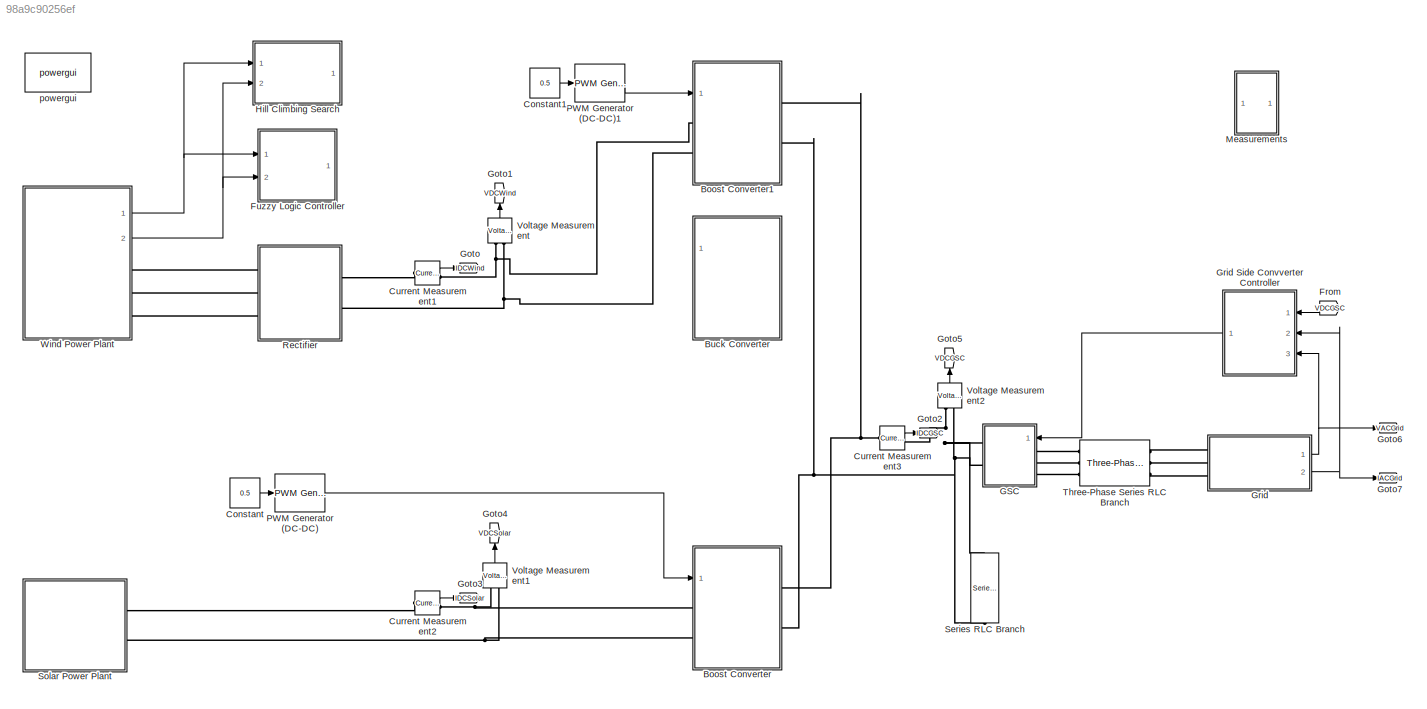
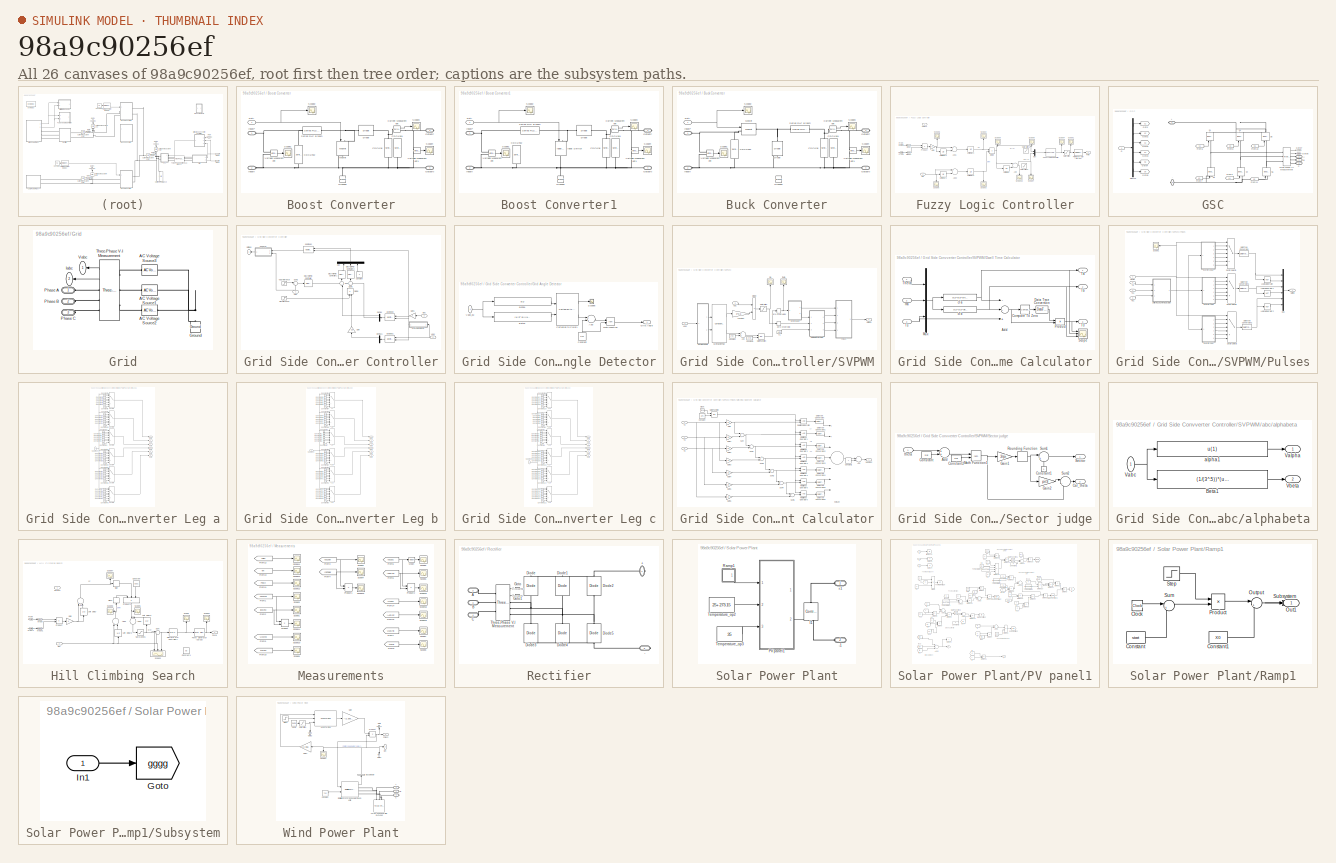
[diagram: thumbnail index - all 26 canvases of the model, root first then tree order]
MODEL slx_98a9c90256ef
KIND model
BLOCK [SubSystem] Boost Converter
  FunctionWithSeparateData = off
  MaskHideContents = off
  MinAlgLoopOccurrences = off
  Opaque = off
  Ports = [1, 0, 0, 0, 0, 2, 2]
  PropExecContextOutsideSubsystem = off
  RTWSystemCode = Auto
  RequestExecContextInheritance = off
BLOCK [Reference] Boost Converter/CDCLink  REF=powerlib/Elements/Series RLC Branch
  BranchType = C
  Capacitance = 1e-5
  Inductance = 1e-3
  InitialCurrent = 0
  InitialVoltage = 2500
  LConnTagsString = __new0
  Measurements = None
  Ports = [0, 0, 0, 0, 0, 1, 1]
  RConnTagsString = __new0
  Resistance = 1
  SetiL0 = off
  Setx0 = off
  SourceBlock = powerlib/Elements/Series RLC Branch
  SourceType = Series RLC Branch
BLOCK [Reference] Boost Converter/CDCLink1  REF=powerlib/Elements/Series RLC Branch
  BranchType = R
  Capacitance = 1e-3
  Inductance = 1e-3
  InitialCurrent = 0
  InitialVoltage = 2500
  LConnTagsString = __new0
  Measurements = None
  Ports = [0, 0, 0, 0, 0, 1, 1]
  RConnTagsString = __new0
  Resistance = 1
  SetiL0 = off
  Setx0 = off
  SourceBlock = powerlib/Elements/Series RLC Branch
  SourceType = Series RLC Branch
BLOCK [Reference] Boost Converter/CDCLink2  REF=powerlib/Elements/Series RLC Branch
  BranchType = C
  Capacitance = 1e-5
  Inductance = 1e-3
  InitialCurrent = 0
  InitialVoltage = 2500
  LConnTagsString = __new0
  Measurements = None
  Ports = [0, 0, 0, 0, 0, 1, 1]
  RConnTagsString = __new0
  Resistance = 1
  SetiL0 = off
  Setx0 = off
  SourceBlock = powerlib/Elements/Series RLC Branch
  SourceType = Series RLC Branch
BLOCK [Reference] Boost Converter/Current Measurement  REF=powerlib/Measurements/Current Measurement
  OutputType = Complex
  PSBequivalent = 0
  PhasorSimulation = off
  Ports = [0, 1, 0, 0, 0, 1, 1]
  SourceBlock = powerlib/Measurements/Current Measurement
  SourceType = Current Measurement
BLOCK [Reference] Boost Converter/Diode  REF=powerlib/Power
Electronics/Diode
  Cs = 250e-9
  IC = 0
  Lon = 0
  Measurements = off
  Ports = [0, 0, 0, 0, 0, 1, 1]
  Ron = 0.001
  Rs = 5e9
  SourceBlock = powerlib/Power\nElectronics/Diode
  SourceType = Diode
  UseSnubber = off
  Vf = 0.8
BLOCK [Inport] Boost Converter/Duty
  IconDisplay = Port number
BLOCK [Reference] Boost Converter/Ground2  REF=powerlib/Elements/Ground
  LConnTagsString = a
  Ports = [0, 0, 0, 0, 0, 1]
  SourceBlock = powerlib/Elements/Ground
  SourceType = Ground
BLOCK [PMIOPort] Boost Converter/InputP
  Port = 1
  Side = Left
BLOCK [PMIOPort] Boost Converter/Inputn
  Port = 2
  Side = Left
BLOCK [Reference] Boost Converter/Mosfet  REF=powerlib/Power
Electronics/Mosfet
  Cs = inf
  IC = 0
  Lon = 0
  Measurements = off
  Ports = [1, 0, 0, 0, 0, 1, 1]
  Rd = 0.01
  Ron = 0.1
  Rs = 1e5
  SourceBlock = powerlib/Power\nElectronics/Mosfet
  SourceType = Mosfet
  Vfd = 0
BLOCK [PMIOPort] Boost Converter/OutputN
  Port = 4
  Side = Right
BLOCK [PMIOPort] Boost Converter/OutputP
  Port = 3
  Side = Right
BLOCK [Scope] Boost Converter/Scope1
  DataFormat = StructureWithTime
  Floating = off
  LimitDataPoints = off
  NumInputPorts = 1
  Ports = [1]
  SampleTime = 0
  SaveName = ScopeData1
  ShowLegends = off
  YMax = 2000
  YMin = -2000
  ZoomMode = xonly
BLOCK [Scope] Boost Converter/Scope2
  DataFormat = StructureWithTime
  Floating = off
  LimitDataPoints = off
  NumInputPorts = 1
  Ports = [1]
  SampleTime = 0
  ShowLegends = off
  YMax = 2
  YMin = -1
BLOCK [Scope] Boost Converter/Scope3
  DataFormat = StructureWithTime
  Floating = off
  LimitDataPoints = off
  NumInputPorts = 1
  Ports = [1]
  SampleTime = 0
  SaveName = ScopeData33
  ShowLegends = off
  YMax = 50000
  YMin = -10000
  ZoomMode = yonly
BLOCK [Scope] Boost Converter/Scope4
  DataFormat = StructureWithTime
  Floating = off
  LimitDataPoints = off
  NumInputPorts = 1
  Ports = [1]
  SampleTime = 0
  SaveName = ScopeData2
  ShowLegends = off
  YMax = 4000
  YMin = -1000
BLOCK [Reference] Boost Converter/Series RLC Branch  REF=powerlib/Elements/Series RLC Branch
  BranchType = L
  Capacitance = 1e-6
  Inductance = 1e-3
  InitialCurrent = 3000
  InitialVoltage = 0
  LConnTagsString = __new0
  Measurements = None
  Ports = [0, 0, 0, 0, 0, 1, 1]
  RConnTagsString = __new0
  Resistance = 1
  SetiL0 = off
  Setx0 = off
  SourceBlock = powerlib/Elements/Series RLC Branch
  SourceType = Series RLC Branch
BLOCK [Reference] Boost Converter/Voltage Measurement  REF=powerlib/Measurements/Voltage Measurement
  OutputType = Complex
  PSBequivalent = 0
  PhasorSimulation = off
  Ports = [0, 1, 0, 0, 0, 2]
  SourceBlock = powerlib/Measurements/Voltage Measurement
  SourceType = Voltage Measurement
BLOCK [Reference] Boost Converter/Voltage Measurement1  REF=powerlib/Measurements/Voltage Measurement
  OutputType = Complex
  PSBequivalent = 0
  PhasorSimulation = off
  Ports = [0, 1, 0, 0, 0, 2]
  SourceBlock = powerlib/Measurements/Voltage Measurement
  SourceType = Voltage Measurement
BLOCK [SubSystem] Boost Converter1
  FunctionWithSeparateData = off
  MaskHideContents = off
  MinAlgLoopOccurrences = off
  Opaque = off
  Ports = [1, 0, 0, 0, 0, 2, 2]
  PropExecContextOutsideSubsystem = off
  RTWSystemCode = Auto
  RequestExecContextInheritance = off
BLOCK [Reference] Boost Converter1/CDCLink  REF=powerlib/Elements/Series RLC Branch
  BranchType = C
  Capacitance = 1e-5
  Inductance = 1e-3
  InitialCurrent = 0
  InitialVoltage = 2500
  LConnTagsString = __new0
  Measurements = None
  Ports = [0, 0, 0, 0, 0, 1, 1]
  RConnTagsString = __new0
  Resistance = 1
  SetiL0 = off
  Setx0 = off
  SourceBlock = powerlib/Elements/Series RLC Branch
  SourceType = Series RLC Branch
BLOCK [Reference] Boost Converter1/CDCLink1  REF=powerlib/Elements/Series RLC Branch
  BranchType = R
  Capacitance = 1e-3
  Inductance = 1e-3
  InitialCurrent = 0
  InitialVoltage = 2500
  LConnTagsString = __new0
  Measurements = None
  Ports = [0, 0, 0, 0, 0, 1, 1]
  RConnTagsString = __new0
  Resistance = 1
  SetiL0 = off
  Setx0 = off
  SourceBlock = powerlib/Elements/Series RLC Branch
  SourceType = Series RLC Branch
BLOCK [Reference] Boost Converter1/CDCLink2  REF=powerlib/Elements/Series RLC Branch
  BranchType = C
  Capacitance = 1e-2
  Inductance = 1e-3
  InitialCurrent = 0
  InitialVoltage = 2500
  LConnTagsString = __new0
  Measurements = None
  Ports = [0, 0, 0, 0, 0, 1, 1]
  RConnTagsString = __new0
  Resistance = 1
  SetiL0 = off
  Setx0 = on
  SourceBlock = powerlib/Elements/Series RLC Branch
  SourceType = Series RLC Branch
BLOCK [Reference] Boost Converter1/Current Measurement  REF=powerlib/Measurements/Current Measurement
  OutputType = Complex
  PSBequivalent = 0
  PhasorSimulation = off
  Ports = [0, 1, 0, 0, 0, 1, 1]
  SourceBlock = powerlib/Measurements/Current Measurement
  SourceType = Current Measurement
BLOCK [Reference] Boost Converter1/Diode  REF=powerlib/Power
Electronics/Diode
  Cs = 250e-9
  IC = 0
  Lon = 0
  Measurements = off
  Ports = [0, 0, 0, 0, 0, 1, 1]
  Ron = 0.001
  Rs = 5e9
  SourceBlock = powerlib/Power\nElectronics/Diode
  SourceType = Diode
  UseSnubber = off
  Vf = 0.8
BLOCK [Inport] Boost Converter1/Duty
  IconDisplay = Port number
BLOCK [Reference] Boost Converter1/Ground2  REF=powerlib/Elements/Ground
  LConnTagsString = a
  Ports = [0, 0, 0, 0, 0, 1]
  SourceBlock = powerlib/Elements/Ground
  SourceType = Ground
BLOCK [Reference] Boost Converter1/Ideal Switch  REF=powerlib/Power
Electronics/Ideal Switch
  Cs = inf
  IC = 0
  Lon = 0
  Measurements = off
  Ports = [1, 0, 0, 0, 0, 1, 1]
  Ron = 0.001
  Rs = 1e5
  SourceBlock = powerlib/Power\nElectronics/Ideal Switch
  SourceType = Ideal Switch
BLOCK [PMIOPort] Boost Converter1/InputP
  Port = 1
  Side = Left
BLOCK [PMIOPort] Boost Converter1/Inputn
  Port = 2
  Side = Left
BLOCK [PMIOPort] Boost Converter1/OutputN
  Port = 4
  Side = Right
BLOCK [PMIOPort] Boost Converter1/OutputP
  Port = 3
  Side = Right
BLOCK [Scope] Boost Converter1/Scope1
  DataFormat = StructureWithTime
  Floating = off
  LimitDataPoints = off
  NumInputPorts = 1
  Ports = [1]
  SampleTime = 0
  SaveName = ScopeData1
  ShowLegends = off
  YMax = 2000
  YMin = -2000
  ZoomMode = xonly
BLOCK [Scope] Boost Converter1/Scope2
  DataFormat = StructureWithTime
  Floating = off
  LimitDataPoints = off
  NumInputPorts = 1
  Ports = [1]
  SampleTime = 0
  ShowLegends = off
  YMax = 2
  YMin = -1
BLOCK [Scope] Boost Converter1/Scope3
  DataFormat = StructureWithTime
  Floating = off
  LimitDataPoints = off
  NumInputPorts = 1
  Ports = [1]
  SampleTime = 0
  SaveName = ScopeData33
  ShowLegends = off
  YMax = 50000
  YMin = -10000
  ZoomMode = yonly
BLOCK [Scope] Boost Converter1/Scope4
  DataFormat = StructureWithTime
  Floating = off
  LimitDataPoints = off
  NumInputPorts = 1
  Ports = [1]
  SampleTime = 0
  SaveName = ScopeData2
  ShowLegends = off
  YMax = 45000
  YMin = -35000
BLOCK [Reference] Boost Converter1/Series RLC Branch  REF=powerlib/Elements/Series RLC Branch
  BranchType = L
  Capacitance = 1e-6
  Inductance = 1e-3
  InitialCurrent = 3000
  InitialVoltage = 0
  LConnTagsString = __new0
  Measurements = None
  Ports = [0, 0, 0, 0, 0, 1, 1]
  RConnTagsString = __new0
  Resistance = 1
  SetiL0 = off
  Setx0 = off
  SourceBlock = powerlib/Elements/Series RLC Branch
  SourceType = Series RLC Branch
BLOCK [Reference] Boost Converter1/Voltage Measurement  REF=powerlib/Measurements/Voltage Measurement
  OutputType = Complex
  PSBequivalent = 0
  PhasorSimulation = off
  Ports = [0, 1, 0, 0, 0, 2]
  SourceBlock = powerlib/Measurements/Voltage Measurement
  SourceType = Voltage Measurement
BLOCK [Reference] Boost Converter1/Voltage Measurement1  REF=powerlib/Measurements/Voltage Measurement
  OutputType = Complex
  PSBequivalent = 0
  PhasorSimulation = off
  Ports = [0, 1, 0, 0, 0, 2]
  SourceBlock = powerlib/Measurements/Voltage Measurement
  SourceType = Voltage Measurement
BLOCK [SubSystem] Buck Converter
  FunctionWithSeparateData = off
  MaskHideContents = off
  MinAlgLoopOccurrences = off
  Opaque = off
  Ports = [1, 0, 0, 0, 0, 2, 2]
  PropExecContextOutsideSubsystem = off
  RTWSystemCode = Auto
  RequestExecContextInheritance = off
BLOCK [Reference] Buck Converter/CDCLink  REF=powerlib/Elements/Series RLC Branch
  BranchType = C
  Capacitance = 1e-2
  Inductance = 1e-3
  InitialCurrent = 0
  InitialVoltage = 2500
  LConnTagsString = __new0
  Measurements = None
  Ports = [0, 0, 0, 0, 0, 1, 1]
  RConnTagsString = __new0
  Resistance = 1
  SetiL0 = off
  Setx0 = off
  SourceBlock = powerlib/Elements/Series RLC Branch
  SourceType = Series RLC Branch
BLOCK [Reference] Buck Converter/CDCLink1  REF=powerlib/Elements/Series RLC Branch
  BranchType = R
  Capacitance = 1e-3
  Inductance = 1e-3
  InitialCurrent = 0
  InitialVoltage = 2500
  LConnTagsString = __new0
  Measurements = None
  Ports = [0, 0, 0, 0, 0, 1, 1]
  RConnTagsString = __new0
  Resistance = 1
  SetiL0 = off
  Setx0 = off
  SourceBlock = powerlib/Elements/Series RLC Branch
  SourceType = Series RLC Branch
BLOCK [Reference] Buck Converter/CDCLink2  REF=powerlib/Elements/Series RLC Branch
  BranchType = C
  Capacitance = 1e-2
  Inductance = 1e-3
  InitialCurrent = 0
  InitialVoltage = 2500
  LConnTagsString = __new0
  Measurements = None
  Ports = [0, 0, 0, 0, 0, 1, 1]
  RConnTagsString = __new0
  Resistance = 1
  SetiL0 = off
  Setx0 = off
  SourceBlock = powerlib/Elements/Series RLC Branch
  SourceType = Series RLC Branch
BLOCK [Reference] Buck Converter/Current Measurement  REF=powerlib/Measurements/Current Measurement
  OutputType = Complex
  PSBequivalent = 0
  PhasorSimulation = off
  Ports = [0, 1, 0, 0, 0, 1, 1]
  SourceBlock = powerlib/Measurements/Current Measurement
  SourceType = Current Measurement
BLOCK [Reference] Buck Converter/Diode  REF=powerlib/Power
Electronics/Diode
  Cs = 250e-9
  IC = 0
  Lon = 0
  Measurements = off
  Ports = [0, 0, 0, 0, 0, 1, 1]
  Ron = 0.001
  Rs = 5e9
  SourceBlock = powerlib/Power\nElectronics/Diode
  SourceType = Diode
  UseSnubber = off
  Vf = 0.8
BLOCK [Inport] Buck Converter/Duty
  IconDisplay = Port number
BLOCK [Reference] Buck Converter/Ground2  REF=powerlib/Elements/Ground
  LConnTagsString = a
  Ports = [0, 0, 0, 0, 0, 1]
  SourceBlock = powerlib/Elements/Ground
  SourceType = Ground
BLOCK [PMIOPort] Buck Converter/InputP
  Port = 1
  Side = Left
BLOCK [PMIOPort] Buck Converter/Inputn
  Port = 2
  Side = Left
BLOCK [Reference] Buck Converter/Mosfet  REF=powerlib/Power
Electronics/Mosfet
  Cs = inf
  IC = 0
  Lon = 0
  Measurements = off
  Ports = [1, 0, 0, 0, 0, 1, 1]
  Rd = 0.01
  Ron = 0.1
  Rs = 1e5
  SourceBlock = powerlib/Power\nElectronics/Mosfet
  SourceType = Mosfet
  Vfd = 0
BLOCK [PMIOPort] Buck Converter/OutputN
  Port = 4
  Side = Right
BLOCK [PMIOPort] Buck Converter/OutputP
  Port = 3
  Side = Right
BLOCK [Scope] Buck Converter/Scope1
  DataFormat = StructureWithTime
  Floating = off
  LimitDataPoints = off
  NumInputPorts = 1
  Ports = [1]
  SampleTime = 0
  SaveName = ScopeData1
  ShowLegends = off
  YMax = 2000
  YMin = -100
  ZoomMode = xonly
BLOCK [Scope] Buck Converter/Scope2
  DataFormat = StructureWithTime
  Floating = off
  LimitDataPoints = off
  NumInputPorts = 1
  Ports = [1]
  SampleTime = 0
  ShowLegends = off
  YMax = 2
  YMin = -1
BLOCK [Scope] Buck Converter/Scope3
  DataFormat = StructureWithTime
  Floating = off
  LimitDataPoints = off
  NumInputPorts = 1
  Ports = [1]
  SampleTime = 0
  SaveName = ScopeData33
  ShowLegends = off
  YMax = 0.95
  YMin = -0.05
  ZoomMode = yonly
BLOCK [Scope] Buck Converter/Scope4
  DataFormat = StructureWithTime
  Floating = off
  LimitDataPoints = off
  NumInputPorts = 1
  Ports = [1]
  SampleTime = 0
  SaveName = ScopeData2
  ShowLegends = off
  YMax = 10000
  YMin = -1000
BLOCK [Reference] Buck Converter/Series RLC Branch  REF=powerlib/Elements/Series RLC Branch
  BranchType = L
  Capacitance = 1e-6
  Inductance = 1e-2
  InitialCurrent = 3000
  InitialVoltage = 0
  LConnTagsString = __new0
  Measurements = None
  Ports = [0, 0, 0, 0, 0, 1, 1]
  RConnTagsString = __new0
  Resistance = 1
  SetiL0 = off
  Setx0 = off
  SourceBlock = powerlib/Elements/Series RLC Branch
  SourceType = Series RLC Branch
BLOCK [Reference] Buck Converter/Voltage Measurement  REF=powerlib/Measurements/Voltage Measurement
  OutputType = Complex
  PSBequivalent = 0
  PhasorSimulation = off
  Ports = [0, 1, 0, 0, 0, 2]
  SourceBlock = powerlib/Measurements/Voltage Measurement
  SourceType = Voltage Measurement
BLOCK [Reference] Buck Converter/Voltage Measurement1  REF=powerlib/Measurements/Voltage Measurement
  OutputType = Complex
  PSBequivalent = 0
  PhasorSimulation = off
  Ports = [0, 1, 0, 0, 0, 2]
  SourceBlock = powerlib/Measurements/Voltage Measurement
  SourceType = Voltage Measurement
BLOCK [Constant] Constant
  Value = 0.5
BLOCK [Constant] Constant1
  Value = 0.5
BLOCK [Reference] Current Measurement1  REF=powerlib/Measurements/Current Measurement
  OutputType = Complex
  PSBequivalent = 0
  PhasorSimulation = off
  Ports = [0, 1, 0, 0, 0, 1, 1]
  SourceBlock = powerlib/Measurements/Current Measurement
  SourceType = Current Measurement
BLOCK [Reference] Current Measurement2  REF=powerlib/Measurements/Current Measurement
  OutputType = Complex
  PSBequivalent = 0
  PhasorSimulation = off
  Ports = [0, 1, 0, 0, 0, 1, 1]
  SourceBlock = powerlib/Measurements/Current Measurement
  SourceType = Current Measurement
BLOCK [Reference] Current Measurement3  REF=powerlib/Measurements/Current Measurement
  OutputType = Complex
  PSBequivalent = 0
  PhasorSimulation = off
  Ports = [0, 1, 0, 0, 0, 1, 1]
  SourceBlock = powerlib/Measurements/Current Measurement
  SourceType = Current Measurement
BLOCK [From] From
  GotoTag = VDCGSC
  TagVisibility = global
BLOCK [SubSystem] Fuzzy Logic Controller
  FunctionWithSeparateData = off
  MaskHideContents = off
  MinAlgLoopOccurrences = off
  Opaque = off
  Ports = [2, 1]
  PropExecContextOutsideSubsystem = off
  RTWSystemCode = Auto
  RequestExecContextInheritance = off
BLOCK [Sum] Fuzzy Logic Controller/Add
  InputSameDT = off
  Inputs = +-
  OutDataTypeStr = Inherit: Inherit via internal rule
  Ports = [2, 1]
  SaturateOnIntegerOverflow = off
BLOCK [Sum] Fuzzy Logic Controller/Add1
  InputSameDT = off
  Inputs = +-
  OutDataTypeStr = Inherit: Inherit via internal rule
  Ports = [2, 1]
  SaturateOnIntegerOverflow = off
BLOCK [Sum] Fuzzy Logic Controller/Add2
  InputSameDT = off
  Inputs = +-
  OutDataTypeStr = Inherit: Inherit via internal rule
  Ports = [2, 1]
  SaturateOnIntegerOverflow = off
BLOCK [Product] Fuzzy Logic Controller/Divide
  InputSameDT = off
  Inputs = */
  OutDataTypeStr = Inherit: Inherit via internal rule
  Ports = [2, 1]
  RndMeth = Floor
  SaturateOnIntegerOverflow = off
BLOCK [From] Fuzzy Logic Controller/From
  GotoTag = IDCWind
  TagVisibility = global
BLOCK [From] Fuzzy Logic Controller/From1
  GotoTag = VDCWind
  TagVisibility = global
BLOCK [Reference] Fuzzy Logic Controller/Fuzzy Logic Controller  REF=fuzblock/Fuzzy Logic   (lib defined in mdl_858b3b3e7478)
Controller
  Ports = [1, 1]
  SourceBlock = fuzblock/Fuzzy Logic \nController
  SourceType = FIS
  fis = flc
BLOCK [Gain] Fuzzy Logic Controller/Gain
  OutDataTypeStr = Inherit: Inherit via internal rule
  ParamDataTypeStr = Inherit: Inherit via internal rule
  SaturateOnIntegerOverflow = off
BLOCK [Reference] Fuzzy Logic Controller/Mean  REF=powerlib_meascontrol/Measurements/Mean
  Freq = 10
  Ports = [1, 1]
  SourceBlock = powerlib_meascontrol/Measurements/Mean
  SourceType = Mean
  Ts = 0
  Vinit = 0
BLOCK [Reference] Fuzzy Logic Controller/Mean1  REF=powerlib_meascontrol/Measurements/Mean
  Freq = 10
  Ports = [1, 1]
  SourceBlock = powerlib_meascontrol/Measurements/Mean
  SourceType = Mean
  Ts = 0
  Vinit = 0
BLOCK [Mux] Fuzzy Logic Controller/Mux
  DisplayOption = bar
  Inputs = 2
  Ports = [2, 1]
BLOCK [Outport] Fuzzy Logic Controller/PWM
  IconDisplay = Port number
BLOCK [Reference] Fuzzy Logic Controller/PWM Generator (DC-DC)  REF=powerlib_meascontrol/Pulse & Signal
Generators/PWM Generator
(DC-DC)
  Fsw = 5000
  Ports = [1, 1]
  SourceBlock = powerlib_meascontrol/Pulse & Signal\nGenerators/PWM Generator\n(DC-DC)
  SourceType = PWM Generator (DC-DC)
  Ts = 0
BLOCK [Inport] Fuzzy Logic Controller/Pmech
  IconDisplay = Port number
BLOCK [Product] Fuzzy Logic Controller/Product
  InputSameDT = off
  OutDataTypeStr = Inherit: Inherit via internal rule
  Ports = [2, 1]
  RndMeth = Floor
  SaturateOnIntegerOverflow = off
BLOCK [Saturate] Fuzzy Logic Controller/Saturation
  InputPortMap = u0
  LowerLimit = 0.001
  Ports = [1, 1]
  SampleTime = 1e-4
  UpperLimit = 0.999
BLOCK [Saturate] Fuzzy Logic Controller/Saturation1
  InputPortMap = u0
  LowerLimit = -20
  Ports = [1, 1]
  UpperLimit = 20
BLOCK [Saturate] Fuzzy Logic Controller/Saturation2
  InputPortMap = u0
  LowerLimit = -4
  Ports = [1, 1]
  UpperLimit = 4
BLOCK [Scope] Fuzzy Logic Controller/Scope1
  DataFormat = StructureWithTime
  Floating = off
  LimitDataPoints = off
  NumInputPorts = 1
  Ports = [1]
  SampleTime = 0
  SaveName = ScopeData5
  ShowLegends = off
  YMax = 1.1
  YMin = -1.1
BLOCK [Scope] Fuzzy Logic Controller/Scope10
  DataFormat = StructureWithTime
  Floating = off
  LimitDataPoints = off
  NumInputPorts = 1
  Ports = [1]
  SampleTime = 0
  SaveName = ScopeData29
  ShowLegends = off
  YMax = 30
  YMin = -30
BLOCK [Scope] Fuzzy Logic Controller/Scope2
  DataFormat = StructureWithTime
  Floating = off
  LimitDataPoints = off
  NumInputPorts = 1
  Ports = [1]
  SampleTime = 0
  SaveName = PDC1
  SaveToWorkspace = on
  ShowLegends = off
  YMax = 10000000
  YMin = -10000000
BLOCK [Scope] Fuzzy Logic Controller/Scope3
  DataFormat = StructureWithTime
  Floating = off
  LimitDataPoints = off
  NumInputPorts = 1
  Ports = [1]
  SampleTime = 0
  SaveName = PDC2
  SaveToWorkspace = on
  ShowLegends = off
  YMax = 1
  YMin = -1
BLOCK [Scope] Fuzzy Logic Controller/Scope4
  DataFormat = StructureWithTime
  Floating = off
  LimitDataPoints = off
  NumInputPorts = 1
  Ports = [1]
  SampleTime = 0
  SaveName = ScopeData4
  ShowLegends = off
  YMax = 2
  YMin = -2
  ZoomMode = xonly
BLOCK [Scope] Fuzzy Logic Controller/Scope5
  DataFormat = StructureWithTime
  Floating = off
  LimitDataPoints = off
  NumInputPorts = 1
  Ports = [1]
  SampleTime = 0
  SaveName = ScopeData10
  ShowLegends = off
  YMax = 12
  YMin = -20
BLOCK [Scope] Fuzzy Logic Controller/Scope6
  DataFormat = StructureWithTime
  Floating = off
  LimitDataPoints = off
  NumInputPorts = 1
  Ports = [1]
  SampleTime = 0
  SaveName = ScopeData11
  ShowLegends = off
  YMax = 100000000
  YMin = -100000000
BLOCK [Scope] Fuzzy Logic Controller/Scope7
  DataFormat = StructureWithTime
  Floating = off
  LimitDataPoints = off
  NumInputPorts = 1
  Ports = [1]
  SampleTime = 0
  SaveName = ScopeData13
  ShowLegends = off
  YMax = 617167000
  YMin = -100000000
BLOCK [Scope] Fuzzy Logic Controller/Scope8
  DataFormat = StructureWithTime
  Floating = off
  LimitDataPoints = off
  NumInputPorts = 1
  Ports = [1]
  SampleTime = 0
  SaveName = PDC
  SaveToWorkspace = on
  ShowLegends = off
  YMax = 587500
  YMin = 555000
BLOCK [Scope] Fuzzy Logic Controller/Scope9
  DataFormat = StructureWithTime
  Floating = off
  LimitDataPoints = off
  NumInputPorts = 1
  Ports = [1]
  SampleTime = 0
  SaveName = ScopeData14
  ShowLegends = off
  YMax = 327721
  YMin = 327721
BLOCK [UnitDelay] Fuzzy Logic Controller/Unit Delay
  InputProcessing = Elements as channels (sample based)
  SampleTime = 1e-2
BLOCK [UnitDelay] Fuzzy Logic Controller/Unit Delay1
  InputProcessing = Elements as channels (sample based)
  SampleTime = 1e-2
BLOCK [UnitDelay] Fuzzy Logic Controller/Unit Delay2
  InputProcessing = Elements as channels (sample based)
  SampleTime = 1e-2
BLOCK [UnitDelay] Fuzzy Logic Controller/Unit Delay3
  InputProcessing = Elements as channels (sample based)
  SampleTime = 1e-2
BLOCK [UnitDelay] Fuzzy Logic Controller/Unit Delay4
  InputProcessing = Elements as channels (sample based)
  SampleTime = 1e-2
BLOCK [Inport] Fuzzy Logic Controller/wm
  IconDisplay = Port number
  Port = 2
BLOCK [SubSystem] GSC
  FunctionWithSeparateData = off
  MaskHideContents = off
  MinAlgLoopOccurrences = off
  Opaque = off
  Ports = [1, 0, 0, 0, 0, 3, 2]
  PropExecContextOutsideSubsystem = off
  RTWSystemCode = Auto
  RequestExecContextInheritance = off
BLOCK [Reference] GSC/ S1  REF=powerlib/Power
Electronics/Ideal Switch
  Cs = inf
  IC = 1
  Lon = 0
  Measurements = off
  Ports = [1, 0, 0, 0, 0, 1, 1]
  Ron = Ron
  Rs = 1e9
  SourceBlock = powerlib/Power\nElectronics/Ideal Switch
  SourceType = Ideal Switch
BLOCK [Reference] GSC/ S2  REF=powerlib/Power
Electronics/Ideal Switch
  Cs = inf
  IC = 0
  Lon = 0
  Measurements = off
  Ports = [1, 0, 0, 0, 0, 1, 1]
  Ron = Ron
  Rs = 1e9
  SourceBlock = powerlib/Power\nElectronics/Ideal Switch
  SourceType = Ideal Switch
BLOCK [Reference] GSC/ S3  REF=powerlib/Power
Electronics/Ideal Switch
  Cs = inf
  IC = 1
  Lon = 0
  Measurements = off
  Ports = [1, 0, 0, 0, 0, 1, 1]
  Ron = Ron
  Rs = 1e9
  SourceBlock = powerlib/Power\nElectronics/Ideal Switch
  SourceType = Ideal Switch
BLOCK [Reference] GSC/ S4  REF=powerlib/Power
Electronics/Ideal Switch
  Cs = inf
  IC = 0
  Lon = 0
  Measurements = off
  Ports = [1, 0, 0, 0, 0, 1, 1]
  Ron = Ron
  Rs = 1e9
  SourceBlock = powerlib/Power\nElectronics/Ideal Switch
  SourceType = Ideal Switch
BLOCK [Reference] GSC/ S5  REF=powerlib/Power
Electronics/Ideal Switch
  Cs = inf
  IC = 1
  Lon = 0
  Measurements = off
  Ports = [1, 0, 0, 0, 0, 1, 1]
  Ron = Ron
  Rs = 1e9
  SourceBlock = powerlib/Power\nElectronics/Ideal Switch
  SourceType = Ideal Switch
BLOCK [Reference] GSC/ S6  REF=powerlib/Power
Electronics/Ideal Switch
  Cs = inf
  IC = 0
  Lon = 0
  Measurements = off
  Ports = [1, 0, 0, 0, 0, 1, 1]
  Ron = Ron
  Rs = 1e9
  SourceBlock = powerlib/Power\nElectronics/Ideal Switch
  SourceType = Ideal Switch
BLOCK [PMIOPort] GSC/+
  Port = 1
  Side = Right
BLOCK [PMIOPort] GSC/-
  Port = 5
  Side = Right
BLOCK [PMIOPort] GSC/A
  Port = 2
  Side = Left
BLOCK [PMIOPort] GSC/B
  Port = 3
  Side = Left
BLOCK [PMIOPort] GSC/C
  Port = 4
  Side = Left
BLOCK [Demux] GSC/Demux
  DisplayOption = bar
  Outputs = 6
  Ports = [1, 6]
BLOCK [From] GSC/From10
  CloseFcn = tagdialog Close
  GotoTag = s5
BLOCK [From] GSC/From11
  CloseFcn = tagdialog Close
  GotoTag = s6
BLOCK [From] GSC/From6
  CloseFcn = tagdialog Close
  GotoTag = s1
BLOCK [From] GSC/From7
  CloseFcn = tagdialog Close
  GotoTag = s2
BLOCK [From] GSC/From8
  CloseFcn = tagdialog Close
  GotoTag = s3
BLOCK [From] GSC/From9
  CloseFcn = tagdialog Close
  GotoTag = s4
BLOCK [Inport] GSC/G
  IconDisplay = Port number
BLOCK [Goto] GSC/Goto
  GotoTag = s1
BLOCK [Goto] GSC/Goto1
  GotoTag = s2
BLOCK [Goto] GSC/Goto2
  GotoTag = s3
BLOCK [Goto] GSC/Goto3
  GotoTag = s4
BLOCK [Goto] GSC/Goto4
  GotoTag = s5
BLOCK [Goto] GSC/Goto5
  GotoTag = s6
BLOCK [Goto] GSC/Goto6
  GotoTag = IACGSC
  TagVisibility = global
BLOCK [Goto] GSC/Goto7
  GotoTag = VACGSC
  TagVisibility = global
BLOCK [Reference] GSC/Three-Phase V-I Measurement  REF=powerlib/Measurements/Three-Phase
V-I Measurement
  CurrentMeasurement = yes
  Ipu = off
  LabelI = Iabc
  LabelV = Vabc
  OutputType = Complex
  PSBequivalent = 0
  Pbase = 100e6
  PhasorSimulation = off
  Ports = [0, 2, 0, 0, 0, 3, 3]
  SetLabelI = off
  SetLabelV = off
  SourceBlock = powerlib/Measurements/Three-Phase\nV-I Measurement
  SourceType = Three-Phase VI Measurement
  Vbase = 500e3
  VoltageMeasurement = phase-to-phase
  Vpu = off
  VpuLL = off
BLOCK [Goto] Goto
  GotoTag = IDCWind
  TagVisibility = global
BLOCK [Goto] Goto1
  GotoTag = VDCWind
  TagVisibility = global
BLOCK [Goto] Goto2
  GotoTag = IDCGSC
  TagVisibility = global
BLOCK [Goto] Goto3
  GotoTag = IDCSolar
  TagVisibility = global
BLOCK [Goto] Goto4
  GotoTag = VDCSolar
  TagVisibility = global
BLOCK [Goto] Goto5
  GotoTag = VDCGSC
  TagVisibility = global
BLOCK [Goto] Goto6
  GotoTag = VACGrid
  TagVisibility = global
BLOCK [Goto] Goto7
  GotoTag = IACGrid
  TagVisibility = global
BLOCK [SubSystem] Grid
  FunctionWithSeparateData = off
  MaskHideContents = off
  MinAlgLoopOccurrences = off
  Opaque = off
  Ports = [0, 2, 0, 0, 0, 3]
  PropExecContextOutsideSubsystem = off
  RTWSystemCode = Auto
  RequestExecContextInheritance = off
BLOCK [SubSystem] Grid Side Convverter Controller
  FunctionWithSeparateData = off
  MaskHideContents = off
  MinAlgLoopOccurrences = off
  Opaque = off
  Ports = [3, 1]
  PropExecContextOutsideSubsystem = off
  RTWSystemCode = Auto
  RequestExecContextInheritance = off
BLOCK [Constant] Grid Side Convverter Controller/Constant
  Value = 0
BLOCK [Demux] Grid Side Convverter Controller/Demux
  DisplayOption = bar
  Outputs = 3
  Ports = [1, 3]
BLOCK [Demux] Grid Side Convverter Controller/Demux1
  DisplayOption = bar
  Outputs = 3
  Ports = [1, 3]
BLOCK [Reference] Grid Side Convverter Controller/Discrete PID Controller  REF=simulink/Continuous/PID Controller
  AntiWindupMode = none
  Controller = PID
  D = 0
  DOutDataTypeStr = Inherit: Inherit via internal rule
  DOutMax = []
  DOutMin = []
  DParamDataTypeStr = Inherit: Inherit via internal rule
  DParamMax = []
  DParamMin = []
  ExternalReset = none
  FilterContinuousStateAttributes = ''
  FilterMethod = Forward Euler
  FilterOutDataTypeStr = Inherit: Inherit via internal rule
  FilterOutMax = []
  FilterOutMin = []
  FilterRTWStateStorageClass = Auto
  FilterStateMustResolveToSignalObject = off
  Form = Parallel
  I = 100
  IOutDataTypeStr = Inherit: Inherit via internal rule
  IOutMax = []
  IOutMin = []
  IParamDataTypeStr = Inherit: Inherit via internal rule
  IParamMax = []
  IParamMin = []
  IgnoreLimit = off
  InitialConditionForFilter = 0
  InitialConditionForIntegrator = 0
  InitialConditionSource = internal
  IntegratorContinuousStateAttributes = ''
  IntegratorMethod = Forward Euler
  IntegratorOutDataTypeStr = Inherit: Inherit via internal rule
  IntegratorOutMax = []
  IntegratorOutMin = []
  IntegratorRTWStateStorageClass = Auto
  IntegratorStateMustResolveToSignalObject = off
  Kb = 1
  KbOutDataTypeStr = Inherit: Inherit via internal rule
  KbOutMax = []
  KbOutMin = []
  KbParamDataTypeStr = Inherit: Inherit via internal rule
  KbParamMax = []
  KbParamMin = []
  Kt = 1
  KtOutDataTypeStr = Inherit: Inherit via internal rule
  KtOutMax = []
  KtOutMin = []
  KtParamDataTypeStr = Inherit: Inherit via internal rule
  KtParamMax = []
  KtParamMin = []
  LimitOutput = on
  LinearizeAsGain = off
  LockScale = off
  LowerSaturationLimit = -5000
  N = 100
  NOutDataTypeStr = Inherit: Inherit via internal rule
  NOutMax = []
  NOutMin = []
  NParamDataTypeStr = Inherit: Inherit via internal rule
  NParamMax = []
  NParamMin = []
  P = 100
  POutDataTypeStr = Inherit: Inherit via internal rule
  POutMax = []
  POutMin = []
  PParamDataTypeStr = Inherit: Inherit via internal rule
  PParamMax = []
  PParamMin = []
  Ports = [1, 1]
  RndMeth = Floor
  SampleTime = 1e-3
  SaturateOnIntegerOverflow = off
  SaturationOutDataTypeStr = Inherit: Same as input
  SaturationOutMax = []
  SaturationOutMin = []
  SourceBlock = simulink/Continuous/PID Controller
  SourceType = PID 1dof
  SumAccumDataTypeStr = Inherit: Inherit via internal rule
  SumDAccumDataTypeStr = Inherit: Inherit via internal rule
  SumDOutDataTypeStr = Inherit: Inherit via internal rule
  SumDOutMax = []
  SumDOutMin = []
  SumI1AccumDataTypeStr = Inherit: Inherit via internal rule
  SumI1OutDataTypeStr = Inherit: Inherit via internal rule
  SumI1OutMax = []
  SumI1OutMin = []
  SumI2AccumDataTypeStr = Inherit: Inherit via internal rule
  SumI2OutDataTypeStr = Inherit: Inherit via internal rule
  SumI2OutMax = []
  SumI2OutMin = []
  SumI3AccumDataTypeStr = Inherit: Inherit via internal rule
  SumI3OutDataTypeStr = Inherit: Inherit via internal rule
  SumI3OutMax = []
  SumI3OutMin = []
  SumOutDataTypeStr = Inherit: Inherit via internal rule
  SumOutMax = []
  SumOutMin = []
  TimeDomain = Discrete-time
  TrackingMode = off
  UpperSaturationLimit = 5000
  ZeroCross = on
BLOCK [Reference] Grid Side Convverter Controller/Discrete PID Controller1  REF=simulink/Continuous/PID Controller
  AntiWindupMode = none
  Controller = PID
  D = 0
  DOutDataTypeStr = Inherit: Inherit via internal rule
  DOutMax = []
  DOutMin = []
  DParamDataTypeStr = Inherit: Inherit via internal rule
  DParamMax = []
  DParamMin = []
  ExternalReset = none
  FilterContinuousStateAttributes = ''
  FilterMethod = Forward Euler
  FilterOutDataTypeStr = Inherit: Inherit via internal rule
  FilterOutMax = []
  FilterOutMin = []
  FilterRTWStateStorageClass = Auto
  FilterStateMustResolveToSignalObject = off
  Form = Parallel
  I = 100
  IOutDataTypeStr = Inherit: Inherit via internal rule
  IOutMax = []
  IOutMin = []
  IParamDataTypeStr = Inherit: Inherit via internal rule
  IParamMax = []
  IParamMin = []
  IgnoreLimit = off
  InitialConditionForFilter = 0
  InitialConditionForIntegrator = 0
  InitialConditionSource = internal
  IntegratorContinuousStateAttributes = ''
  IntegratorMethod = Forward Euler
  IntegratorOutDataTypeStr = Inherit: Inherit via internal rule
  IntegratorOutMax = []
  IntegratorOutMin = []
  IntegratorRTWStateStorageClass = Auto
  IntegratorStateMustResolveToSignalObject = off
  Kb = 1
  KbOutDataTypeStr = Inherit: Inherit via internal rule
  KbOutMax = []
  KbOutMin = []
  KbParamDataTypeStr = Inherit: Inherit via internal rule
  KbParamMax = []
  KbParamMin = []
  Kt = 1
  KtOutDataTypeStr = Inherit: Inherit via internal rule
  KtOutMax = []
  KtOutMin = []
  KtParamDataTypeStr = Inherit: Inherit via internal rule
  KtParamMax = []
  KtParamMin = []
  LimitOutput = on
  LinearizeAsGain = off
  LockScale = off
  LowerSaturationLimit = -1000
  N = 100
  NOutDataTypeStr = Inherit: Inherit via internal rule
  NOutMax = []
  NOutMin = []
  NParamDataTypeStr = Inherit: Inherit via internal rule
  NParamMax = []
  NParamMin = []
  P = 100
  POutDataTypeStr = Inherit: Inherit via internal rule
  POutMax = []
  POutMin = []
  PParamDataTypeStr = Inherit: Inherit via internal rule
  PParamMax = []
  PParamMin = []
  Ports = [1, 1]
  RndMeth = Floor
  SampleTime = 1e-3
  SaturateOnIntegerOverflow = off
  SaturationOutDataTypeStr = Inherit: Same as input
  SaturationOutMax = []
  SaturationOutMin = []
  SourceBlock = simulink/Continuous/PID Controller
  SourceType = PID 1dof
  SumAccumDataTypeStr = Inherit: Inherit via internal rule
  SumDAccumDataTypeStr = Inherit: Inherit via internal rule
  SumDOutDataTypeStr = Inherit: Inherit via internal rule
  SumDOutMax = []
  SumDOutMin = []
  SumI1AccumDataTypeStr = Inherit: Inherit via internal rule
  SumI1OutDataTypeStr = Inherit: Inherit via internal rule
  SumI1OutMax = []
  SumI1OutMin = []
  SumI2AccumDataTypeStr = Inherit: Inherit via internal rule
  SumI2OutDataTypeStr = Inherit: Inherit via internal rule
  SumI2OutMax = []
  SumI2OutMin = []
  SumI3AccumDataTypeStr = Inherit: Inherit via internal rule
  SumI3OutDataTypeStr = Inherit: Inherit via internal rule
  SumI3OutMax = []
  SumI3OutMin = []
  SumOutDataTypeStr = Inherit: Inherit via internal rule
  SumOutMax = []
  SumOutMin = []
  TimeDomain = Discrete-time
  TrackingMode = off
  UpperSaturationLimit = 1000
  ZeroCross = on
BLOCK [Reference] Grid Side Convverter Controller/Discrete PID Controller2  REF=simulink/Continuous/PID Controller
  AntiWindupMode = none
  Controller = PID
  D = 0
  DOutDataTypeStr = Inherit: Inherit via internal rule
  DOutMax = []
  DOutMin = []
  DParamDataTypeStr = Inherit: Inherit via internal rule
  DParamMax = []
  DParamMin = []
  ExternalReset = none
  FilterContinuousStateAttributes = ''
  FilterMethod = Forward Euler
  FilterOutDataTypeStr = Inherit: Inherit via internal rule
  FilterOutMax = []
  FilterOutMin = []
  FilterRTWStateStorageClass = Auto
  FilterStateMustResolveToSignalObject = off
  Form = Parallel
  I = 100
  IOutDataTypeStr = Inherit: Inherit via internal rule
  IOutMax = []
  IOutMin = []
  IParamDataTypeStr = Inherit: Inherit via internal rule
  IParamMax = []
  IParamMin = []
  IgnoreLimit = off
  InitialConditionForFilter = 0
  InitialConditionForIntegrator = 0
  InitialConditionSource = internal
  IntegratorContinuousStateAttributes = ''
  IntegratorMethod = Forward Euler
  IntegratorOutDataTypeStr = Inherit: Inherit via internal rule
  IntegratorOutMax = []
  IntegratorOutMin = []
  IntegratorRTWStateStorageClass = Auto
  IntegratorStateMustResolveToSignalObject = off
  Kb = 1
  KbOutDataTypeStr = Inherit: Inherit via internal rule
  KbOutMax = []
  KbOutMin = []
  KbParamDataTypeStr = Inherit: Inherit via internal rule
  KbParamMax = []
  KbParamMin = []
  Kt = 1
  KtOutDataTypeStr = Inherit: Inherit via internal rule
  KtOutMax = []
  KtOutMin = []
  KtParamDataTypeStr = Inherit: Inherit via internal rule
  KtParamMax = []
  KtParamMin = []
  LimitOutput = on
  LinearizeAsGain = off
  LockScale = off
  LowerSaturationLimit = -1000
  N = 100
  NOutDataTypeStr = Inherit: Inherit via internal rule
  NOutMax = []
  NOutMin = []
  NParamDataTypeStr = Inherit: Inherit via internal rule
  NParamMax = []
  NParamMin = []
  P = 100
  POutDataTypeStr = Inherit: Inherit via internal rule
  POutMax = []
  POutMin = []
  PParamDataTypeStr = Inherit: Inherit via internal rule
  PParamMax = []
  PParamMin = []
  Ports = [1, 1]
  RndMeth = Floor
  SampleTime = 1e-3
  SaturateOnIntegerOverflow = off
  SaturationOutDataTypeStr = Inherit: Same as input
  SaturationOutMax = []
  SaturationOutMin = []
  SourceBlock = simulink/Continuous/PID Controller
  SourceType = PID 1dof
  SumAccumDataTypeStr = Inherit: Inherit via internal rule
  SumDAccumDataTypeStr = Inherit: Inherit via internal rule
  SumDOutDataTypeStr = Inherit: Inherit via internal rule
  SumDOutMax = []
  SumDOutMin = []
  SumI1AccumDataTypeStr = Inherit: Inherit via internal rule
  SumI1OutDataTypeStr = Inherit: Inherit via internal rule
  SumI1OutMax = []
  SumI1OutMin = []
  SumI2AccumDataTypeStr = Inherit: Inherit via internal rule
  SumI2OutDataTypeStr = Inherit: Inherit via internal rule
  SumI2OutMax = []
  SumI2OutMin = []
  SumI3AccumDataTypeStr = Inherit: Inherit via internal rule
  SumI3OutDataTypeStr = Inherit: Inherit via internal rule
  SumI3OutMax = []
  SumI3OutMin = []
  SumOutDataTypeStr = Inherit: Inherit via internal rule
  SumOutMax = []
  SumOutMin = []
  TimeDomain = Discrete-time
  TrackingMode = off
  UpperSaturationLimit = 1000
  ZeroCross = on
BLOCK [Product] Grid Side Convverter Controller/Divide
  InputSameDT = off
  Inputs = */
  OutDataTypeStr = Inherit: Inherit via internal rule
  Ports = [2, 1]
  RndMeth = Floor
  SaturateOnIntegerOverflow = off
BLOCK [Gain] Grid Side Convverter Controller/Gain
  Gain = -1.5
  OutDataTypeStr = Inherit: Inherit via internal rule
  ParamDataTypeStr = Inherit: Inherit via internal rule
  SaturateOnIntegerOverflow = off
BLOCK [Gain] Grid Side Convverter Controller/Gain1
  Gain = -1
  OutDataTypeStr = Inherit: Inherit via internal rule
  ParamDataTypeStr = Inherit: Inherit via internal rule
  SaturateOnIntegerOverflow = off
BLOCK [Outport] Grid Side Convverter Controller/Gatings
  IconDisplay = Port number
BLOCK [SubSystem] Grid Side Convverter Controller/Grid Angle Detector
  FunctionWithSeparateData = off
  MaskHideContents = off
  MinAlgLoopOccurrences = off
  Opaque = off
  Ports = [1, 1]
  PropExecContextOutsideSubsystem = off
  RTWSystemCode = Auto
  RequestExecContextInheritance = off
BLOCK [Sum] Grid Side Convverter Controller/Grid Angle Detector/Add
  InputSameDT = off
  OutDataTypeStr = Inherit: Inherit via internal rule
  Ports = [2, 1]
  SaturateOnIntegerOverflow = off
BLOCK [Fcn] Grid Side Convverter Controller/Grid Angle Detector/Beta1
  Expr = (1/(3^.5))*(u(1)+2*u(2))
BLOCK [Reference] Grid Side Convverter Controller/Grid Angle Detector/Cartesian to Polar1  REF=simulink_extras/Transformations/Cartesian to
Polar
  Ports = [2, 2]
  SourceBlock = simulink_extras/Transformations/Cartesian to\nPolar
  SourceType = Cart2Polar
BLOCK [Constant] Grid Side Convverter Controller/Grid Angle Detector/Constant
  Value = 2*pi
BLOCK [Outport] Grid Side Convverter Controller/Grid Angle Detector/Grid Angle
  IconDisplay = Port number
BLOCK [Math] Grid Side Convverter Controller/Grid Angle Detector/Math Function
  Operator = rem
  Ports = [2, 1]
BLOCK [Scope] Grid Side Convverter Controller/Grid Angle Detector/Scope5
  DataFormat = StructureWithTime
  Floating = off
  LimitDataPoints = off
  NumInputPorts = 1
  Ports = [1]
  SampleTime = 0
  SaveName = ScopeData11
  ShowLegends = off
  YMax = 690
  YMin = 690
  ZoomMode = yonly
BLOCK [Inport] Grid Side Convverter Controller/Grid Angle Detector/Vabc_pu
  IconDisplay = Port number
BLOCK [Fcn] Grid Side Convverter Controller/Grid Angle Detector/alpha1
  Expr = u(1)
BLOCK [Inport] Grid Side Convverter Controller/Iabc
  IconDisplay = Port number
  Port = 2
BLOCK [Mux] Grid Side Convverter Controller/Mux
  DisplayOption = bar
  Inputs = 3
  Ports = [3, 1]
BLOCK [Step] Grid Side Convverter Controller/Qg reference
  After = 0
  SampleTime = 0
BLOCK [SubSystem] Grid Side Convverter Controller/SVPWM
  FunctionWithSeparateData = off
  MaskHideContents = off
  MinAlgLoopOccurrences = off
  Opaque = off
  Ports = [2, 1]
  PropExecContextOutsideSubsystem = off
  RTWSystemCode = Auto
  RequestExecContextInheritance = off
BLOCK [Sum] Grid Side Convverter Controller/SVPWM/Add
  InputSameDT = off
  OutDataTypeStr = Inherit: Inherit via internal rule
  Ports = [2, 1]
  SaturateOnIntegerOverflow = off
BLOCK [Reference] Grid Side Convverter Controller/SVPWM/Cartesian to Polar  REF=simulink_extras/Transformations/Cartesian to
Polar
  Ports = [2, 2]
  SourceBlock = simulink_extras/Transformations/Cartesian to\nPolar
  SourceType = Cart2Polar
BLOCK [Constant] Grid Side Convverter Controller/SVPWM/Constant
  Value = 2*pi
BLOCK [Constant] Grid Side Convverter Controller/SVPWM/Constant1
  Value = 2*pi
BLOCK [Product] Grid Side Convverter Controller/SVPWM/Divide
  InputSameDT = off
  Inputs = /*
  OutDataTypeStr = Inherit: Inherit via internal rule
  Ports = [2, 1]
  RndMeth = Floor
  SaturateOnIntegerOverflow = off
BLOCK [SubSystem] Grid Side Convverter Controller/SVPWM/Dwell Time Calculator
  FunctionWithSeparateData = off
  MaskHideContents = off
  MinAlgLoopOccurrences = off
  Opaque = off
  Ports = [3, 3]
  PropExecContextOutsideSubsystem = off
  RTWSystemCode = Auto
  RequestExecContextInheritance = off
BLOCK [Sum] Grid Side Convverter Controller/SVPWM/Dwell Time Calculator/Add
  InputSameDT = off
  Inputs = --+
  OutDataTypeStr = Inherit: Inherit via internal rule
  Ports = [3, 1]
  SaturateOnIntegerOverflow = off
BLOCK [Reference] Grid Side Convverter Controller/SVPWM/Dwell Time Calculator/Compare To Zero  REF=simulink/Logic and Bit
Operations/Compare
To Zero
  OutDataTypeStr = boolean
  Ports = [1, 1]
  SourceBlock = simulink/Logic and Bit\nOperations/Compare\nTo Zero
  SourceType = Compare To Zero
  ZeroCross = on
  relop = >=
BLOCK [DataTypeConversion] Grid Side Convverter Controller/SVPWM/Dwell Time Calculator/Data Type Conversion
  OutDataTypeStr = double
  RndMeth = Floor
  SaturateOnIntegerOverflow = off
BLOCK [Mux] Grid Side Convverter Controller/SVPWM/Dwell Time Calculator/Mux
  DisplayOption = bar
  Inputs = 3
  Ports = [3, 1]
BLOCK [Product] Grid Side Convverter Controller/SVPWM/Dwell Time Calculator/Product
  InputSameDT = off
  OutDataTypeStr = Inherit: Inherit via internal rule
  Ports = [2, 1]
  SaturateOnIntegerOverflow = off
BLOCK [Scope] Grid Side Convverter Controller/SVPWM/Dwell Time Calculator/Scope
  DataFormat = StructureWithTime
  Floating = off
  LimitDataPoints = off
  NumInputPorts = 3
  Ports = [3]
  SampleTime = 0
  SaveName = ScopeData12
  ShowLegends = off
  YMax = 5~5~5
  YMin = -5~-5~-5
BLOCK [Outport] Grid Side Convverter Controller/SVPWM/Dwell Time Calculator/T0
  IconDisplay = Port number
  Port = 3
BLOCK [Outport] Grid Side Convverter Controller/SVPWM/Dwell Time Calculator/Ta
  IconDisplay = Port number
BLOCK [Outport] Grid Side Convverter Controller/SVPWM/Dwell Time Calculator/Tb
  IconDisplay = Port number
  Port = 2
BLOCK [Inport] Grid Side Convverter Controller/SVPWM/Dwell Time Calculator/Theta
  IconDisplay = Port number
BLOCK [Inport] Grid Side Convverter Controller/SVPWM/Dwell Time Calculator/Ts
  IconDisplay = Port number
  Port = 3
BLOCK [Fcn] Grid Side Convverter Controller/SVPWM/Dwell Time Calculator/cTa
  Expr = u(2)*u(3)*sin((pi/3)-u(1))
BLOCK [Fcn] Grid Side Convverter Controller/SVPWM/Dwell Time Calculator/cTb
  Expr = u(2)*u(3)*sin(u(1))
BLOCK [Inport] Grid Side Convverter Controller/SVPWM/Dwell Time Calculator/ma
  IconDisplay = Port number
  Port = 2
BLOCK [Outport] Grid Side Convverter Controller/SVPWM/Gatings
  IconDisplay = Port number
BLOCK [Math] Grid Side Convverter Controller/SVPWM/Math Function
  Operator = rem
  Ports = [2, 1]
BLOCK [SubSystem] Grid Side Convverter Controller/SVPWM/Pulses
  FunctionWithSeparateData = off
  MaskHideContents = off
  MinAlgLoopOccurrences = off
  Opaque = off
  Ports = [4, 1]
  PropExecContextOutsideSubsystem = off
  RTWSystemCode = Auto
  RequestExecContextInheritance = off
BLOCK [DataTypeConversion] Grid Side Convverter Controller/SVPWM/Pulses/Data Type Conversion
  OutDataTypeStr = boolean
BLOCK [DataTypeConversion] Grid Side Convverter Controller/SVPWM/Pulses/Data Type Conversion1
  OutDataTypeStr = boolean
BLOCK [DataTypeConversion] Grid Side Convverter Controller/SVPWM/Pulses/Data Type Conversion2
  OutDataTypeStr = boolean
BLOCK [Outport] Grid Side Convverter Controller/SVPWM/Pulses/Gating
  IconDisplay = Port number
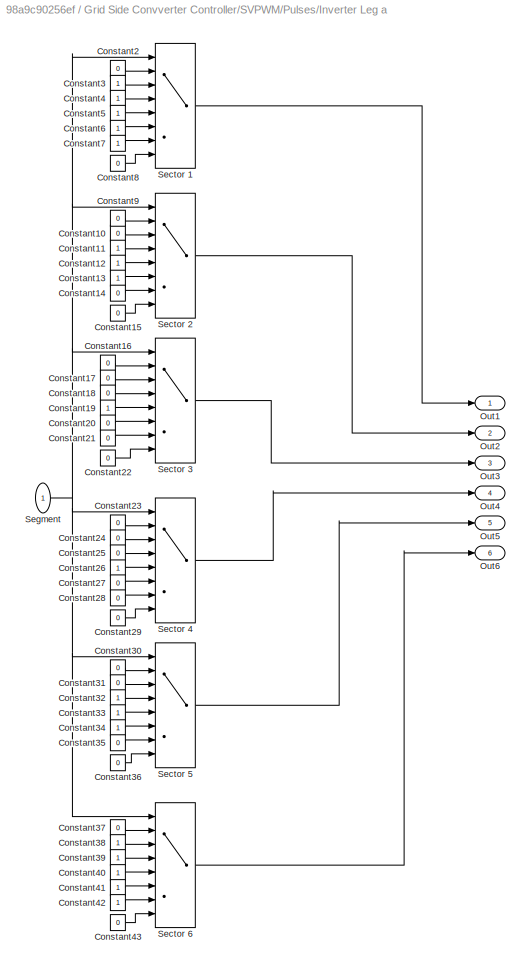
BLOCK [SubSystem] Grid Side Convverter Controller/SVPWM/Pulses/Inverter Leg a
  FunctionWithSeparateData = off
  MaskHideContents = off
  MinAlgLoopOccurrences = off
  Opaque = off
  Ports = [1, 6]
  PropExecContextOutsideSubsystem = off
  RTWSystemCode = Auto
  RequestExecContextInheritance = off
BLOCK [Constant] Grid Side Convverter Controller/SVPWM/Pulses/Inverter Leg a/Constant10
  Value = 0
BLOCK [Constant] Grid Side Convverter Controller/SVPWM/Pulses/Inverter Leg a/Constant11
BLOCK [Constant] Grid Side Convverter Controller/SVPWM/Pulses/Inverter Leg a/Constant12
BLOCK [Constant] Grid Side Convverter Controller/SVPWM/Pulses/Inverter Leg a/Constant13
BLOCK [Constant] Grid Side Convverter Controller/SVPWM/Pulses/Inverter Leg a/Constant14
  Value = 0
BLOCK [Constant] Grid Side Convverter Controller/SVPWM/Pulses/Inverter Leg a/Constant15
  Value = 0
BLOCK [Constant] Grid Side Convverter Controller/SVPWM/Pulses/Inverter Leg a/Constant16
  Value = 0
BLOCK [Constant] Grid Side Convverter Controller/SVPWM/Pulses/Inverter Leg a/Constant17
  Value = 0
BLOCK [Constant] Grid Side Convverter Controller/SVPWM/Pulses/Inverter Leg a/Constant18
  Value = 0
BLOCK [Constant] Grid Side Convverter Controller/SVPWM/Pulses/Inverter Leg a/Constant19
BLOCK [Constant] Grid Side Convverter Controller/SVPWM/Pulses/Inverter Leg a/Constant2
  Value = 0
BLOCK [Constant] Grid Side Convverter Controller/SVPWM/Pulses/Inverter Leg a/Constant20
  Value = 0
BLOCK [Constant] Grid Side Convverter Controller/SVPWM/Pulses/Inverter Leg a/Constant21
  Value = 0
BLOCK [Constant] Grid Side Convverter Controller/SVPWM/Pulses/Inverter Leg a/Constant22
  Value = 0
BLOCK [Constant] Grid Side Convverter Controller/SVPWM/Pulses/Inverter Leg a/Constant23
  Value = 0
BLOCK [Constant] Grid Side Convverter Controller/SVPWM/Pulses/Inverter Leg a/Constant24
  Value = 0
BLOCK [Constant] Grid Side Convverter Controller/SVPWM/Pulses/Inverter Leg a/Constant25
  Value = 0
BLOCK [Constant] Grid Side Convverter Controller/SVPWM/Pulses/Inverter Leg a/Constant26
BLOCK [Constant] Grid Side Convverter Controller/SVPWM/Pulses/Inverter Leg a/Constant27
  Value = 0
BLOCK [Constant] Grid Side Convverter Controller/SVPWM/Pulses/Inverter Leg a/Constant28
  Value = 0
BLOCK [Constant] Grid Side Convverter Controller/SVPWM/Pulses/Inverter Leg a/Constant29
  Value = 0
BLOCK [Constant] Grid Side Convverter Controller/SVPWM/Pulses/Inverter Leg a/Constant3
BLOCK [Constant] Grid Side Convverter Controller/SVPWM/Pulses/Inverter Leg a/Constant30
  Value = 0
BLOCK [Constant] Grid Side Convverter Controller/SVPWM/Pulses/Inverter Leg a/Constant31
  Value = 0
BLOCK [Constant] Grid Side Convverter Controller/SVPWM/Pulses/Inverter Leg a/Constant32
BLOCK [Constant] Grid Side Convverter Controller/SVPWM/Pulses/Inverter Leg a/Constant33
BLOCK [Constant] Grid Side Convverter Controller/SVPWM/Pulses/Inverter Leg a/Constant34
BLOCK [Constant] Grid Side Convverter Controller/SVPWM/Pulses/Inverter Leg a/Constant35
  Value = 0
BLOCK [Constant] Grid Side Convverter Controller/SVPWM/Pulses/Inverter Leg a/Constant36
  Value = 0
BLOCK [Constant] Grid Side Convverter Controller/SVPWM/Pulses/Inverter Leg a/Constant37
  Value = 0
BLOCK [Constant] Grid Side Convverter Controller/SVPWM/Pulses/Inverter Leg a/Constant38
BLOCK [Constant] Grid Side Convverter Controller/SVPWM/Pulses/Inverter Leg a/Constant39
BLOCK [Constant] Grid Side Convverter Controller/SVPWM/Pulses/Inverter Leg a/Constant4
BLOCK [Constant] Grid Side Convverter Controller/SVPWM/Pulses/Inverter Leg a/Constant40
BLOCK [Constant] Grid Side Convverter Controller/SVPWM/Pulses/Inverter Leg a/Constant41
BLOCK [Constant] Grid Side Convverter Controller/SVPWM/Pulses/Inverter Leg a/Constant42
BLOCK [Constant] Grid Side Convverter Controller/SVPWM/Pulses/Inverter Leg a/Constant43
  Value = 0
BLOCK [Constant] Grid Side Convverter Controller/SVPWM/Pulses/Inverter Leg a/Constant5
BLOCK [Constant] Grid Side Convverter Controller/SVPWM/Pulses/Inverter Leg a/Constant6
BLOCK [Constant] Grid Side Convverter Controller/SVPWM/Pulses/Inverter Leg a/Constant7
BLOCK [Constant] Grid Side Convverter Controller/SVPWM/Pulses/Inverter Leg a/Constant8
  Value = 0
BLOCK [Constant] Grid Side Convverter Controller/SVPWM/Pulses/Inverter Leg a/Constant9
  Value = 0
BLOCK [Outport] Grid Side Convverter Controller/SVPWM/Pulses/Inverter Leg a/Out1
  IconDisplay = Port number
BLOCK [Outport] Grid Side Convverter Controller/SVPWM/Pulses/Inverter Leg a/Out2
  IconDisplay = Port number
  Port = 2
BLOCK [Outport] Grid Side Convverter Controller/SVPWM/Pulses/Inverter Leg a/Out3
  IconDisplay = Port number
  Port = 3
BLOCK [Outport] Grid Side Convverter Controller/SVPWM/Pulses/Inverter Leg a/Out4
  IconDisplay = Port number
  Port = 4
BLOCK [Outport] Grid Side Convverter Controller/SVPWM/Pulses/Inverter Leg a/Out5
  IconDisplay = Port number
  Port = 5
BLOCK [Outport] Grid Side Convverter Controller/SVPWM/Pulses/Inverter Leg a/Out6
  IconDisplay = Port number
  Port = 6
BLOCK [MultiPortSwitch] Grid Side Convverter Controller/SVPWM/Pulses/Inverter Leg a/Sector 1
  InputSameDT = off
  Inputs = 7
  Ports = [8, 1]
  SaturateOnIntegerOverflow = off
BLOCK [MultiPortSwitch] Grid Side Convverter Controller/SVPWM/Pulses/Inverter Leg a/Sector 2
  InputSameDT = off
  Inputs = 7
  Ports = [8, 1]
  SaturateOnIntegerOverflow = off
BLOCK [MultiPortSwitch] Grid Side Convverter Controller/SVPWM/Pulses/Inverter Leg a/Sector 3
  InputSameDT = off
  Inputs = 7
  Ports = [8, 1]
  SaturateOnIntegerOverflow = off
BLOCK [MultiPortSwitch] Grid Side Convverter Controller/SVPWM/Pulses/Inverter Leg a/Sector 4
  InputSameDT = off
  Inputs = 7
  Ports = [8, 1]
  SaturateOnIntegerOverflow = off
BLOCK [MultiPortSwitch] Grid Side Convverter Controller/SVPWM/Pulses/Inverter Leg a/Sector 5
  InputSameDT = off
  Inputs = 7
  Ports = [8, 1]
  SaturateOnIntegerOverflow = off
BLOCK [MultiPortSwitch] Grid Side Convverter Controller/SVPWM/Pulses/Inverter Leg a/Sector 6
  InputSameDT = off
  Inputs = 7
  Ports = [8, 1]
  SaturateOnIntegerOverflow = off
BLOCK [Inport] Grid Side Convverter Controller/SVPWM/Pulses/Inverter Leg a/Segment
  IconDisplay = Port number
BLOCK [SubSystem] Grid Side Convverter Controller/SVPWM/Pulses/Inverter Leg b
  FunctionWithSeparateData = off
  MaskHideContents = off
  MinAlgLoopOccurrences = off
  Opaque = off
  Ports = [1, 6]
  PropExecContextOutsideSubsystem = off
  RTWSystemCode = Auto
  RequestExecContextInheritance = off
BLOCK [MultiPortSwitch] Grid Side Convverter Controller/SVPWM/Pulses/Inverter Leg b/A10
  InputSameDT = off
  Inputs = 7
  Ports = [8, 1]
  SaturateOnIntegerOverflow = off
BLOCK [MultiPortSwitch] Grid Side Convverter Controller/SVPWM/Pulses/Inverter Leg b/A11
  InputSameDT = off
  Inputs = 7
  Ports = [8, 1]
  SaturateOnIntegerOverflow = off
BLOCK [MultiPortSwitch] Grid Side Convverter Controller/SVPWM/Pulses/Inverter Leg b/A12
  InputSameDT = off
  Inputs = 7
  Ports = [8, 1]
  SaturateOnIntegerOverflow = off
BLOCK [MultiPortSwitch] Grid Side Convverter Controller/SVPWM/Pulses/Inverter Leg b/A7
  InputSameDT = off
  Inputs = 7
  Ports = [8, 1]
  SaturateOnIntegerOverflow = off
BLOCK [MultiPortSwitch] Grid Side Convverter Controller/SVPWM/Pulses/Inverter Leg b/A8
  InputSameDT = off
  Inputs = 7
  Ports = [8, 1]
  SaturateOnIntegerOverflow = off
BLOCK [MultiPortSwitch] Grid Side Convverter Controller/SVPWM/Pulses/Inverter Leg b/A9
  InputSameDT = off
  Inputs = 7
  Ports = [8, 1]
  SaturateOnIntegerOverflow = off
BLOCK [Constant] Grid Side Convverter Controller/SVPWM/Pulses/Inverter Leg b/Constant44
BLOCK [Constant] Grid Side Convverter Controller/SVPWM/Pulses/Inverter Leg b/Constant45
BLOCK [Constant] Grid Side Convverter Controller/SVPWM/Pulses/Inverter Leg b/Constant46
BLOCK [Constant] Grid Side Convverter Controller/SVPWM/Pulses/Inverter Leg b/Constant47
BLOCK [Constant] Grid Side Convverter Controller/SVPWM/Pulses/Inverter Leg b/Constant48
BLOCK [Constant] Grid Side Convverter Controller/SVPWM/Pulses/Inverter Leg b/Constant49
  Value = 0
BLOCK [Constant] Grid Side Convverter Controller/SVPWM/Pulses/Inverter Leg b/Constant50
  Value = 0
BLOCK [Constant] Grid Side Convverter Controller/SVPWM/Pulses/Inverter Leg b/Constant51
BLOCK [Constant] Grid Side Convverter Controller/SVPWM/Pulses/Inverter Leg b/Constant52
BLOCK [Constant] Grid Side Convverter Controller/SVPWM/Pulses/Inverter Leg b/Constant53
BLOCK [Constant] Grid Side Convverter Controller/SVPWM/Pulses/Inverter Leg b/Constant54
  Value = 0
BLOCK [Constant] Grid Side Convverter Controller/SVPWM/Pulses/Inverter Leg b/Constant55
BLOCK [Constant] Grid Side Convverter Controller/SVPWM/Pulses/Inverter Leg b/Constant56
BLOCK [Constant] Grid Side Convverter Controller/SVPWM/Pulses/Inverter Leg b/Constant57
  Value = 0
BLOCK [Constant] Grid Side Convverter Controller/SVPWM/Pulses/Inverter Leg b/Constant58
  Value = 0
BLOCK [Constant] Grid Side Convverter Controller/SVPWM/Pulses/Inverter Leg b/Constant59
  Value = 0
BLOCK [Constant] Grid Side Convverter Controller/SVPWM/Pulses/Inverter Leg b/Constant60
BLOCK [Constant] Grid Side Convverter Controller/SVPWM/Pulses/Inverter Leg b/Constant61
BLOCK [Constant] Grid Side Convverter Controller/SVPWM/Pulses/Inverter Leg b/Constant62
BLOCK [Constant] Grid Side Convverter Controller/SVPWM/Pulses/Inverter Leg b/Constant63
  Value = 0
BLOCK [Constant] Grid Side Convverter Controller/SVPWM/Pulses/Inverter Leg b/Constant64
  Value = 0
BLOCK [Constant] Grid Side Convverter Controller/SVPWM/Pulses/Inverter Leg b/Constant65
  Value = 0
BLOCK [Constant] Grid Side Convverter Controller/SVPWM/Pulses/Inverter Leg b/Constant66
  Value = 0
BLOCK [Constant] Grid Side Convverter Controller/SVPWM/Pulses/Inverter Leg b/Constant67
  Value = 0
BLOCK [Constant] Grid Side Convverter Controller/SVPWM/Pulses/Inverter Leg b/Constant68
  Value = 0
BLOCK [Constant] Grid Side Convverter Controller/SVPWM/Pulses/Inverter Leg b/Constant69
BLOCK [Constant] Grid Side Convverter Controller/SVPWM/Pulses/Inverter Leg b/Constant70
  Value = 0
BLOCK [Constant] Grid Side Convverter Controller/SVPWM/Pulses/Inverter Leg b/Constant71
  Value = 0
BLOCK [Constant] Grid Side Convverter Controller/SVPWM/Pulses/Inverter Leg b/Constant72
  Value = 0
BLOCK [Constant] Grid Side Convverter Controller/SVPWM/Pulses/Inverter Leg b/Constant73
  Value = 0
BLOCK [Constant] Grid Side Convverter Controller/SVPWM/Pulses/Inverter Leg b/Constant74
  Value = 0
BLOCK [Constant] Grid Side Convverter Controller/SVPWM/Pulses/Inverter Leg b/Constant75
  Value = 0
BLOCK [Constant] Grid Side Convverter Controller/SVPWM/Pulses/Inverter Leg b/Constant76
BLOCK [Constant] Grid Side Convverter Controller/SVPWM/Pulses/Inverter Leg b/Constant77
BLOCK [Constant] Grid Side Convverter Controller/SVPWM/Pulses/Inverter Leg b/Constant78
  Value = 0
BLOCK [Constant] Grid Side Convverter Controller/SVPWM/Pulses/Inverter Leg b/Constant79
  Value = 0
BLOCK [Constant] Grid Side Convverter Controller/SVPWM/Pulses/Inverter Leg b/Constant80
  Value = 0
BLOCK [Constant] Grid Side Convverter Controller/SVPWM/Pulses/Inverter Leg b/Constant81
BLOCK [Constant] Grid Side Convverter Controller/SVPWM/Pulses/Inverter Leg b/Constant82
BLOCK [Constant] Grid Side Convverter Controller/SVPWM/Pulses/Inverter Leg b/Constant83
  Value = 0
BLOCK [Constant] Grid Side Convverter Controller/SVPWM/Pulses/Inverter Leg b/Constant84
  Value = 0
BLOCK [Constant] Grid Side Convverter Controller/SVPWM/Pulses/Inverter Leg b/Constant85
  Value = 0
BLOCK [Outport] Grid Side Convverter Controller/SVPWM/Pulses/Inverter Leg b/Out1
  IconDisplay = Port number
BLOCK [Outport] Grid Side Convverter Controller/SVPWM/Pulses/Inverter Leg b/Out2
  IconDisplay = Port number
  Port = 2
BLOCK [Outport] Grid Side Convverter Controller/SVPWM/Pulses/Inverter Leg b/Out3
  IconDisplay = Port number
  Port = 3
BLOCK [Outport] Grid Side Convverter Controller/SVPWM/Pulses/Inverter Leg b/Out4
  IconDisplay = Port number
  Port = 4
BLOCK [Outport] Grid Side Convverter Controller/SVPWM/Pulses/Inverter Leg b/Out5
  IconDisplay = Port number
  Port = 5
BLOCK [Outport] Grid Side Convverter Controller/SVPWM/Pulses/Inverter Leg b/Out6
  IconDisplay = Port number
  Port = 6
BLOCK [Inport] Grid Side Convverter Controller/SVPWM/Pulses/Inverter Leg b/Segment
  IconDisplay = Port number
BLOCK [SubSystem] Grid Side Convverter Controller/SVPWM/Pulses/Inverter Leg c
  FunctionWithSeparateData = off
  MaskHideContents = off
  MinAlgLoopOccurrences = off
  Opaque = off
  Ports = [1, 6]
  PropExecContextOutsideSubsystem = off
  RTWSystemCode = Auto
  RequestExecContextInheritance = off
BLOCK [MultiPortSwitch] Grid Side Convverter Controller/SVPWM/Pulses/Inverter Leg c/A14
  InputSameDT = off
  Inputs = 7
  Ports = [8, 1]
  SaturateOnIntegerOverflow = off
BLOCK [MultiPortSwitch] Grid Side Convverter Controller/SVPWM/Pulses/Inverter Leg c/A15
  InputSameDT = off
  Inputs = 7
  Ports = [8, 1]
  SaturateOnIntegerOverflow = off
BLOCK [MultiPortSwitch] Grid Side Convverter Controller/SVPWM/Pulses/Inverter Leg c/A16
  InputSameDT = off
  Inputs = 7
  Ports = [8, 1]
  SaturateOnIntegerOverflow = off
BLOCK [MultiPortSwitch] Grid Side Convverter Controller/SVPWM/Pulses/Inverter Leg c/A17
  InputSameDT = off
  Inputs = 7
  Ports = [8, 1]
  SaturateOnIntegerOverflow = off
BLOCK [MultiPortSwitch] Grid Side Convverter Controller/SVPWM/Pulses/Inverter Leg c/A18
  InputSameDT = off
  Inputs = 7
  Ports = [8, 1]
  SaturateOnIntegerOverflow = off
BLOCK [MultiPortSwitch] Grid Side Convverter Controller/SVPWM/Pulses/Inverter Leg c/A19
  InputSameDT = off
  Inputs = 7
  Ports = [8, 1]
  SaturateOnIntegerOverflow = off
BLOCK [Constant] Grid Side Convverter Controller/SVPWM/Pulses/Inverter Leg c/Constant100
  Value = 0
BLOCK [Constant] Grid Side Convverter Controller/SVPWM/Pulses/Inverter Leg c/Constant101
BLOCK [Constant] Grid Side Convverter Controller/SVPWM/Pulses/Inverter Leg c/Constant102
BLOCK [Constant] Grid Side Convverter Controller/SVPWM/Pulses/Inverter Leg c/Constant103
BLOCK [Constant] Grid Side Convverter Controller/SVPWM/Pulses/Inverter Leg c/Constant104
BLOCK [Constant] Grid Side Convverter Controller/SVPWM/Pulses/Inverter Leg c/Constant105
BLOCK [Constant] Grid Side Convverter Controller/SVPWM/Pulses/Inverter Leg c/Constant106
  Value = 0
BLOCK [Constant] Grid Side Convverter Controller/SVPWM/Pulses/Inverter Leg c/Constant107
  Value = 0
BLOCK [Constant] Grid Side Convverter Controller/SVPWM/Pulses/Inverter Leg c/Constant108
  Value = 0
BLOCK [Constant] Grid Side Convverter Controller/SVPWM/Pulses/Inverter Leg c/Constant109
BLOCK [Constant] Grid Side Convverter Controller/SVPWM/Pulses/Inverter Leg c/Constant110
BLOCK [Constant] Grid Side Convverter Controller/SVPWM/Pulses/Inverter Leg c/Constant111
BLOCK [Constant] Grid Side Convverter Controller/SVPWM/Pulses/Inverter Leg c/Constant112
BLOCK [Constant] Grid Side Convverter Controller/SVPWM/Pulses/Inverter Leg c/Constant113
BLOCK [Constant] Grid Side Convverter Controller/SVPWM/Pulses/Inverter Leg c/Constant114
  Value = 0
BLOCK [Constant] Grid Side Convverter Controller/SVPWM/Pulses/Inverter Leg c/Constant115
  Value = 0
BLOCK [Constant] Grid Side Convverter Controller/SVPWM/Pulses/Inverter Leg c/Constant116
  Value = 0
BLOCK [Constant] Grid Side Convverter Controller/SVPWM/Pulses/Inverter Leg c/Constant117
BLOCK [Constant] Grid Side Convverter Controller/SVPWM/Pulses/Inverter Leg c/Constant118
  Value = 0
BLOCK [Constant] Grid Side Convverter Controller/SVPWM/Pulses/Inverter Leg c/Constant119
BLOCK [Constant] Grid Side Convverter Controller/SVPWM/Pulses/Inverter Leg c/Constant120
BLOCK [Constant] Grid Side Convverter Controller/SVPWM/Pulses/Inverter Leg c/Constant121
  Value = 0
BLOCK [Constant] Grid Side Convverter Controller/SVPWM/Pulses/Inverter Leg c/Constant122
  Value = 0
BLOCK [Constant] Grid Side Convverter Controller/SVPWM/Pulses/Inverter Leg c/Constant123
BLOCK [Constant] Grid Side Convverter Controller/SVPWM/Pulses/Inverter Leg c/Constant124
  Value = 0
BLOCK [Constant] Grid Side Convverter Controller/SVPWM/Pulses/Inverter Leg c/Constant125
  Value = 0
BLOCK [Constant] Grid Side Convverter Controller/SVPWM/Pulses/Inverter Leg c/Constant126
  Value = 0
BLOCK [Constant] Grid Side Convverter Controller/SVPWM/Pulses/Inverter Leg c/Constant127
  Value = 0
BLOCK [Constant] Grid Side Convverter Controller/SVPWM/Pulses/Inverter Leg c/Constant86
  Value = 0
BLOCK [Constant] Grid Side Convverter Controller/SVPWM/Pulses/Inverter Leg c/Constant87
  Value = 0
BLOCK [Constant] Grid Side Convverter Controller/SVPWM/Pulses/Inverter Leg c/Constant88
BLOCK [Constant] Grid Side Convverter Controller/SVPWM/Pulses/Inverter Leg c/Constant89
  Value = 0
BLOCK [Constant] Grid Side Convverter Controller/SVPWM/Pulses/Inverter Leg c/Constant90
  Value = 0
BLOCK [Constant] Grid Side Convverter Controller/SVPWM/Pulses/Inverter Leg c/Constant91
  Value = 0
BLOCK [Constant] Grid Side Convverter Controller/SVPWM/Pulses/Inverter Leg c/Constant92
  Value = 0
BLOCK [Constant] Grid Side Convverter Controller/SVPWM/Pulses/Inverter Leg c/Constant93
  Value = 0
BLOCK [Constant] Grid Side Convverter Controller/SVPWM/Pulses/Inverter Leg c/Constant94
BLOCK [Constant] Grid Side Convverter Controller/SVPWM/Pulses/Inverter Leg c/Constant95
BLOCK [Constant] Grid Side Convverter Controller/SVPWM/Pulses/Inverter Leg c/Constant96
  Value = 0
BLOCK [Constant] Grid Side Convverter Controller/SVPWM/Pulses/Inverter Leg c/Constant97
BLOCK [Constant] Grid Side Convverter Controller/SVPWM/Pulses/Inverter Leg c/Constant98
  Value = 0
BLOCK [Constant] Grid Side Convverter Controller/SVPWM/Pulses/Inverter Leg c/Constant99
  Value = 0
BLOCK [Outport] Grid Side Convverter Controller/SVPWM/Pulses/Inverter Leg c/Out1
  IconDisplay = Port number
BLOCK [Outport] Grid Side Convverter Controller/SVPWM/Pulses/Inverter Leg c/Out2
  IconDisplay = Port number
  Port = 2
BLOCK [Outport] Grid Side Convverter Controller/SVPWM/Pulses/Inverter Leg c/Out3
  IconDisplay = Port number
  Port = 3
BLOCK [Outport] Grid Side Convverter Controller/SVPWM/Pulses/Inverter Leg c/Out4
  IconDisplay = Port number
  Port = 4
BLOCK [Outport] Grid Side Convverter Controller/SVPWM/Pulses/Inverter Leg c/Out5
  IconDisplay = Port number
  Port = 5
BLOCK [Outport] Grid Side Convverter Controller/SVPWM/Pulses/Inverter Leg c/Out6
  IconDisplay = Port number
  Port = 6
BLOCK [Inport] Grid Side Convverter Controller/SVPWM/Pulses/Inverter Leg c/Segment
  IconDisplay = Port number
BLOCK [Logic] Grid Side Convverter Controller/SVPWM/Pulses/Logical Operator
  AllPortsSameDT = off
  Operator = NOT
  Ports = [1, 1]
BLOCK [Logic] Grid Side Convverter Controller/SVPWM/Pulses/Logical Operator1
  AllPortsSameDT = off
  Operator = NOT
  Ports = [1, 1]
BLOCK [Logic] Grid Side Convverter Controller/SVPWM/Pulses/Logical Operator2
  AllPortsSameDT = off
  Operator = NOT
  Ports = [1, 1]
BLOCK [Mux] Grid Side Convverter Controller/SVPWM/Pulses/Mux
  DisplayOption = bar
  Inputs = 6
  Ports = [6, 1]
BLOCK [Scope] Grid Side Convverter Controller/SVPWM/Pulses/Scope1
  Floating = off
  LimitDataPoints = off
  NumInputPorts = 1
  Ports = [1]
  SaveName = ScopeData2
  ShowLegends = off
BLOCK [Inport] Grid Side Convverter Controller/SVPWM/Pulses/Sector
  IconDisplay = Port number
BLOCK [MultiPortSwitch] Grid Side Convverter Controller/SVPWM/Pulses/Sector Select a
  InputSameDT = off
  Inputs = 6
  Ports = [7, 1]
  SaturateOnIntegerOverflow = off
BLOCK [MultiPortSwitch] Grid Side Convverter Controller/SVPWM/Pulses/Sector Select b
  InputSameDT = off
  Inputs = 6
  Ports = [7, 1]
  SaturateOnIntegerOverflow = off
BLOCK [MultiPortSwitch] Grid Side Convverter Controller/SVPWM/Pulses/Sector Select c
  InputSameDT = off
  Inputs = 6
  Ports = [7, 1]
  SaturateOnIntegerOverflow = off
BLOCK [SubSystem] Grid Side Convverter Controller/SVPWM/Pulses/Switching Segment Calculator
  FunctionWithSeparateData = off
  MaskHideContents = off
  MinAlgLoopOccurrences = off
  Opaque = off
  Ports = [3, 1]
  PropExecContextOutsideSubsystem = off
  RTWSystemCode = Auto
  RequestExecContextInheritance = off
BLOCK [Sum] Grid Side Convverter Controller/SVPWM/Pulses/Switching Segment Calculator/Add
  InputSameDT = off
  OutDataTypeStr = Inherit: Inherit via internal rule
  Ports = [2, 1]
  SaturateOnIntegerOverflow = off
BLOCK [Clock] Grid Side Convverter Controller/SVPWM/Pulses/Switching Segment Calculator/Clock
BLOCK [Constant] Grid Side Convverter Controller/SVPWM/Pulses/Switching Segment Calculator/Constant
  Value = 1/Fs
BLOCK [Constant] Grid Side Convverter Controller/SVPWM/Pulses/Switching Segment Calculator/Constant1
BLOCK [DataTypeConversion] Grid Side Convverter Controller/SVPWM/Pulses/Switching Segment Calculator/Data Type Conversion
  OutDataTypeStr = double
  RndMeth = Floor
  SaturateOnIntegerOverflow = off
BLOCK [DataTypeConversion] Grid Side Convverter Controller/SVPWM/Pulses/Switching Segment Calculator/Data Type Conversion1
  OutDataTypeStr = double
  RndMeth = Floor
  SaturateOnIntegerOverflow = off
BLOCK [DataTypeConversion] Grid Side Convverter Controller/SVPWM/Pulses/Switching Segment Calculator/Data Type Conversion2
  OutDataTypeStr = double
  RndMeth = Floor
  SaturateOnIntegerOverflow = off
BLOCK [DataTypeConversion] Grid Side Convverter Controller/SVPWM/Pulses/Switching Segment Calculator/Data Type Conversion3
  OutDataTypeStr = double
  RndMeth = Floor
  SaturateOnIntegerOverflow = off
BLOCK [DataTypeConversion] Grid Side Convverter Controller/SVPWM/Pulses/Switching Segment Calculator/Data Type Conversion4
  OutDataTypeStr = double
  RndMeth = Floor
  SaturateOnIntegerOverflow = off
BLOCK [DataTypeConversion] Grid Side Convverter Controller/SVPWM/Pulses/Switching Segment Calculator/Data Type Conversion5
  OutDataTypeStr = double
  RndMeth = Floor
  SaturateOnIntegerOverflow = off
BLOCK [DataTypeConversion] Grid Side Convverter Controller/SVPWM/Pulses/Switching Segment Calculator/Data Type Conversion6
  OutDataTypeStr = double
  RndMeth = Floor
  SaturateOnIntegerOverflow = off
BLOCK [Gain] Grid Side Convverter Controller/SVPWM/Pulses/Switching Segment Calculator/Gain
  Gain = 1/4
  OutDataTypeStr = Inherit: Inherit via internal rule
  ParamDataTypeStr = Inherit: Inherit via internal rule
  SaturateOnIntegerOverflow = off
BLOCK [Gain] Grid Side Convverter Controller/SVPWM/Pulses/Switching Segment Calculator/Gain1
  Gain = 1/2
  OutDataTypeStr = Inherit: Inherit via internal rule
  ParamDataTypeStr = Inherit: Inherit via internal rule
  SaturateOnIntegerOverflow = off
BLOCK [Gain] Grid Side Convverter Controller/SVPWM/Pulses/Switching Segment Calculator/Gain2
  Gain = 1/2
  OutDataTypeStr = Inherit: Inherit via internal rule
  ParamDataTypeStr = Inherit: Inherit via internal rule
  SaturateOnIntegerOverflow = off
BLOCK [Gain] Grid Side Convverter Controller/SVPWM/Pulses/Switching Segment Calculator/Gain3
  Gain = 1/2
  OutDataTypeStr = Inherit: Inherit via internal rule
  ParamDataTypeStr = Inherit: Inherit via internal rule
  SaturateOnIntegerOverflow = off
BLOCK [Gain] Grid Side Convverter Controller/SVPWM/Pulses/Switching Segment Calculator/Gain4
  Gain = 1/2
  OutDataTypeStr = Inherit: Inherit via internal rule
  ParamDataTypeStr = Inherit: Inherit via internal rule
  SaturateOnIntegerOverflow = off
BLOCK [Gain] Grid Side Convverter Controller/SVPWM/Pulses/Switching Segment Calculator/Gain5
  Gain = 1/2
  OutDataTypeStr = Inherit: Inherit via internal rule
  ParamDataTypeStr = Inherit: Inherit via internal rule
  SaturateOnIntegerOverflow = off
BLOCK [Gain] Grid Side Convverter Controller/SVPWM/Pulses/Switching Segment Calculator/Gain6
  Gain = 1/4
  OutDataTypeStr = Inherit: Inherit via internal rule
  ParamDataTypeStr = Inherit: Inherit via internal rule
  SaturateOnIntegerOverflow = off
BLOCK [Math] Grid Side Convverter Controller/SVPWM/Pulses/Switching Segment Calculator/Math Function
  Operator = rem
  Ports = [2, 1]
BLOCK [RelationalOperator] Grid Side Convverter Controller/SVPWM/Pulses/Switching Segment Calculator/Relational Operator
  InputSameDT = off
  OutDataTypeStr = boolean
  Ports = [2, 1]
BLOCK [RelationalOperator] Grid Side Convverter Controller/SVPWM/Pulses/Switching Segment Calculator/Relational Operator1
  InputSameDT = off
  OutDataTypeStr = boolean
  Ports = [2, 1]
BLOCK [RelationalOperator] Grid Side Convverter Controller/SVPWM/Pulses/Switching Segment Calculator/Relational Operator2
  InputSameDT = off
  OutDataTypeStr = boolean
  Ports = [2, 1]
BLOCK [RelationalOperator] Grid Side Convverter Controller/SVPWM/Pulses/Switching Segment Calculator/Relational Operator3
  InputSameDT = off
  OutDataTypeStr = boolean
  Ports = [2, 1]
BLOCK [RelationalOperator] Grid Side Convverter Controller/SVPWM/Pulses/Switching Segment Calculator/Relational Operator4
  InputSameDT = off
  OutDataTypeStr = boolean
  Ports = [2, 1]
BLOCK [RelationalOperator] Grid Side Convverter Controller/SVPWM/Pulses/Switching Segment Calculator/Relational Operator5
  InputSameDT = off
  OutDataTypeStr = boolean
  Ports = [2, 1]
BLOCK [RelationalOperator] Grid Side Convverter Controller/SVPWM/Pulses/Switching Segment Calculator/Relational Operator6
  InputSameDT = off
  OutDataTypeStr = boolean
  Ports = [2, 1]
BLOCK [Outport] Grid Side Convverter Controller/SVPWM/Pulses/Switching Segment Calculator/Segment
  IconDisplay = Port number
BLOCK [Sum] Grid Side Convverter Controller/SVPWM/Pulses/Switching Segment Calculator/Sum
  InputSameDT = off
  OutDataTypeStr = Inherit: Inherit via internal rule
  Ports = [2, 1]
  SaturateOnIntegerOverflow = off
BLOCK [Sum] Grid Side Convverter Controller/SVPWM/Pulses/Switching Segment Calculator/Sum1
  InputSameDT = off
  OutDataTypeStr = Inherit: Inherit via internal rule
  Ports = [2, 1]
  SaturateOnIntegerOverflow = off
BLOCK [Sum] Grid Side Convverter Controller/SVPWM/Pulses/Switching Segment Calculator/Sum2
  InputSameDT = off
  OutDataTypeStr = Inherit: Inherit via internal rule
  Ports = [2, 1]
  SaturateOnIntegerOverflow = off
BLOCK [Sum] Grid Side Convverter Controller/SVPWM/Pulses/Switching Segment Calculator/Sum3
  InputSameDT = off
  OutDataTypeStr = Inherit: Inherit via internal rule
  Ports = [2, 1]
  SaturateOnIntegerOverflow = off
BLOCK [Sum] Grid Side Convverter Controller/SVPWM/Pulses/Switching Segment Calculator/Sum4
  InputSameDT = off
  OutDataTypeStr = Inherit: Inherit via internal rule
  Ports = [2, 1]
  SaturateOnIntegerOverflow = off
BLOCK [Sum] Grid Side Convverter Controller/SVPWM/Pulses/Switching Segment Calculator/Sum5
  InputSameDT = off
  OutDataTypeStr = Inherit: Inherit via internal rule
  Ports = [2, 1]
  SaturateOnIntegerOverflow = off
BLOCK [Inport] Grid Side Convverter Controller/SVPWM/Pulses/Switching Segment Calculator/T0
  IconDisplay = Port number
BLOCK [Inport] Grid Side Convverter Controller/SVPWM/Pulses/Switching Segment Calculator/Ta
  IconDisplay = Port number
  Port = 2
BLOCK [Inport] Grid Side Convverter Controller/SVPWM/Pulses/Switching Segment Calculator/Tb
  IconDisplay = Port number
  Port = 3
BLOCK [Sum] Grid Side Convverter Controller/SVPWM/Pulses/Switching Segment Calculator/netsum
  Inputs = 7
  Ports = [7, 1]
BLOCK [Inport] Grid Side Convverter Controller/SVPWM/Pulses/T0
  IconDisplay = Port number
  Port = 4
BLOCK [Inport] Grid Side Convverter Controller/SVPWM/Pulses/Ta1
  IconDisplay = Port number
  Port = 2
BLOCK [Inport] Grid Side Convverter Controller/SVPWM/Pulses/Tb1
  IconDisplay = Port number
  Port = 3
BLOCK [Saturate] Grid Side Convverter Controller/SVPWM/Saturation
  InputPortMap = u0
  LowerLimit = 0
  Ports = [1, 1]
  SampleTime = 1/Fsampling
  UpperLimit = 0.8
BLOCK [SubSystem] Grid Side Convverter Controller/SVPWM/Sector judge
  FunctionWithSeparateData = off
  MaskHideContents = off
  MinAlgLoopOccurrences = off
  Opaque = off
  Ports = [1, 2]
  PropExecContextOutsideSubsystem = off
  RTWSystemCode = Auto
  RequestExecContextInheritance = off
BLOCK [Sum] Grid Side Convverter Controller/SVPWM/Sector judge/Add
  InputSameDT = off
  OutDataTypeStr = Inherit: Inherit via internal rule
  Ports = [2, 1]
  SaturateOnIntegerOverflow = off
BLOCK [Outport] Grid Side Convverter Controller/SVPWM/Sector judge/Cal_theta
  IconDisplay = Port number
  Port = 2
BLOCK [Constant] Grid Side Convverter Controller/SVPWM/Sector judge/Constant
  Value = 2*pi
BLOCK [Constant] Grid Side Convverter Controller/SVPWM/Sector judge/Constant1
  OutDataTypeStr = boolean
BLOCK [Constant] Grid Side Convverter Controller/SVPWM/Sector judge/Constant2
  Value = 2*pi
BLOCK [Gain] Grid Side Convverter Controller/SVPWM/Sector judge/Gain1
  Gain = 3/pi
  OutDataTypeStr = Inherit: Inherit via internal rule
  ParamDataTypeStr = Inherit: Inherit via internal rule
  SaturateOnIntegerOverflow = off
BLOCK [Gain] Grid Side Convverter Controller/SVPWM/Sector judge/Gain2
  Gain = pi/3
  OutDataTypeStr = Inherit: Inherit via internal rule
  ParamDataTypeStr = Inherit: Inherit via internal rule
  SaturateOnIntegerOverflow = off
BLOCK [Math] Grid Side Convverter Controller/SVPWM/Sector judge/Math Function1
  Operator = rem
  Ports = [2, 1]
BLOCK [Rounding] Grid Side Convverter Controller/SVPWM/Sector judge/Rounding Function
BLOCK [Outport] Grid Side Convverter Controller/SVPWM/Sector judge/Sector
  IconDisplay = Port number
BLOCK [Sum] Grid Side Convverter Controller/SVPWM/Sector judge/Sum1
  IconShape = round
  InputSameDT = off
  Inputs = |++
  OutDataTypeStr = Inherit: Inherit via internal rule
  Ports = [2, 1]
BLOCK [Sum] Grid Side Convverter Controller/SVPWM/Sector judge/Sum2
  IconShape = round
  InputSameDT = off
  Inputs = |-+
  OutDataTypeStr = Inherit: Inherit via internal rule
  Ports = [2, 1]
  SaturateOnIntegerOverflow = off
BLOCK [Inport] Grid Side Convverter Controller/SVPWM/Sector judge/theta
  IconDisplay = Port number
BLOCK [Constant] Grid Side Convverter Controller/SVPWM/Ts
  Value = 1/Fs
BLOCK [Inport] Grid Side Convverter Controller/SVPWM/VDC
  IconDisplay = Port number
  Port = 2
BLOCK [Inport] Grid Side Convverter Controller/SVPWM/Vabc
  IconDisplay = Port number
BLOCK [ZeroOrderHold] Grid Side Convverter Controller/SVPWM/Zero-Order Hold
  SampleTime = 1/(2*Fs)
BLOCK [ZeroOrderHold] Grid Side Convverter Controller/SVPWM/Zero-Order Hold1
  SampleTime = 1/(2*Fs)
BLOCK [SubSystem] Grid Side Convverter Controller/SVPWM/abc//alphabeta
  FunctionWithSeparateData = off
  MaskHideContents = off
  MinAlgLoopOccurrences = off
  Opaque = off
  Ports = [1, 2]
  PropExecContextOutsideSubsystem = off
  RTWSystemCode = Auto
  RequestExecContextInheritance = off
BLOCK [Fcn] Grid Side Convverter Controller/SVPWM/abc//alphabeta/Beta1
  Expr = (1/(3^.5))*(u(1)+2*u(2))
BLOCK [Inport] Grid Side Convverter Controller/SVPWM/abc//alphabeta/Vabc
  IconDisplay = Port number
BLOCK [Outport] Grid Side Convverter Controller/SVPWM/abc//alphabeta/Valpha
  IconDisplay = Port number
BLOCK [Outport] Grid Side Convverter Controller/SVPWM/abc//alphabeta/Vbeta
  IconDisplay = Port number
  Port = 2
BLOCK [Fcn] Grid Side Convverter Controller/SVPWM/abc//alphabeta/alpha1
  Expr = u(1)
BLOCK [Gain] Grid Side Convverter Controller/SVPWM/constant
  Gain = 3^0.5
  OutDataTypeStr = Inherit: Inherit via internal rule
  ParamDataTypeStr = Inherit: Inherit via internal rule
  SaturateOnIntegerOverflow = off
BLOCK [Scope] Grid Side Convverter Controller/SVPWM/ma
  Floating = off
  LimitDataPoints = off
  NumInputPorts = 1
  Ports = [1]
  SaveName = ScopeData5
  ShowLegends = off
BLOCK [Scope] Grid Side Convverter Controller/SVPWM/theta
  Floating = off
  LimitDataPoints = off
  NumInputPorts = 1
  Ports = [1]
  SaveName = ScopeData6
  ShowLegends = off
  YMax = 10
  YMin = -3.5
BLOCK [Sum] Grid Side Convverter Controller/Sum
  IconShape = round
  InputSameDT = off
  Inputs = +-|
  OutDataTypeStr = Inherit: Inherit via internal rule
  Ports = [2, 1]
  SaturateOnIntegerOverflow = off
BLOCK [Sum] Grid Side Convverter Controller/Sum1
  IconShape = round
  InputSameDT = off
  Inputs = |-+
  OutDataTypeStr = Inherit: Inherit via internal rule
  Ports = [2, 1]
  SaturateOnIntegerOverflow = off
BLOCK [Sum] Grid Side Convverter Controller/Sum2
  IconShape = round
  InputSameDT = off
  Inputs = |+-
  OutDataTypeStr = Inherit: Inherit via internal rule
  Ports = [2, 1]
  SaturateOnIntegerOverflow = off
BLOCK [Inport] Grid Side Convverter Controller/VDC
  IconDisplay = Port number
BLOCK [Step] Grid Side Convverter Controller/VDC reference
  After = 2500
  Before = 2500
  SampleTime = 0
BLOCK [Inport] Grid Side Convverter Controller/Vabc
  IconDisplay = Port number
  Port = 3
BLOCK [Reference] Grid Side Convverter Controller/abc to dq0  REF=powerlib_meascontrol/Transformations/abc to dq0
  Alignment = Aligned with phase A axis
  Ports = [2, 1]
  SourceBlock = powerlib_meascontrol/Transformations/abc to dq0
  SourceType = abc to dq0 Transformation
BLOCK [Reference] Grid Side Convverter Controller/abc to dq1  REF=powerlib_meascontrol/Transformations/abc to dq0
  Alignment = Aligned with phase A axis
  Ports = [2, 1]
  SourceBlock = powerlib_meascontrol/Transformations/abc to dq0
  SourceType = abc to dq0 Transformation
BLOCK [Reference] Grid Side Convverter Controller/dq0 to abc  REF=powerlib_meascontrol/Transformations/dq0 to abc
  Alignment = Aligned with phase A axis
  Ports = [2, 1]
  SourceBlock = powerlib_meascontrol/Transformations/dq0 to abc
  SourceType = dq0 to abc Transformation
BLOCK [Reference] Grid/AC Voltage Source1  REF=powerlib/Electrical
Sources/AC Voltage Source
  Amplitude = 690
  Frequency = 50
  Measurements = None
  Phase = -120
  Ports = [0, 0, 0, 0, 0, 1, 1]
  SampleTime = 0
  SourceBlock = powerlib/Electrical\nSources/AC Voltage Source
  SourceType = AC Voltage Source
BLOCK [Reference] Grid/AC Voltage Source2  REF=powerlib/Electrical
Sources/AC Voltage Source
  Amplitude = 690
  Frequency = 50
  Measurements = None
  Phase = -240
  Ports = [0, 0, 0, 0, 0, 1, 1]
  SampleTime = 0
  SourceBlock = powerlib/Electrical\nSources/AC Voltage Source
  SourceType = AC Voltage Source
BLOCK [Reference] Grid/AC Voltage Source3  REF=powerlib/Electrical
Sources/AC Voltage Source
  Amplitude = 690
  Frequency = 50
  Measurements = None
  Phase = 0
  Ports = [0, 0, 0, 0, 0, 1, 1]
  SampleTime = 0
  SourceBlock = powerlib/Electrical\nSources/AC Voltage Source
  SourceType = AC Voltage Source
BLOCK [Reference] Grid/Ground  REF=powerlib/Elements/Ground
  LConnTagsString = a
  Ports = [0, 0, 0, 0, 0, 1]
  SourceBlock = powerlib/Elements/Ground
  SourceType = Ground
BLOCK [Outport] Grid/Iabc
  IconDisplay = Port number
  Port = 2
BLOCK [PMIOPort] Grid/Phase A
  Port = 1
  Side = Left
BLOCK [PMIOPort] Grid/Phase B
  Port = 2
  Side = Left
BLOCK [PMIOPort] Grid/Phase C
  Port = 3
  Side = Left
BLOCK [Reference] Grid/Three-Phase V-I Measurement  REF=powerlib/Measurements/Three-Phase
V-I Measurement
  CurrentMeasurement = yes
  Ipu = off
  LabelI = Iabc
  LabelV = Vabc
  OutputType = Complex
  PSBequivalent = 0
  Pbase = 100e6
  PhasorSimulation = off
  Ports = [0, 2, 0, 0, 0, 3, 3]
  SetLabelI = off
  SetLabelV = off
  SourceBlock = powerlib/Measurements/Three-Phase\nV-I Measurement
  SourceType = Three-Phase VI Measurement
  Vbase = 500e3
  VoltageMeasurement = phase-to-ground
  Vpu = off
  VpuLL = off
BLOCK [Outport] Grid/Vabc
  IconDisplay = Port number
BLOCK [SubSystem] Hill Climbing Search
  FunctionWithSeparateData = off
  MaskHideContents = off
  MinAlgLoopOccurrences = off
  Opaque = off
  Ports = [2, 1]
  PropExecContextOutsideSubsystem = off
  RTWSystemCode = Auto
  RequestExecContextInheritance = off
BLOCK [Sum] Hill Climbing Search/Add
  InputSameDT = off
  Inputs = +-
  OutDataTypeStr = Inherit: Inherit via internal rule
  Ports = [2, 1]
  SaturateOnIntegerOverflow = off
BLOCK [Sum] Hill Climbing Search/Add1
  InputSameDT = off
  Inputs = +-
  OutDataTypeStr = Inherit: Inherit via internal rule
  Ports = [2, 1]
  SaturateOnIntegerOverflow = off
BLOCK [Sum] Hill Climbing Search/Add2
  InputSameDT = off
  OutDataTypeStr = Inherit: Inherit via internal rule
  Ports = [2, 1]
  SaturateOnIntegerOverflow = off
BLOCK [Constant] Hill Climbing Search/Constant
  Value = 0.001
BLOCK [Constant] Hill Climbing Search/Constant1
  Value = 0.5
BLOCK [Reference] Hill Climbing Search/Discrete PID Controller1  REF=simulink/Continuous/PID Controller
  AntiWindupMode = none
  Controller = PID
  D = 0
  DOutDataTypeStr = Inherit: Inherit via internal rule
  DOutMax = []
  DOutMin = []
  DParamDataTypeStr = Inherit: Inherit via internal rule
  DParamMax = []
  DParamMin = []
  ExternalReset = none
  FilterContinuousStateAttributes = ''
  FilterMethod = Forward Euler
  FilterOutDataTypeStr = Inherit: Inherit via internal rule
  FilterOutMax = []
  FilterOutMin = []
  FilterRTWStateStorageClass = Auto
  FilterStateMustResolveToSignalObject = off
  Form = Parallel
  I = 0.2
  IOutDataTypeStr = Inherit: Inherit via internal rule
  IOutMax = []
  IOutMin = []
  IParamDataTypeStr = Inherit: Inherit via internal rule
  IParamMax = []
  IParamMin = []
  IgnoreLimit = off
  InitialConditionForFilter = 0
  InitialConditionForIntegrator = 0
  InitialConditionSource = internal
  IntegratorContinuousStateAttributes = ''
  IntegratorMethod = Forward Euler
  IntegratorOutDataTypeStr = Inherit: Inherit via internal rule
  IntegratorOutMax = []
  IntegratorOutMin = []
  IntegratorRTWStateStorageClass = Auto
  IntegratorStateMustResolveToSignalObject = off
  Kb = 1
  KbOutDataTypeStr = Inherit: Inherit via internal rule
  KbOutMax = []
  KbOutMin = []
  KbParamDataTypeStr = Inherit: Inherit via internal rule
  KbParamMax = []
  KbParamMin = []
  Kt = 1
  KtOutDataTypeStr = Inherit: Inherit via internal rule
  KtOutMax = []
  KtOutMin = []
  KtParamDataTypeStr = Inherit: Inherit via internal rule
  KtParamMax = []
  KtParamMin = []
  LimitOutput = on
  LinearizeAsGain = off
  LockScale = off
  LowerSaturationLimit = 0.001
  N = 100
  NOutDataTypeStr = Inherit: Inherit via internal rule
  NOutMax = []
  NOutMin = []
  NParamDataTypeStr = Inherit: Inherit via internal rule
  NParamMax = []
  NParamMin = []
  P = 0.05
  POutDataTypeStr = Inherit: Inherit via internal rule
  POutMax = []
  POutMin = []
  PParamDataTypeStr = Inherit: Inherit via internal rule
  PParamMax = []
  PParamMin = []
  Ports = [1, 1]
  RndMeth = Floor
  SampleTime = 1e-4
  SaturateOnIntegerOverflow = off
  SaturationOutDataTypeStr = Inherit: Same as input
  SaturationOutMax = []
  SaturationOutMin = []
  SourceBlock = simulink/Continuous/PID Controller
  SourceType = PID 1dof
  SumAccumDataTypeStr = Inherit: Inherit via internal rule
  SumDAccumDataTypeStr = Inherit: Inherit via internal rule
  SumDOutDataTypeStr = Inherit: Inherit via internal rule
  SumDOutMax = []
  SumDOutMin = []
  SumI1AccumDataTypeStr = Inherit: Inherit via internal rule
  SumI1OutDataTypeStr = Inherit: Inherit via internal rule
  SumI1OutMax = []
  SumI1OutMin = []
  SumI2AccumDataTypeStr = Inherit: Inherit via internal rule
  SumI2OutDataTypeStr = Inherit: Inherit via internal rule
  SumI2OutMax = []
  SumI2OutMin = []
  SumI3AccumDataTypeStr = Inherit: Inherit via internal rule
  SumI3OutDataTypeStr = Inherit: Inherit via internal rule
  SumI3OutMax = []
  SumI3OutMin = []
  SumOutDataTypeStr = Inherit: Inherit via internal rule
  SumOutMax = []
  SumOutMin = []
  TimeDomain = Discrete-time
  TrackingMode = off
  UpperSaturationLimit = 0.999
  ZeroCross = on
BLOCK [From] Hill Climbing Search/From
  GotoTag = IDCWind
  TagVisibility = global
BLOCK [From] Hill Climbing Search/From1
  GotoTag = VDCWind
  TagVisibility = global
BLOCK [Gain] Hill Climbing Search/Gain
  OutDataTypeStr = Inherit: Inherit via internal rule
  ParamDataTypeStr = Inherit: Inherit via internal rule
  SaturateOnIntegerOverflow = off
BLOCK [Reference] Hill Climbing Search/Mean  REF=powerlib_meascontrol/Measurements/Mean
  Freq = 10
  Ports = [1, 1]
  SourceBlock = powerlib_meascontrol/Measurements/Mean
  SourceType = Mean
  Ts = 0
  Vinit = 0
BLOCK [Reference] Hill Climbing Search/Mean1  REF=powerlib_meascontrol/Measurements/Mean
  Freq = 10
  Ports = [1, 1]
  SourceBlock = powerlib_meascontrol/Measurements/Mean
  SourceType = Mean
  Ts = 0
  Vinit = 0
BLOCK [Outport] Hill Climbing Search/PWM
  IconDisplay = Port number
BLOCK [Reference] Hill Climbing Search/PWM Generator (DC-DC)  REF=powerlib_meascontrol/Pulse & Signal
Generators/PWM Generator
(DC-DC)
  Fsw = 10000
  Ports = [1, 1]
  SourceBlock = powerlib_meascontrol/Pulse & Signal\nGenerators/PWM Generator\n(DC-DC)
  SourceType = PWM Generator (DC-DC)
  Ts = 0
BLOCK [Inport] Hill Climbing Search/Pmech
  IconDisplay = Port number
BLOCK [Product] Hill Climbing Search/Product
  InputSameDT = off
  OutDataTypeStr = Inherit: Inherit via internal rule
  Ports = [2, 1]
  RndMeth = Floor
  SaturateOnIntegerOverflow = off
BLOCK [Product] Hill Climbing Search/Product2
  InputSameDT = off
  Inputs = 3
  OutDataTypeStr = Inherit: Inherit via internal rule
  Ports = [3, 1]
  RndMeth = Floor
  SaturateOnIntegerOverflow = off
BLOCK [Saturate] Hill Climbing Search/Saturation1
  InputPortMap = u0
  LowerLimit = 0
  Ports = [1, 1]
  UpperLimit = 10
BLOCK [Scope] Hill Climbing Search/Scope
  DataFormat = StructureWithTime
  Floating = off
  LimitDataPoints = off
  NumInputPorts = 1
  Ports = [1]
  SampleTime = 0
  SaveName = ScopeData15
  ShowLegends = off
  YMax = 1.1
  YMin = -0.1
BLOCK [Scope] Hill Climbing Search/Scope1
  DataFormat = StructureWithTime
  Floating = off
  LimitDataPoints = off
  NumInputPorts = 1
  Ports = [1]
  SampleTime = 0
  SaveName = ScopeData16
  ShowLegends = off
BLOCK [Scope] Hill Climbing Search/Scope3
  DataFormat = StructureWithTime
  Floating = off
  LimitDataPoints = off
  NumInputPorts = 3
  Ports = [3]
  SampleTime = 0
  SaveName = ScopeData18
  ShowLegends = off
  YMax = 11~10~20
  YMin = -10~-1~-20
BLOCK [Scope] Hill Climbing Search/Scope5
  DataFormat = StructureWithTime
  Floating = off
  LimitDataPoints = off
  NumInputPorts = 1
  Ports = [1]
  SampleTime = 0
  SaveName = ScopeData20
  ShowLegends = off
  YMax = 0.1
  YMin = -0.1
  ZoomMode = xonly
BLOCK [Scope] Hill Climbing Search/Scope7
  DataFormat = StructureWithTime
  Floating = off
  LimitDataPoints = off
  NumInputPorts = 1
  Ports = [1]
  SampleTime = 0
  SaveName = dP
  ShowLegends = off
  YMax = 1750
  YMin = -1500
  ZoomMode = yonly
BLOCK [Scope] Hill Climbing Search/Scope8
  DataFormat = StructureWithTime
  Floating = off
  LimitDataPoints = off
  NumInputPorts = 1
  Ports = [1]
  SampleTime = 0
  SaveName = dw
  ShowLegends = off
  YMax = 0.01
  YMin = -0.01
  ZoomMode = yonly
BLOCK [Signum] Hill Climbing Search/Sign
BLOCK [Signum] Hill Climbing Search/Sign1
BLOCK [Sum] Hill Climbing Search/Sum
  IconShape = round
  InputSameDT = off
  Inputs = |+-
  OutDataTypeStr = Inherit: Inherit via internal rule
  Ports = [2, 1]
  SaturateOnIntegerOverflow = off
BLOCK [UnitDelay] Hill Climbing Search/Unit Delay
  InputProcessing = Elements as channels (sample based)
  SampleTime = -1
BLOCK [UnitDelay] Hill Climbing Search/Unit Delay2
  InputProcessing = Elements as channels (sample based)
  SampleTime = -1
BLOCK [UnitDelay] Hill Climbing Search/Unit Delay3
  InputProcessing = Elements as channels (sample based)
  SampleTime = -1
BLOCK [Inport] Hill Climbing Search/wm
  IconDisplay = Port number
  Port = 2
BLOCK [SubSystem] Measurements
  FunctionWithSeparateData = off
  MaskHideContents = off
  MinAlgLoopOccurrences = off
  Opaque = off
  Ports = []
  PropExecContextOutsideSubsystem = off
  RTWSystemCode = Auto
  RequestExecContextInheritance = off
BLOCK [From] Measurements/From1
  GotoTag = VDCWind
  TagVisibility = global
BLOCK [From] Measurements/From10
  GotoTag = IACWind
  TagVisibility = global
BLOCK [From] Measurements/From11
  GotoTag = Pmech
  TagVisibility = global
BLOCK [From] Measurements/From12
  GotoTag = Vwind
  TagVisibility = global
BLOCK [From] Measurements/From13
  GotoTag = wm
  TagVisibility = global
BLOCK [From] Measurements/From14
  GotoTag = VACGSC
  TagVisibility = global
BLOCK [From] Measurements/From15
  GotoTag = IACGSC
  TagVisibility = global
BLOCK [From] Measurements/From2
  GotoTag = IDCWind
  TagVisibility = global
BLOCK [From] Measurements/From3
  GotoTag = VDCSolar
  TagVisibility = global
BLOCK [From] Measurements/From4
  GotoTag = IDCSolar
  TagVisibility = global
BLOCK [From] Measurements/From5
  GotoTag = VDCGSC
  TagVisibility = global
BLOCK [From] Measurements/From6
  GotoTag = IDCGSC
  TagVisibility = global
BLOCK [From] Measurements/From7
  GotoTag = VACGrid
  TagVisibility = global
BLOCK [From] Measurements/From8
  GotoTag = IACGrid
  TagVisibility = global
BLOCK [From] Measurements/From9
  GotoTag = VACWind
  TagVisibility = global
BLOCK [Reference] Measurements/Mean  REF=powerlib_meascontrol/Measurements/Mean
  Freq = 10
  Ports = [1, 1]
  SourceBlock = powerlib_meascontrol/Measurements/Mean
  SourceType = Mean
  Ts = 0
  Vinit = 0
BLOCK [Product] Measurements/Product
  InputSameDT = off
  OutDataTypeStr = Inherit: Inherit via internal rule
  Ports = [2, 1]
  RndMeth = Floor
  SaturateOnIntegerOverflow = off
BLOCK [Product] Measurements/Product1
  InputSameDT = off
  OutDataTypeStr = Inherit: Inherit via internal rule
  Ports = [2, 1]
  RndMeth = Floor
  SaturateOnIntegerOverflow = off
BLOCK [Product] Measurements/Product2
  InputSameDT = off
  OutDataTypeStr = Inherit: Inherit via internal rule
  Ports = [2, 1]
  RndMeth = Floor
  SaturateOnIntegerOverflow = off
BLOCK [Scope] Measurements/Scope1
  DataFormat = StructureWithTime
  Floating = off
  LimitDataPoints = off
  NumInputPorts = 1
  Ports = [1]
  SampleTime = 0
  SaveName = ScopeData3
  ShowLegends = off
  YMax = 1000
  YMin = -1000
  ZoomMode = xonly
BLOCK [Scope] Measurements/Scope10
  DataFormat = StructureWithTime
  Floating = off
  LimitDataPoints = off
  NumInputPorts = 1
  Ports = [1]
  SampleTime = 0
  SaveName = ScopeData25
  ShowLegends = off
  YMax = 3000
  YMin = -3000
  ZoomMode = xonly
BLOCK [Scope] Measurements/Scope11
  DataFormat = StructureWithTime
  Floating = off
  LimitDataPoints = off
  NumInputPorts = 1
  Ports = [1]
  SampleTime = 0
  SaveName = ScopeData8
  ShowLegends = off
  YMax = 20
  YMin = 0
  ZoomMode = xonly
BLOCK [Scope] Measurements/Scope12
  DataFormat = StructureWithTime
  Floating = off
  LimitDataPoints = off
  NumInputPorts = 1
  Ports = [1]
  SampleTime = 0
  SaveName = ScopeData9
  ShowLegends = off
  YMax = 1000000
  YMin = -1000000
  ZoomMode = xonly
BLOCK [Scope] Measurements/Scope13
  DataFormat = StructureWithTime
  Floating = off
  LimitDataPoints = off
  NumInputPorts = 1
  Ports = [1]
  SampleTime = 0
  SaveName = ScopeData27
  ShowLegends = off
  YMax = 10
  YMin = -2
  ZoomMode = xonly
BLOCK [Scope] Measurements/Scope14
  DataFormat = StructureWithTime
  Floating = off
  LimitDataPoints = off
  NumInputPorts = 1
  Ports = [1]
  SampleTime = 0
  SaveName = ScopeData28
  ShowLegends = off
  YMax = 10000000
  YMin = -100000
  ZoomMode = xonly
BLOCK [Scope] Measurements/Scope15
  DataFormat = StructureWithTime
  Floating = off
  LimitDataPoints = off
  NumInputPorts = 1
  Ports = [1]
  SampleTime = 0
  SaveName = ScopeData30
  ShowLegends = off
  YMax = 10000
  YMin = -10000
  ZoomMode = xonly
BLOCK [Scope] Measurements/Scope16
  DataFormat = StructureWithTime
  Floating = off
  LimitDataPoints = off
  NumInputPorts = 1
  Ports = [1]
  SampleTime = 0
  SaveName = ScopeData31
  ShowLegends = off
  YMax = 3.5e+07
  YMin = -3.5e+07
  ZoomMode = xonly
BLOCK [Scope] Measurements/Scope18
  DataFormat = StructureWithTime
  Floating = off
  LimitDataPoints = off
  NumInputPorts = 1
  Ports = [1]
  SampleTime = 0
  SaveName = ScopeData34
  ShowLegends = off
  YMax = 35000
  YMin = -35000
  ZoomMode = xonly
BLOCK [Scope] Measurements/Scope19
  DataFormat = StructureWithTime
  Floating = off
  LimitDataPoints = off
  NumInputPorts = 1
  Ports = [1]
  SampleTime = 0
  SaveName = ScopeData35
  ShowLegends = off
  YMax = 10000
  YMin = -10000
  ZoomMode = xonly
BLOCK [Scope] Measurements/Scope2
  DataFormat = StructureWithTime
  Floating = off
  LimitDataPoints = off
  NumInputPorts = 1
  Ports = [1]
  SampleTime = 0
  SaveName = ScopeData17
  ShowLegends = off
  YMax = 5000
  YMin = -5000
  ZoomMode = xonly
BLOCK [Scope] Measurements/Scope3
  DataFormat = StructureWithTime
  Floating = off
  LimitDataPoints = off
  NumInputPorts = 1
  Ports = [1]
  SampleTime = 0
  SaveName = ScopeData7
  ShowLegends = off
  YMax = 5000
  YMin = -5000
  ZoomMode = xonly
BLOCK [Scope] Measurements/Scope4
  DataFormat = StructureWithTime
  Floating = off
  LimitDataPoints = off
  NumInputPorts = 1
  Ports = [1]
  SampleTime = 0
  SaveName = ScopeData19
  ShowLegends = off
  YMax = 100
  YMin = -100
  ZoomMode = xonly
BLOCK [Scope] Measurements/Scope5
  DataFormat = StructureWithTime
  Floating = off
  LimitDataPoints = off
  NumInputPorts = 1
  Ports = [1]
  SampleTime = 0
  SaveName = ScopeData21
  ShowLegends = off
  YMax = 5000
  YMin = 0
  ZoomMode = xonly
BLOCK [Scope] Measurements/Scope6
  DataFormat = StructureWithTime
  Floating = off
  LimitDataPoints = off
  NumInputPorts = 1
  Ports = [1]
  SampleTime = 0
  SaveName = ScopeData22
  ShowLegends = off
  YMax = 1700
  YMin = -500
  ZoomMode = xonly
BLOCK [Scope] Measurements/Scope7
  DataFormat = StructureWithTime
  Floating = off
  LimitDataPoints = off
  NumInputPorts = 1
  Ports = [1]
  SampleTime = 0
  SaveName = ScopeData23
  ShowLegends = off
  YMax = 5000
  YMin = -5000
  ZoomMode = xonly
BLOCK [Scope] Measurements/Scope8
  DataFormat = StructureWithTime
  Floating = off
  LimitDataPoints = off
  NumInputPorts = 1
  Ports = [1]
  SampleTime = 0
  SaveName = ScopeData24
  ShowLegends = off
  YMax = -4250
  YMin = -8250
  ZoomMode = xonly
BLOCK [Scope] Measurements/Scope9
  DataFormat = StructureWithTime
  Floating = off
  LimitDataPoints = off
  NumInputPorts = 1
  Ports = [1]
  SampleTime = 0
  SaveName = ScopeData26
  ShowLegends = off
  YMax = 1000
  YMin = -1000
  ZoomMode = xonly
BLOCK [Reference] PWM Generator (DC-DC)  REF=powerlib_meascontrol/Pulse & Signal
Generators/PWM Generator
(DC-DC)
  Fsw = 5000
  Ports = [1, 1]
  SourceBlock = powerlib_meascontrol/Pulse & Signal\nGenerators/PWM Generator\n(DC-DC)
  SourceType = PWM Generator (DC-DC)
  Ts = 0
BLOCK [Reference] PWM Generator (DC-DC)1  REF=powerlib_meascontrol/Pulse & Signal
Generators/PWM Generator
(DC-DC)
  Fsw = 5000
  Ports = [1, 1]
  SourceBlock = powerlib_meascontrol/Pulse & Signal\nGenerators/PWM Generator\n(DC-DC)
  SourceType = PWM Generator (DC-DC)
  Ts = 0
BLOCK [SubSystem] Rectifier
  FunctionWithSeparateData = off
  MaskHideContents = off
  MinAlgLoopOccurrences = off
  Opaque = off
  Ports = [0, 0, 0, 0, 0, 3, 2]
  PropExecContextOutsideSubsystem = off
  RTWSystemCode = Auto
  RequestExecContextInheritance = off
BLOCK [PMIOPort] Rectifier/+
  Port = 1
  Side = Right
BLOCK [PMIOPort] Rectifier/-
  Port = 5
  Side = Right
BLOCK [PMIOPort] Rectifier/A
  Port = 2
  Side = Left
BLOCK [PMIOPort] Rectifier/B
  Port = 3
  Side = Left
BLOCK [PMIOPort] Rectifier/C
  Port = 4
  Side = Left
BLOCK [Reference] Rectifier/Diode  REF=powerlib/Power
Electronics/Diode
  Cs = 250e-9
  IC = 0
  Lon = 0
  Measurements = off
  Ports = [0, 0, 0, 0, 0, 1, 1]
  Ron = 0.001
  Rs = 5e9
  SourceBlock = powerlib/Power\nElectronics/Diode
  SourceType = Diode
  UseSnubber = off
  Vf = 0.8
BLOCK [Reference] Rectifier/Diode1  REF=powerlib/Power
Electronics/Diode
  Cs = 250e-9
  IC = 0
  Lon = 0
  Measurements = off
  Ports = [0, 0, 0, 0, 0, 1, 1]
  Ron = 0.001
  Rs = 5e9
  SourceBlock = powerlib/Power\nElectronics/Diode
  SourceType = Diode
  UseSnubber = off
  Vf = 0.8
BLOCK [Reference] Rectifier/Diode2  REF=powerlib/Power
Electronics/Diode
  Cs = 250e-9
  IC = 0
  Lon = 0
  Measurements = off
  Ports = [0, 0, 0, 0, 0, 1, 1]
  Ron = 0.001
  Rs = 5e9
  SourceBlock = powerlib/Power\nElectronics/Diode
  SourceType = Diode
  UseSnubber = off
  Vf = 0.8
BLOCK [Reference] Rectifier/Diode3  REF=powerlib/Power
Electronics/Diode
  Cs = 250e-9
  IC = 0
  Lon = 0
  Measurements = off
  Ports = [0, 0, 0, 0, 0, 1, 1]
  Ron = 0.001
  Rs = 5e9
  SourceBlock = powerlib/Power\nElectronics/Diode
  SourceType = Diode
  UseSnubber = off
  Vf = 0.8
BLOCK [Reference] Rectifier/Diode4  REF=powerlib/Power
Electronics/Diode
  Cs = 250e-9
  IC = 0
  Lon = 0
  Measurements = off
  Ports = [0, 0, 0, 0, 0, 1, 1]
  Ron = 0.001
  Rs = 5e9
  SourceBlock = powerlib/Power\nElectronics/Diode
  SourceType = Diode
  UseSnubber = off
  Vf = 0.8
BLOCK [Reference] Rectifier/Diode5  REF=powerlib/Power
Electronics/Diode
  Cs = 250e-9
  IC = 0
  Lon = 0
  Measurements = off
  Ports = [0, 0, 0, 0, 0, 1, 1]
  Ron = 0.001
  Rs = 5e9
  SourceBlock = powerlib/Power\nElectronics/Diode
  SourceType = Diode
  UseSnubber = off
  Vf = 0.8
BLOCK [Goto] Rectifier/Goto
  GotoTag = VACWind
  TagVisibility = global
BLOCK [Goto] Rectifier/Goto1
  GotoTag = IACWind
  TagVisibility = global
BLOCK [Reference] Rectifier/Three-Phase V-I Measurement  REF=powerlib/Measurements/Three-Phase
V-I Measurement
  CurrentMeasurement = yes
  Ipu = off
  LabelI = Iabc
  LabelV = Vabc
  OutputType = Complex
  PSBequivalent = 0
  Pbase = 100e6
  PhasorSimulation = off
  Ports = [0, 2, 0, 0, 0, 3, 3]
  SetLabelI = off
  SetLabelV = off
  SourceBlock = powerlib/Measurements/Three-Phase\nV-I Measurement
  SourceType = Three-Phase VI Measurement
  Vbase = 500e3
  VoltageMeasurement = phase-to-phase
  Vpu = off
  VpuLL = off
BLOCK [Reference] Series RLC Branch  REF=powerlib/Elements/Series RLC Branch
  BranchType = Open circuit
  Capacitance = 1e-6
  Inductance = 1e-3
  InitialCurrent = 0
  InitialVoltage = 0
  LConnTagsString = __new0
  Measurements = None
  Ports = [0, 0, 0, 0, 0, 1, 1]
  RConnTagsString = __new0
  Resistance = 1
  SetiL0 = off
  Setx0 = off
  SourceBlock = powerlib/Elements/Series RLC Branch
  SourceType = Series RLC Branch
BLOCK [SubSystem] Solar Power Plant
  FunctionWithSeparateData = off
  MaskHideContents = off
  MinAlgLoopOccurrences = off
  Opaque = off
  Ports = [0, 0, 0, 0, 0, 2]
  PropExecContextOutsideSubsystem = off
  RTWSystemCode = Auto
  RequestExecContextInheritance = off
BLOCK [PMIOPort] Solar Power Plant/+1
  Port = 1
  Side = Left
BLOCK [PMIOPort] Solar Power Plant/-1
  Port = 2
  Side = Left
BLOCK [Reference] Solar Power Plant/I1  REF=powerlib/Electrical
Sources/Controlled Current Source
  Amplitude = 0
  Frequency = 0
  Initialize = on
  Measurements = None
  Phase = 0
  Ports = [1, 0, 0, 0, 0, 1, 1]
  SourceBlock = powerlib/Electrical\nSources/Controlled Current Source
  SourceType = Controlled Current Source
  Source_Type = AC
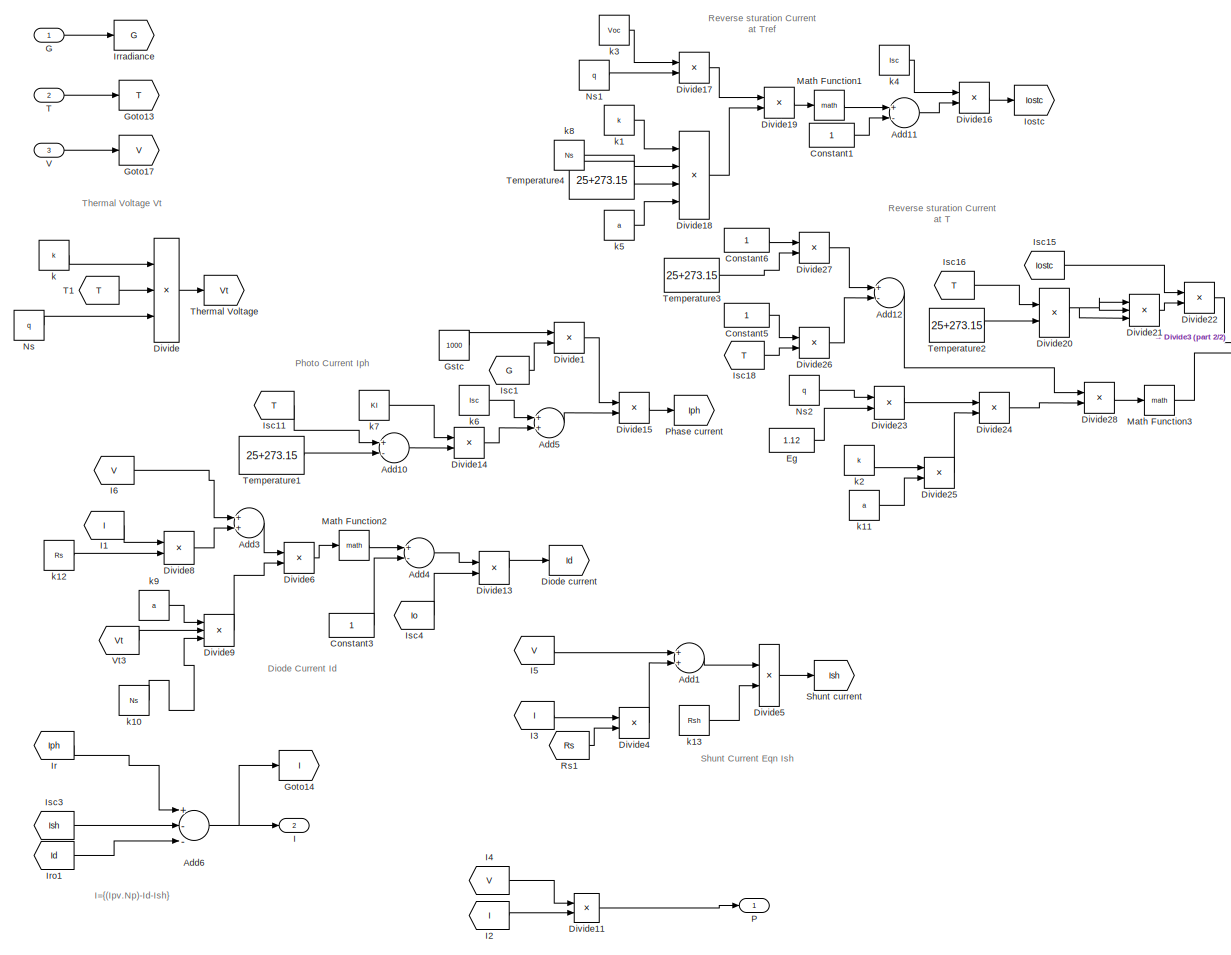
[diagram: Solar Power Plant/PV panel1 - part 1/2, most of the canvas]
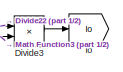
[diagram: Solar Power Plant/PV panel1 - part 2/2, middle right region]
BLOCK [SubSystem] Solar Power Plant/PV panel1
  FunctionWithSeparateData = off
  MaskHideContents = off
  MinAlgLoopOccurrences = off
  Opaque = off
  Ports = [3, 2]
  PropExecContextOutsideSubsystem = off
  RTWSystemCode = Auto
  RequestExecContextInheritance = off
BLOCK [Sum] Solar Power Plant/PV panel1/Add1
  InputSameDT = off
  OutDataTypeStr = Inherit: Inherit via internal rule
  Ports = [2, 1]
  SaturateOnIntegerOverflow = off
BLOCK [Sum] Solar Power Plant/PV panel1/Add10
  InputSameDT = off
  Inputs = +-
  OutDataTypeStr = Inherit: Inherit via internal rule
  Ports = [2, 1]
  SaturateOnIntegerOverflow = off
BLOCK [Sum] Solar Power Plant/PV panel1/Add11
  InputSameDT = off
  Inputs = +-
  OutDataTypeStr = Inherit: Inherit via internal rule
  Ports = [2, 1]
  SaturateOnIntegerOverflow = off
BLOCK [Sum] Solar Power Plant/PV panel1/Add12
  InputSameDT = off
  Inputs = +-
  OutDataTypeStr = Inherit: Inherit via internal rule
  Ports = [2, 1]
  SaturateOnIntegerOverflow = off
BLOCK [Sum] Solar Power Plant/PV panel1/Add3
  InputSameDT = off
  OutDataTypeStr = Inherit: Inherit via internal rule
  Ports = [2, 1]
  SaturateOnIntegerOverflow = off
BLOCK [Sum] Solar Power Plant/PV panel1/Add4
  InputSameDT = off
  Inputs = +-
  OutDataTypeStr = Inherit: Inherit via internal rule
  Ports = [2, 1]
  SaturateOnIntegerOverflow = off
BLOCK [Sum] Solar Power Plant/PV panel1/Add5
  InputSameDT = off
  OutDataTypeStr = Inherit: Inherit via internal rule
  Ports = [2, 1]
  SaturateOnIntegerOverflow = off
BLOCK [Sum] Solar Power Plant/PV panel1/Add6
  InputSameDT = off
  Inputs = +--
  OutDataTypeStr = Inherit: Inherit via internal rule
  Ports = [3, 1]
  SaturateOnIntegerOverflow = off
BLOCK [Constant] Solar Power Plant/PV panel1/Constant1
BLOCK [Constant] Solar Power Plant/PV panel1/Constant3
BLOCK [Constant] Solar Power Plant/PV panel1/Constant5
BLOCK [Constant] Solar Power Plant/PV panel1/Constant6
BLOCK [Goto] Solar Power Plant/PV panel1/Diode current
  GotoTag = Id
BLOCK [Product] Solar Power Plant/PV panel1/Divide
  InputSameDT = off
  Inputs = **/
  OutDataTypeStr = Inherit: Inherit via internal rule
  Ports = [3, 1]
  RndMeth = Floor
  SaturateOnIntegerOverflow = off
BLOCK [Product] Solar Power Plant/PV panel1/Divide1
  InputSameDT = off
  Inputs = /*
  OutDataTypeStr = Inherit: Inherit via internal rule
  Ports = [2, 1]
  RndMeth = Floor
  SaturateOnIntegerOverflow = off
BLOCK [Product] Solar Power Plant/PV panel1/Divide11
  InputSameDT = off
  Inputs = **
  OutDataTypeStr = Inherit: Inherit via internal rule
  Ports = [2, 1]
  RndMeth = Floor
  SaturateOnIntegerOverflow = off
BLOCK [Product] Solar Power Plant/PV panel1/Divide13
  InputSameDT = off
  Inputs = **
  OutDataTypeStr = Inherit: Inherit via internal rule
  Ports = [2, 1]
  RndMeth = Floor
  SaturateOnIntegerOverflow = off
BLOCK [Product] Solar Power Plant/PV panel1/Divide14
  InputSameDT = off
  Inputs = **
  OutDataTypeStr = Inherit: Inherit via internal rule
  Ports = [2, 1]
  RndMeth = Floor
  SaturateOnIntegerOverflow = off
BLOCK [Product] Solar Power Plant/PV panel1/Divide15
  InputSameDT = off
  Inputs = **
  OutDataTypeStr = Inherit: Inherit via internal rule
  Ports = [2, 1]
  RndMeth = Floor
  SaturateOnIntegerOverflow = off
BLOCK [Product] Solar Power Plant/PV panel1/Divide16
  InputSameDT = off
  Inputs = */
  OutDataTypeStr = Inherit: Inherit via internal rule
  Ports = [2, 1]
  RndMeth = Floor
  SaturateOnIntegerOverflow = off
BLOCK [Product] Solar Power Plant/PV panel1/Divide17
  InputSameDT = off
  Inputs = **
  OutDataTypeStr = Inherit: Inherit via internal rule
  Ports = [2, 1]
  RndMeth = Floor
  SaturateOnIntegerOverflow = off
BLOCK [Product] Solar Power Plant/PV panel1/Divide18
  InputSameDT = off
  Inputs = ****
  OutDataTypeStr = Inherit: Inherit via internal rule
  Ports = [4, 1]
  RndMeth = Floor
  SaturateOnIntegerOverflow = off
BLOCK [Product] Solar Power Plant/PV panel1/Divide19
  InputSameDT = off
  Inputs = */
  OutDataTypeStr = Inherit: Inherit via internal rule
  Ports = [2, 1]
  RndMeth = Floor
  SaturateOnIntegerOverflow = off
BLOCK [Product] Solar Power Plant/PV panel1/Divide20
  InputSameDT = off
  Inputs = */
  OutDataTypeStr = Inherit: Inherit via internal rule
  Ports = [2, 1]
  RndMeth = Floor
  SaturateOnIntegerOverflow = off
BLOCK [Product] Solar Power Plant/PV panel1/Divide21
  InputSameDT = off
  Inputs = ***
  OutDataTypeStr = Inherit: Inherit via internal rule
  Ports = [3, 1]
  RndMeth = Floor
  SaturateOnIntegerOverflow = off
BLOCK [Product] Solar Power Plant/PV panel1/Divide22
  InputSameDT = off
  Inputs = **
  OutDataTypeStr = Inherit: Inherit via internal rule
  Ports = [2, 1]
  RndMeth = Floor
  SaturateOnIntegerOverflow = off
BLOCK [Product] Solar Power Plant/PV panel1/Divide23
  InputSameDT = off
  Inputs = **
  OutDataTypeStr = Inherit: Inherit via internal rule
  Ports = [2, 1]
  RndMeth = Floor
  SaturateOnIntegerOverflow = off
BLOCK [Product] Solar Power Plant/PV panel1/Divide24
  InputSameDT = off
  Inputs = */
  OutDataTypeStr = Inherit: Inherit via internal rule
  Ports = [2, 1]
  RndMeth = Floor
  SaturateOnIntegerOverflow = off
BLOCK [Product] Solar Power Plant/PV panel1/Divide25
  InputSameDT = off
  Inputs = **
  OutDataTypeStr = Inherit: Inherit via internal rule
  Ports = [2, 1]
  RndMeth = Floor
  SaturateOnIntegerOverflow = off
BLOCK [Product] Solar Power Plant/PV panel1/Divide26
  InputSameDT = off
  Inputs = */
  OutDataTypeStr = Inherit: Inherit via internal rule
  Ports = [2, 1]
  RndMeth = Floor
  SaturateOnIntegerOverflow = off
BLOCK [Product] Solar Power Plant/PV panel1/Divide27
  InputSameDT = off
  Inputs = */
  OutDataTypeStr = Inherit: Inherit via internal rule
  Ports = [2, 1]
  RndMeth = Floor
  SaturateOnIntegerOverflow = off
BLOCK [Product] Solar Power Plant/PV panel1/Divide28
  InputSameDT = off
  Inputs = **
  OutDataTypeStr = Inherit: Inherit via internal rule
  Ports = [2, 1]
  RndMeth = Floor
  SaturateOnIntegerOverflow = off
BLOCK [Product] Solar Power Plant/PV panel1/Divide3
  InputSameDT = off
  Inputs = **
  OutDataTypeStr = Inherit: Inherit via internal rule
  Ports = [2, 1]
  RndMeth = Floor
  SaturateOnIntegerOverflow = off
BLOCK [Product] Solar Power Plant/PV panel1/Divide4
  InputSameDT = off
  Inputs = **
  OutDataTypeStr = Inherit: Inherit via internal rule
  Ports = [2, 1]
  RndMeth = Floor
  SaturateOnIntegerOverflow = off
BLOCK [Product] Solar Power Plant/PV panel1/Divide5
  InputSameDT = off
  Inputs = */
  OutDataTypeStr = Inherit: Inherit via internal rule
  Ports = [2, 1]
  RndMeth = Floor
  SaturateOnIntegerOverflow = off
BLOCK [Product] Solar Power Plant/PV panel1/Divide6
  InputSameDT = off
  Inputs = */
  OutDataTypeStr = Inherit: Inherit via internal rule
  Ports = [2, 1]
  RndMeth = Floor
  SaturateOnIntegerOverflow = off
BLOCK [Product] Solar Power Plant/PV panel1/Divide8
  InputSameDT = off
  Inputs = **
  OutDataTypeStr = Inherit: Inherit via internal rule
  Ports = [2, 1]
  RndMeth = Floor
  SaturateOnIntegerOverflow = off
BLOCK [Product] Solar Power Plant/PV panel1/Divide9
  InputSameDT = off
  Inputs = ***
  OutDataTypeStr = Inherit: Inherit via internal rule
  Ports = [3, 1]
  RndMeth = Floor
  SaturateOnIntegerOverflow = off
BLOCK [Constant] Solar Power Plant/PV panel1/Eg
  Value = 1.12
BLOCK [Inport] Solar Power Plant/PV panel1/G
  IconDisplay = Port number
BLOCK [Goto] Solar Power Plant/PV panel1/Goto13
  GotoTag = T
BLOCK [Goto] Solar Power Plant/PV panel1/Goto14
  GotoTag = I
BLOCK [Goto] Solar Power Plant/PV panel1/Goto17
  GotoTag = V
BLOCK [Constant] Solar Power Plant/PV panel1/Gstc
  Value = 1000
BLOCK [Outport] Solar Power Plant/PV panel1/I
  IconDisplay = Port number
  Port = 2
BLOCK [From] Solar Power Plant/PV panel1/I1
  GotoTag = I
BLOCK [From] Solar Power Plant/PV panel1/I2
  GotoTag = I
BLOCK [From] Solar Power Plant/PV panel1/I3
  GotoTag = I
BLOCK [From] Solar Power Plant/PV panel1/I4
  GotoTag = V
BLOCK [From] Solar Power Plant/PV panel1/I5
  GotoTag = V
BLOCK [From] Solar Power Plant/PV panel1/I6
  GotoTag = V
BLOCK [Goto] Solar Power Plant/PV panel1/Io
  GotoTag = Io
BLOCK [Goto] Solar Power Plant/PV panel1/Iostc
  GotoTag = Iostc
BLOCK [From] Solar Power Plant/PV panel1/Ir
  GotoTag = Iph
BLOCK [From] Solar Power Plant/PV panel1/Iro1
  GotoTag = Id
BLOCK [Goto] Solar Power Plant/PV panel1/Irradiance
  GotoTag = G
BLOCK [From] Solar Power Plant/PV panel1/Isc1
  GotoTag = G
BLOCK [From] Solar Power Plant/PV panel1/Isc11
  GotoTag = T
BLOCK [From] Solar Power Plant/PV panel1/Isc15
  GotoTag = Iostc
BLOCK [From] Solar Power Plant/PV panel1/Isc16
  GotoTag = T
BLOCK [From] Solar Power Plant/PV panel1/Isc18
  GotoTag = T
BLOCK [From] Solar Power Plant/PV panel1/Isc3
  GotoTag = Ish
BLOCK [From] Solar Power Plant/PV panel1/Isc4
  GotoTag = Io
BLOCK [Math] Solar Power Plant/PV panel1/Math Function1
  Ports = [1, 1]
BLOCK [Math] Solar Power Plant/PV panel1/Math Function2
  Ports = [1, 1]
BLOCK [Math] Solar Power Plant/PV panel1/Math Function3
  Ports = [1, 1]
BLOCK [Constant] Solar Power Plant/PV panel1/Ns
  Value = q
BLOCK [Constant] Solar Power Plant/PV panel1/Ns1
  Value = q
BLOCK [Constant] Solar Power Plant/PV panel1/Ns2
  Value = q
BLOCK [Outport] Solar Power Plant/PV panel1/P
  IconDisplay = Port number
BLOCK [Goto] Solar Power Plant/PV panel1/Phase current 
  GotoTag = Iph
BLOCK [From] Solar Power Plant/PV panel1/Rs1
  GotoTag = Rs
BLOCK [Goto] Solar Power Plant/PV panel1/Shunt current
  GotoTag = Ish
BLOCK [Inport] Solar Power Plant/PV panel1/T
  IconDisplay = Port number
  Port = 2
BLOCK [From] Solar Power Plant/PV panel1/T1
  GotoTag = T
BLOCK [Constant] Solar Power Plant/PV panel1/Temperature1
  Value = 25+273.15
BLOCK [Constant] Solar Power Plant/PV panel1/Temperature2
  Value = 25+273.15
BLOCK [Constant] Solar Power Plant/PV panel1/Temperature3
  Value = 25+273.15
BLOCK [Constant] Solar Power Plant/PV panel1/Temperature4
  Value = 25+273.15
BLOCK [Goto] Solar Power Plant/PV panel1/Thermal Voltage
  GotoTag = Vt
BLOCK [Inport] Solar Power Plant/PV panel1/V
  IconDisplay = Port number
  Port = 3
BLOCK [From] Solar Power Plant/PV panel1/Vt3
  GotoTag = Vt
BLOCK [Constant] Solar Power Plant/PV panel1/k
  Value = k
BLOCK [Constant] Solar Power Plant/PV panel1/k1
  Value = k
BLOCK [Constant] Solar Power Plant/PV panel1/k10
  Value = Ns
BLOCK [Constant] Solar Power Plant/PV panel1/k11
  Value = a
BLOCK [Constant] Solar Power Plant/PV panel1/k12
  Value = Rs
BLOCK [Constant] Solar Power Plant/PV panel1/k13
  Value = Rsh
BLOCK [Constant] Solar Power Plant/PV panel1/k2
  Value = k
BLOCK [Constant] Solar Power Plant/PV panel1/k3
  Value = Voc
BLOCK [Constant] Solar Power Plant/PV panel1/k4
  Value = Isc
BLOCK [Constant] Solar Power Plant/PV panel1/k5
  Value = a
BLOCK [Constant] Solar Power Plant/PV panel1/k6
  Value = Isc
BLOCK [Constant] Solar Power Plant/PV panel1/k7
  Value = KI
BLOCK [Constant] Solar Power Plant/PV panel1/k8
  Value = Ns
BLOCK [Constant] Solar Power Plant/PV panel1/k9
  Value = a
BLOCK [SubSystem] Solar Power Plant/Ramp1
  FunctionWithSeparateData = off
  MaskHideContents = off
  MinAlgLoopOccurrences = off
  Opaque = off
  Ports = [0, 1]
  PropExecContextOutsideSubsystem = off
  RTWSystemCode = Auto
  RequestExecContextInheritance = off
BLOCK [Clock] Solar Power Plant/Ramp1/Clock
  DisableCoverage = on
BLOCK [Constant] Solar Power Plant/Ramp1/Constant
  DisableCoverage = on
  OutDataTypeStr = Inherit: Inherit via back propagation
  Value = start
BLOCK [Constant] Solar Power Plant/Ramp1/Constant1
  DisableCoverage = on
  OutDataTypeStr = Inherit: Inherit via back propagation
  Value = X0
BLOCK [Outport] Solar Power Plant/Ramp1/Out1
  IconDisplay = Port number
BLOCK [Sum] Solar Power Plant/Ramp1/Output
  IconShape = round
  Inputs = |++
  Ports = [2, 1]
BLOCK [Product] Solar Power Plant/Ramp1/Product
  DisableCoverage = on
  Ports = [2, 1]
  RndMeth = Floor
BLOCK [Step] Solar Power Plant/Ramp1/Step
  After = slope
  DisableCoverage = on
  SampleTime = 0
  Time = start
BLOCK [SubSystem] Solar Power Plant/Ramp1/Subsystem
  FunctionWithSeparateData = off
  MaskHideContents = off
  MinAlgLoopOccurrences = off
  Opaque = off
  Permissions = NoReadOrWrite
  Ports = [1]
  PropExecContextOutsideSubsystem = off
  RTWSystemCode = Auto
  RequestExecContextInheritance = off
BLOCK [Goto] Solar Power Plant/Ramp1/Subsystem/Goto
  GotoTag = gggg
  TagVisibility = global
BLOCK [Inport] Solar Power Plant/Ramp1/Subsystem/In1
  IconDisplay = Port number
BLOCK [Sum] Solar Power Plant/Ramp1/Sum
  DisableCoverage = on
  IconShape = round
  Inputs = |+-
  Ports = [2, 1]
BLOCK [Constant] Solar Power Plant/Temperature_op2
  Value = 25+273.15
BLOCK [Constant] Solar Power Plant/Temperature_op3
  Value = 35
BLOCK [Reference] Three-Phase Series RLC Branch  REF=powerlib/Elements/Three-Phase
Series RLC Branch
  AttributesFormatString = \n
  BranchType = L
  Capacitance = 1e-6
  Inductance = 1.3e-3
  LConnTagsString = A|B|C
  Measurements = None
  Ports = [0, 0, 0, 0, 0, 3, 3]
  RConnTagsString = A|B|C
  Resistance = 0.2
  SourceBlock = powerlib/Elements/Three-Phase\nSeries RLC Branch
  SourceType = Three-Phase Series RLC Branch
BLOCK [Reference] Voltage Measurement  REF=powerlib/Measurements/Voltage Measurement
  OutputType = Complex
  PSBequivalent = 0
  PhasorSimulation = off
  Ports = [0, 1, 0, 0, 0, 2]
  SourceBlock = powerlib/Measurements/Voltage Measurement
  SourceType = Voltage Measurement
BLOCK [Reference] Voltage Measurement1  REF=powerlib/Measurements/Voltage Measurement
  OutputType = Complex
  PSBequivalent = 0
  PhasorSimulation = off
  Ports = [0, 1, 0, 0, 0, 2]
  SourceBlock = powerlib/Measurements/Voltage Measurement
  SourceType = Voltage Measurement
BLOCK [Reference] Voltage Measurement2  REF=powerlib/Measurements/Voltage Measurement
  OutputType = Complex
  PSBequivalent = 0
  PhasorSimulation = off
  Ports = [0, 1, 0, 0, 0, 2]
  SourceBlock = powerlib/Measurements/Voltage Measurement
  SourceType = Voltage Measurement
BLOCK [SubSystem] Wind Power Plant
  FunctionWithSeparateData = off
  MaskHideContents = off
  MinAlgLoopOccurrences = off
  Opaque = off
  Ports = [0, 2, 0, 0, 0, 0, 3]
  PropExecContextOutsideSubsystem = off
  RTWSystemCode = Auto
  RequestExecContextInheritance = off
BLOCK [PMIOPort] Wind Power Plant/A
  Port = 1
  Side = Right
BLOCK [PMIOPort] Wind Power Plant/B
  Port = 2
  Side = Right
BLOCK [BusSelector] Wind Power Plant/Bus Selector
  OutputSignals = Rotor speed wm (rad/s)
  Ports = [1, 1]
BLOCK [PMIOPort] Wind Power Plant/C
  Port = 3
  Side = Right
BLOCK [Constant] Wind Power Plant/Constant
  Value = 750
BLOCK [Gain] Wind Power Plant/Gain
  Gain = -(2.3e6)/2.356
  OutDataTypeStr = Inherit: Inherit via internal rule
  ParamDataTypeStr = Inherit: Inherit via internal rule
  SaturateOnIntegerOverflow = off
BLOCK [Gain] Wind Power Plant/Gain1
  Gain = 1/2.356
  OutDataTypeStr = Inherit: Inherit via internal rule
  ParamDataTypeStr = Inherit: Inherit via internal rule
  SaturateOnIntegerOverflow = off
BLOCK [Goto] Wind Power Plant/Goto
  GotoTag = Pmech
  TagVisibility = global
BLOCK [Goto] Wind Power Plant/Goto1
  GotoTag = wm
  TagVisibility = global
BLOCK [Goto] Wind Power Plant/Goto2
  GotoTag = Vwind
  TagVisibility = global
BLOCK [Outport] Wind Power Plant/Pmech
  IconDisplay = Port number
BLOCK [Product] Wind Power Plant/Product
  InputSameDT = off
  OutDataTypeStr = Inherit: Inherit via internal rule
  Ports = [2, 1]
  RndMeth = Floor
  SaturateOnIntegerOverflow = off
BLOCK [Reference] Wind Power Plant/Ramp  REF=simulink/Sources/Ramp
  Ports = [0, 1]
  SourceBlock = simulink/Sources/Ramp
  SourceType = Ramp
  VectorParams1D = on
  X0 = 14
  slope = -5/(0.2)
  start = 4
BLOCK [Saturate] Wind Power Plant/Saturation
  InputPortMap = u0
  LowerLimit = 9
  Ports = [1, 1]
  UpperLimit = 14
BLOCK [Scope] Wind Power Plant/Scope4
  DataFormat = StructureWithTime
  Floating = off
  LimitDataPoints = off
  NumInputPorts = 1
  Ports = [1]
  SampleTime = 0
  SaveName = wm
  SaveToWorkspace = on
  ShowLegends = off
  YMax = 10
  YMin = -1
BLOCK [Reference] Wind Power Plant/Simplified Synchronous Machine SI Units  REF=powerlib/Machines/Simplified Synchronous
Machine SI Units
  BusType = PV
  ConnectionType = 3-wire Y
  InitialConditions = [ 0,0   0,0,0   0,0,0 ]
  InternalRL = [0.73051e-3  1.2e-3]
  LoadFlowParameters = [1,0,0,0,0]
  Mechanical = [8e3 10 15]
  MechanicalLoad = Mechanical power Pm
  NominalParameters = [2e6 690 11.25]
  PLF = 0
  Ports = [2, 1, 0, 0, 0, 0, 3]
  Pref = 20e5
  QLF = 0
  Qmax = +inf
  Qmin = -inf
  Qref = 0
  SourceBlock = powerlib/Machines/Simplified Synchronous\nMachine SI Units
  SourceType = Simplified Synchronous Machine
  TsBlock = -1
  TsPowergui = 0
  Units = 1
BLOCK [Step] Wind Power Plant/Step1
  After = 0
  SampleTime = 0
BLOCK [Reference] Wind Power Plant/Three-Phase Parallel RLC Load  REF=powerlib/Elements/Three-Phase
Parallel RLC Load
  ActivePower = 0
  AttributesFormatString = \n
  CapacitivePower = 20e5
  Configuration = Y (grounded)
  InductivePower = 0
  LConnTagsString = A|B|C
  LoadType = constant Z
  Measurements = None
  NominalFrequency = 11.25
  NominalVoltage = 3000
  Ports = [0, 0, 0, 0, 0, 3]
  SourceBlock = powerlib/Elements/Three-Phase\nParallel RLC Load
  SourceType = Three-Phase Parallel RLC Load
BLOCK [Reference] Wind Power Plant/Wind Turbine  REF=re_lib/Wind Generation/Wind Turbine
  DisplayTurbChar = off
  P_wind_base = 0.95
  Pelec_base = (2e6)/0.9
  Pnom = 2.3e6
  Ports = [3, 1]
  SourceBlock = re_lib/Wind Generation/Wind Turbine
  SourceType = Wind Turbine
  c1_c6 = [0.51763          116          0.4            5           21     0.006795]
  cp_nom = 0.48
  lambda_nom = 8.1
  pitch_angle = 0
  speed_nom = 1.3
  wind_base = 14
BLOCK [Outport] Wind Power Plant/wm
  IconDisplay = Port number
  Port = 2
BLOCK [Reference] powergui  REF=powerlib/powergui
  DisableRonSwitches = off
  DisableSnubberDevices = off
  DisableVfSwitches = off
  DisplayEquations = off
  DisplayStyle = 1
  EnableUseOfTLC = off
  ErrMax = 1e-4
  Frange = [0:2:500]
  FreqAxis = off
  FunctionMessages = off
  HookPort = off
  Interpol = off
  Iterations = 50
  MaxFrequency = 1000
  Pbase = 100e6
  Ports = []
  Priority = 1
  ResistiveCurrentMeasurement = off
  RestoreLinks = warning
  RmsSteady = 1
  SPID = off
  SampleTime = 1e-5
  ShowGrid = off
  SolverType = Backward Euler
  SourceBlock = powerlib/powergui
  SourceType = PSB option menu block
  StartTime = 0.0
  SwTol = 0
  Ts = 0
  UnitsV = kV
  UnitsW = MW
  UserDataPersistent = on
  Xlog = on
  Ylog = off
  ZoomFFT = off
  cycles = 1
  display = off
  echomessages = off
  frequency = 60
  frequencyindice = 0
  frequencyindicesteady = 1
  fundamental = 60
  methode = off
  save = off
  variable = ZData
  x0status = blocks
ANNOTATION Fuzzy Logic Controller: Error
ANNOTATION Fuzzy Logic Controller: dError
ANNOTATION Fuzzy Logic Controller: dP
ANNOTATION Grid Side Convverter Controller/SVPWM/Pulses/Switching Segment Calculator: 1 A
ANNOTATION Grid Side Convverter Controller/SVPWM/Pulses/Switching Segment Calculator: 1 B
ANNOTATION Grid Side Convverter Controller/SVPWM/Pulses/Switching Segment Calculator: 1 C
ANNOTATION Hill Climbing Search: dP
ANNOTATION Hill Climbing Search: wref
ANNOTATION Solar Power Plant/PV panel1: Diode Current Id
ANNOTATION Solar Power Plant/PV panel1: I={(Ipv.Np)-Id-Ish}
ANNOTATION Solar Power Plant/PV panel1: Photo Current Iph
ANNOTATION Solar Power Plant/PV panel1: Reverse sturation Current at T
ANNOTATION Solar Power Plant/PV panel1: Reverse sturation Current at Tref
ANNOTATION Solar Power Plant/PV panel1: Shunt Current Eqn Ish
ANNOTATION Solar Power Plant/PV panel1: Thermal Voltage Vt
LINE Boost Converter/Current Measurement:1 -> Boost Converter/Scope3:1
NET Boost Converter/Duty:1 -> Boost Converter/Mosfet:1, Boost Converter/Scope2:1
LINE Boost Converter/Voltage Measurement1:1 -> Boost Converter/Scope4:1
LINE Boost Converter/Voltage Measurement:1 -> Boost Converter/Scope1:1
LINE Boost Converter1/Current Measurement:1 -> Boost Converter1/Scope3:1
NET Boost Converter1/Duty:1 -> Boost Converter1/Ideal Switch:1, Boost Converter1/Scope2:1
LINE Boost Converter1/Voltage Measurement1:1 -> Boost Converter1/Scope4:1
LINE Boost Converter1/Voltage Measurement:1 -> Boost Converter1/Scope1:1
LINE Buck Converter/Current Measurement:1 -> Buck Converter/Scope3:1
NET Buck Converter/Duty:1 -> Buck Converter/Mosfet:1, Buck Converter/Scope2:1
LINE Buck Converter/Voltage Measurement1:1 -> Buck Converter/Scope4:1
LINE Buck Converter/Voltage Measurement:1 -> Buck Converter/Scope1:1
LINE Constant1:1 -> PWM Generator (DC-DC)1:1
LINE Constant:1 -> PWM Generator (DC-DC):1
LINE Current Measurement1:1 -> Goto:1
LINE Current Measurement2:1 -> Goto3:1
LINE Current Measurement3:1 -> Goto2:1
LINE From:1 -> Grid Side Convverter Controller:1
LINE Fuzzy Logic Controller/Add1:1 -> Fuzzy Logic Controller/Unit Delay1:1
LINE Fuzzy Logic Controller/Add2:1 -> Fuzzy Logic Controller/Unit Delay2:1
NET Fuzzy Logic Controller/Add:1 -> Fuzzy Logic Controller/Mux:2, Fuzzy Logic Controller/Scope10:1, Fuzzy Logic Controller/Scope7:1
NET Fuzzy Logic Controller/Divide:1 -> Fuzzy Logic Controller/Add:1, Fuzzy Logic Controller/Mux:1, Fuzzy Logic Controller/Scope6:1, Fuzzy Logic Controller/Scope9:1, Fuzzy Logic Controller/Unit Delay:1
LINE Fuzzy Logic Controller/From1:1 -> Fuzzy Logic Controller/Mean1:1
LINE Fuzzy Logic Controller/From:1 -> Fuzzy Logic Controller/Mean:1
NET Fuzzy Logic Controller/Fuzzy Logic Controller:1 -> Fuzzy Logic Controller/Saturation:1, Fuzzy Logic Controller/Scope4:1
NET Fuzzy Logic Controller/Gain:1 -> Fuzzy Logic Controller/Add1:1, Fuzzy Logic Controller/Scope8:1, Fuzzy Logic Controller/Unit Delay4:1
LINE Fuzzy Logic Controller/Mean1:1 -> Fuzzy Logic Controller/Product:2
LINE Fuzzy Logic Controller/Mean:1 -> Fuzzy Logic Controller/Product:1
LINE Fuzzy Logic Controller/Mux:1 -> Fuzzy Logic Controller/Fuzzy Logic Controller:1
LINE Fuzzy Logic Controller/PWM Generator (DC-DC):1 -> Fuzzy Logic Controller/PWM:1
LINE Fuzzy Logic Controller/Product:1 -> Fuzzy Logic Controller/Gain:1
NET Fuzzy Logic Controller/Saturation:1 -> Fuzzy Logic Controller/PWM Generator (DC-DC):1, Fuzzy Logic Controller/Scope1:1
NET Fuzzy Logic Controller/Unit Delay1:1 -> Fuzzy Logic Controller/Divide:1, Fuzzy Logic Controller/Scope2:1
NET Fuzzy Logic Controller/Unit Delay2:1 -> Fuzzy Logic Controller/Divide:2, Fuzzy Logic Controller/Scope3:1
LINE Fuzzy Logic Controller/Unit Delay3:1 -> Fuzzy Logic Controller/Add2:2
LINE Fuzzy Logic Controller/Unit Delay4:1 -> Fuzzy Logic Controller/Add1:2
LINE Fuzzy Logic Controller/Unit Delay:1 -> Fuzzy Logic Controller/Add:2
NET Fuzzy Logic Controller/wm:1 -> Fuzzy Logic Controller/Add2:1, Fuzzy Logic Controller/Scope5:1, Fuzzy Logic Controller/Unit Delay3:1
LINE GSC/Demux:1 -> GSC/Goto:1
LINE GSC/Demux:2 -> GSC/Goto1:1
LINE GSC/Demux:3 -> GSC/Goto2:1
LINE GSC/Demux:4 -> GSC/Goto3:1
LINE GSC/Demux:5 -> GSC/Goto4:1
LINE GSC/Demux:6 -> GSC/Goto5:1
LINE GSC/From10:1 -> GSC/ S5:1
LINE GSC/From11:1 -> GSC/ S6:1
LINE GSC/From6:1 -> GSC/ S1:1
LINE GSC/From7:1 -> GSC/ S2:1
LINE GSC/From8:1 -> GSC/ S3:1
LINE GSC/From9:1 -> GSC/ S4:1
LINE GSC/G:1 -> GSC/Demux:1
LINE GSC/Three-Phase V-I Measurement:1 -> GSC/Goto7:1
LINE GSC/Three-Phase V-I Measurement:2 -> GSC/Goto6:1
LINE Grid Side Convverter Controller/Constant:1 -> Grid Side Convverter Controller/Mux:3
LINE Grid Side Convverter Controller/Demux1:1 -> Grid Side Convverter Controller/Gain:1
LINE Grid Side Convverter Controller/Demux:1 -> Grid Side Convverter Controller/Sum:2
LINE Grid Side Convverter Controller/Demux:2 -> Grid Side Convverter Controller/Sum1:2
LINE Grid Side Convverter Controller/Discrete PID Controller1:1 -> Grid Side Convverter Controller/Mux:1
LINE Grid Side Convverter Controller/Discrete PID Controller2:1 -> Grid Side Convverter Controller/Mux:2
LINE Grid Side Convverter Controller/Discrete PID Controller:1 -> Grid Side Convverter Controller/Sum:1
LINE Grid Side Convverter Controller/Divide:1 -> Grid Side Convverter Controller/Sum1:1
LINE Grid Side Convverter Controller/Gain1:1 -> Grid Side Convverter Controller/abc to dq0:1
LINE Grid Side Convverter Controller/Gain:1 -> Grid Side Convverter Controller/Divide:2
LINE Grid Side Convverter Controller/Grid Angle Detector/Add:1 -> Grid Side Convverter Controller/Grid Angle Detector/Math Function:1
LINE Grid Side Convverter Controller/Grid Angle Detector/Beta1:1 -> Grid Side Convverter Controller/Grid Angle Detector/Cartesian to Polar1:2
LINE Grid Side Convverter Controller/Grid Angle Detector/Cartesian to Polar1:1 -> Grid Side Convverter Controller/Grid Angle Detector/Scope5:1
LINE Grid Side Convverter Controller/Grid Angle Detector/Cartesian to Polar1:2 -> Grid Side Convverter Controller/Grid Angle Detector/Add:1
NET Grid Side Convverter Controller/Grid Angle Detector/Constant:1 -> Grid Side Convverter Controller/Grid Angle Detector/Add:2, Grid Side Convverter Controller/Grid Angle Detector/Math Function:2
LINE Grid Side Convverter Controller/Grid Angle Detector/Math Function:1 -> Grid Side Convverter Controller/Grid Angle Detector/Grid Angle:1
NET Grid Side Convverter Controller/Grid Angle Detector/Vabc_pu:1 -> Grid Side Convverter Controller/Grid Angle Detector/Beta1:1, Grid Side Convverter Controller/Grid Angle Detector/alpha1:1
LINE Grid Side Convverter Controller/Grid Angle Detector/alpha1:1 -> Grid Side Convverter Controller/Grid Angle Detector/Cartesian to Polar1:1
NET Grid Side Convverter Controller/Grid Angle Detector:1 -> Grid Side Convverter Controller/abc to dq0:2, Grid Side Convverter Controller/abc to dq1:2, Grid Side Convverter Controller/dq0 to abc:2
LINE Grid Side Convverter Controller/Iabc:1 -> Grid Side Convverter Controller/Gain1:1
LINE Grid Side Convverter Controller/Mux:1 -> Grid Side Convverter Controller/dq0 to abc:1
LINE Grid Side Convverter Controller/Qg reference:1 -> Grid Side Convverter Controller/Divide:1
LINE Grid Side Convverter Controller/SVPWM/Add:1 -> Grid Side Convverter Controller/SVPWM/Math Function:1
LINE Grid Side Convverter Controller/SVPWM/Cartesian to Polar:1 -> Grid Side Convverter Controller/SVPWM/constant:1
LINE Grid Side Convverter Controller/SVPWM/Cartesian to Polar:2 -> Grid Side Convverter Controller/SVPWM/Add:1
LINE Grid Side Convverter Controller/SVPWM/Constant1:1 -> Grid Side Convverter Controller/SVPWM/Math Function:2
LINE Grid Side Convverter Controller/SVPWM/Constant:1 -> Grid Side Convverter Controller/SVPWM/Add:2
LINE Grid Side Convverter Controller/SVPWM/Divide:1 -> Grid Side Convverter Controller/SVPWM/Saturation:1
NET Grid Side Convverter Controller/SVPWM/Dwell Time Calculator/Add:1 -> Grid Side Convverter Controller/SVPWM/Dwell Time Calculator/Compare To Zero:1, Grid Side Convverter Controller/SVPWM/Dwell Time Calculator/Product:2
LINE Grid Side Convverter Controller/SVPWM/Dwell Time Calculator/Compare To Zero:1 -> Grid Side Convverter Controller/SVPWM/Dwell Time Calculator/Data Type Conversion:1
LINE Grid Side Convverter Controller/SVPWM/Dwell Time Calculator/Data Type Conversion:1 -> Grid Side Convverter Controller/SVPWM/Dwell Time Calculator/Product:1
NET Grid Side Convverter Controller/SVPWM/Dwell Time Calculator/Mux:1 -> Grid Side Convverter Controller/SVPWM/Dwell Time Calculator/cTa:1, Grid Side Convverter Controller/SVPWM/Dwell Time Calculator/cTb:1
NET Grid Side Convverter Controller/SVPWM/Dwell Time Calculator/Product:1 -> Grid Side Convverter Controller/SVPWM/Dwell Time Calculator/Scope:1, Grid Side Convverter Controller/SVPWM/Dwell Time Calculator/T0:1
LINE Grid Side Convverter Controller/SVPWM/Dwell Time Calculator/Theta:1 -> Grid Side Convverter Controller/SVPWM/Dwell Time Calculator/Mux:1
NET Grid Side Convverter Controller/SVPWM/Dwell Time Calculator/Ts:1 -> Grid Side Convverter Controller/SVPWM/Dwell Time Calculator/Add:3, Grid Side Convverter Controller/SVPWM/Dwell Time Calculator/Mux:3
NET Grid Side Convverter Controller/SVPWM/Dwell Time Calculator/cTa:1 -> Grid Side Convverter Controller/SVPWM/Dwell Time Calculator/Add:1, Grid Side Convverter Controller/SVPWM/Dwell Time Calculator/Scope:2, Grid Side Convverter Controller/SVPWM/Dwell Time Calculator/Ta:1
NET Grid Side Convverter Controller/SVPWM/Dwell Time Calculator/cTb:1 -> Grid Side Convverter Controller/SVPWM/Dwell Time Calculator/Add:2, Grid Side Convverter Controller/SVPWM/Dwell Time Calculator/Scope:3, Grid Side Convverter Controller/SVPWM/Dwell Time Calculator/Tb:1
LINE Grid Side Convverter Controller/SVPWM/Dwell Time Calculator/ma:1 -> Grid Side Convverter Controller/SVPWM/Dwell Time Calculator/Mux:2
LINE Grid Side Convverter Controller/SVPWM/Dwell Time Calculator:1 -> Grid Side Convverter Controller/SVPWM/Pulses:2
LINE Grid Side Convverter Controller/SVPWM/Dwell Time Calculator:2 -> Grid Side Convverter Controller/SVPWM/Pulses:3
LINE Grid Side Convverter Controller/SVPWM/Dwell Time Calculator:3 -> Grid Side Convverter Controller/SVPWM/Pulses:4
LINE Grid Side Convverter Controller/SVPWM/Math Function:1 -> Grid Side Convverter Controller/SVPWM/Zero-Order Hold1:1
NET Grid Side Convverter Controller/SVPWM/Pulses/Data Type Conversion1:1 -> Grid Side Convverter Controller/SVPWM/Pulses/Logical Operator1:1, Grid Side Convverter Controller/SVPWM/Pulses/Mux:3
NET Grid Side Convverter Controller/SVPWM/Pulses/Data Type Conversion2:1 -> Grid Side Convverter Controller/SVPWM/Pulses/Logical Operator2:1, Grid Side Convverter Controller/SVPWM/Pulses/Mux:5
NET Grid Side Convverter Controller/SVPWM/Pulses/Data Type Conversion:1 -> Grid Side Convverter Controller/SVPWM/Pulses/Logical Operator:1, Grid Side Convverter Controller/SVPWM/Pulses/Mux:1
LINE Grid Side Convverter Controller/SVPWM/Pulses/Inverter Leg a/Constant10:1 -> Grid Side Convverter Controller/SVPWM/Pulses/Inverter Leg a/Sector 2:3
LINE Grid Side Convverter Controller/SVPWM/Pulses/Inverter Leg a/Constant11:1 -> Grid Side Convverter Controller/SVPWM/Pulses/Inverter Leg a/Sector 2:4
LINE Grid Side Convverter Controller/SVPWM/Pulses/Inverter Leg a/Constant12:1 -> Grid Side Convverter Controller/SVPWM/Pulses/Inverter Leg a/Sector 2:5
LINE Grid Side Convverter Controller/SVPWM/Pulses/Inverter Leg a/Constant13:1 -> Grid Side Convverter Controller/SVPWM/Pulses/Inverter Leg a/Sector 2:6
LINE Grid Side Convverter Controller/SVPWM/Pulses/Inverter Leg a/Constant14:1 -> Grid Side Convverter Controller/SVPWM/Pulses/Inverter Leg a/Sector 2:7
LINE Grid Side Convverter Controller/SVPWM/Pulses/Inverter Leg a/Constant15:1 -> Grid Side Convverter Controller/SVPWM/Pulses/Inverter Leg a/Sector 2:8
LINE Grid Side Convverter Controller/SVPWM/Pulses/Inverter Leg a/Constant16:1 -> Grid Side Convverter Controller/SVPWM/Pulses/Inverter Leg a/Sector 3:2
LINE Grid Side Convverter Controller/SVPWM/Pulses/Inverter Leg a/Constant17:1 -> Grid Side Convverter Controller/SVPWM/Pulses/Inverter Leg a/Sector 3:3
LINE Grid Side Convverter Controller/SVPWM/Pulses/Inverter Leg a/Constant18:1 -> Grid Side Convverter Controller/SVPWM/Pulses/Inverter Leg a/Sector 3:4
LINE Grid Side Convverter Controller/SVPWM/Pulses/Inverter Leg a/Constant19:1 -> Grid Side Convverter Controller/SVPWM/Pulses/Inverter Leg a/Sector 3:5
LINE Grid Side Convverter Controller/SVPWM/Pulses/Inverter Leg a/Constant20:1 -> Grid Side Convverter Controller/SVPWM/Pulses/Inverter Leg a/Sector 3:6
LINE Grid Side Convverter Controller/SVPWM/Pulses/Inverter Leg a/Constant21:1 -> Grid Side Convverter Controller/SVPWM/Pulses/Inverter Leg a/Sector 3:7
LINE Grid Side Convverter Controller/SVPWM/Pulses/Inverter Leg a/Constant22:1 -> Grid Side Convverter Controller/SVPWM/Pulses/Inverter Leg a/Sector 3:8
LINE Grid Side Convverter Controller/SVPWM/Pulses/Inverter Leg a/Constant23:1 -> Grid Side Convverter Controller/SVPWM/Pulses/Inverter Leg a/Sector 4:2
LINE Grid Side Convverter Controller/SVPWM/Pulses/Inverter Leg a/Constant24:1 -> Grid Side Convverter Controller/SVPWM/Pulses/Inverter Leg a/Sector 4:3
LINE Grid Side Convverter Controller/SVPWM/Pulses/Inverter Leg a/Constant25:1 -> Grid Side Convverter Controller/SVPWM/Pulses/Inverter Leg a/Sector 4:4
LINE Grid Side Convverter Controller/SVPWM/Pulses/Inverter Leg a/Constant26:1 -> Grid Side Convverter Controller/SVPWM/Pulses/Inverter Leg a/Sector 4:5
LINE Grid Side Convverter Controller/SVPWM/Pulses/Inverter Leg a/Constant27:1 -> Grid Side Convverter Controller/SVPWM/Pulses/Inverter Leg a/Sector 4:6
LINE Grid Side Convverter Controller/SVPWM/Pulses/Inverter Leg a/Constant28:1 -> Grid Side Convverter Controller/SVPWM/Pulses/Inverter Leg a/Sector 4:7
LINE Grid Side Convverter Controller/SVPWM/Pulses/Inverter Leg a/Constant29:1 -> Grid Side Convverter Controller/SVPWM/Pulses/Inverter Leg a/Sector 4:8
LINE Grid Side Convverter Controller/SVPWM/Pulses/Inverter Leg a/Constant2:1 -> Grid Side Convverter Controller/SVPWM/Pulses/Inverter Leg a/Sector 1:2
LINE Grid Side Convverter Controller/SVPWM/Pulses/Inverter Leg a/Constant30:1 -> Grid Side Convverter Controller/SVPWM/Pulses/Inverter Leg a/Sector 5:2
LINE Grid Side Convverter Controller/SVPWM/Pulses/Inverter Leg a/Constant31:1 -> Grid Side Convverter Controller/SVPWM/Pulses/Inverter Leg a/Sector 5:3
LINE Grid Side Convverter Controller/SVPWM/Pulses/Inverter Leg a/Constant32:1 -> Grid Side Convverter Controller/SVPWM/Pulses/Inverter Leg a/Sector 5:4
LINE Grid Side Convverter Controller/SVPWM/Pulses/Inverter Leg a/Constant33:1 -> Grid Side Convverter Controller/SVPWM/Pulses/Inverter Leg a/Sector 5:5
LINE Grid Side Convverter Controller/SVPWM/Pulses/Inverter Leg a/Constant34:1 -> Grid Side Convverter Controller/SVPWM/Pulses/Inverter Leg a/Sector 5:6
LINE Grid Side Convverter Controller/SVPWM/Pulses/Inverter Leg a/Constant35:1 -> Grid Side Convverter Controller/SVPWM/Pulses/Inverter Leg a/Sector 5:7
LINE Grid Side Convverter Controller/SVPWM/Pulses/Inverter Leg a/Constant36:1 -> Grid Side Convverter Controller/SVPWM/Pulses/Inverter Leg a/Sector 5:8
LINE Grid Side Convverter Controller/SVPWM/Pulses/Inverter Leg a/Constant37:1 -> Grid Side Convverter Controller/SVPWM/Pulses/Inverter Leg a/Sector 6:2
LINE Grid Side Convverter Controller/SVPWM/Pulses/Inverter Leg a/Constant38:1 -> Grid Side Convverter Controller/SVPWM/Pulses/Inverter Leg a/Sector 6:3
LINE Grid Side Convverter Controller/SVPWM/Pulses/Inverter Leg a/Constant39:1 -> Grid Side Convverter Controller/SVPWM/Pulses/Inverter Leg a/Sector 6:4
LINE Grid Side Convverter Controller/SVPWM/Pulses/Inverter Leg a/Constant3:1 -> Grid Side Convverter Controller/SVPWM/Pulses/Inverter Leg a/Sector 1:3
LINE Grid Side Convverter Controller/SVPWM/Pulses/Inverter Leg a/Constant40:1 -> Grid Side Convverter Controller/SVPWM/Pulses/Inverter Leg a/Sector 6:5
LINE Grid Side Convverter Controller/SVPWM/Pulses/Inverter Leg a/Constant41:1 -> Grid Side Convverter Controller/SVPWM/Pulses/Inverter Leg a/Sector 6:6
LINE Grid Side Convverter Controller/SVPWM/Pulses/Inverter Leg a/Constant42:1 -> Grid Side Convverter Controller/SVPWM/Pulses/Inverter Leg a/Sector 6:7
LINE Grid Side Convverter Controller/SVPWM/Pulses/Inverter Leg a/Constant43:1 -> Grid Side Convverter Controller/SVPWM/Pulses/Inverter Leg a/Sector 6:8
LINE Grid Side Convverter Controller/SVPWM/Pulses/Inverter Leg a/Constant4:1 -> Grid Side Convverter Controller/SVPWM/Pulses/Inverter Leg a/Sector 1:4
LINE Grid Side Convverter Controller/SVPWM/Pulses/Inverter Leg a/Constant5:1 -> Grid Side Convverter Controller/SVPWM/Pulses/Inverter Leg a/Sector 1:5
LINE Grid Side Convverter Controller/SVPWM/Pulses/Inverter Leg a/Constant6:1 -> Grid Side Convverter Controller/SVPWM/Pulses/Inverter Leg a/Sector 1:6
LINE Grid Side Convverter Controller/SVPWM/Pulses/Inverter Leg a/Constant7:1 -> Grid Side Convverter Controller/SVPWM/Pulses/Inverter Leg a/Sector 1:7
LINE Grid Side Convverter Controller/SVPWM/Pulses/Inverter Leg a/Constant8:1 -> Grid Side Convverter Controller/SVPWM/Pulses/Inverter Leg a/Sector 1:8
LINE Grid Side Convverter Controller/SVPWM/Pulses/Inverter Leg a/Constant9:1 -> Grid Side Convverter Controller/SVPWM/Pulses/Inverter Leg a/Sector 2:2
LINE Grid Side Convverter Controller/SVPWM/Pulses/Inverter Leg a/Sector 1:1 -> Grid Side Convverter Controller/SVPWM/Pulses/Inverter Leg a/Out1:1
LINE Grid Side Convverter Controller/SVPWM/Pulses/Inverter Leg a/Sector 2:1 -> Grid Side Convverter Controller/SVPWM/Pulses/Inverter Leg a/Out2:1
LINE Grid Side Convverter Controller/SVPWM/Pulses/Inverter Leg a/Sector 3:1 -> Grid Side Convverter Controller/SVPWM/Pulses/Inverter Leg a/Out3:1
LINE Grid Side Convverter Controller/SVPWM/Pulses/Inverter Leg a/Sector 4:1 -> Grid Side Convverter Controller/SVPWM/Pulses/Inverter Leg a/Out4:1
LINE Grid Side Convverter Controller/SVPWM/Pulses/Inverter Leg a/Sector 5:1 -> Grid Side Convverter Controller/SVPWM/Pulses/Inverter Leg a/Out5:1
LINE Grid Side Convverter Controller/SVPWM/Pulses/Inverter Leg a/Sector 6:1 -> Grid Side Convverter Controller/SVPWM/Pulses/Inverter Leg a/Out6:1
NET Grid Side Convverter Controller/SVPWM/Pulses/Inverter Leg a/Segment:1 -> Grid Side Convverter Controller/SVPWM/Pulses/Inverter Leg a/Sector 1:1, Grid Side Convverter Controller/SVPWM/Pulses/Inverter Leg a/Sector 2:1, Grid Side Convverter Controller/SVPWM/Pulses/Inverter Leg a/Sector 3:1, Grid Side Convverter Controller/SVPWM/Pulses/Inverter Leg a/Sector 4:1, Grid Side Convverter Controller/SVPWM/Pulses/Inverter Leg a/Sector 5:1, Grid Side Convverter Controller/SVPWM/Pulses/Inverter Leg a/Sector 6:1
LINE Grid Side Convverter Controller/SVPWM/Pulses/Inverter Leg a:1 -> Grid Side Convverter Controller/SVPWM/Pulses/Sector Select a:2
LINE Grid Side Convverter Controller/SVPWM/Pulses/Inverter Leg a:2 -> Grid Side Convverter Controller/SVPWM/Pulses/Sector Select a:3
LINE Grid Side Convverter Controller/SVPWM/Pulses/Inverter Leg a:3 -> Grid Side Convverter Controller/SVPWM/Pulses/Sector Select a:4
LINE Grid Side Convverter Controller/SVPWM/Pulses/Inverter Leg a:4 -> Grid Side Convverter Controller/SVPWM/Pulses/Sector Select a:5
LINE Grid Side Convverter Controller/SVPWM/Pulses/Inverter Leg a:5 -> Grid Side Convverter Controller/SVPWM/Pulses/Sector Select a:6
LINE Grid Side Convverter Controller/SVPWM/Pulses/Inverter Leg a:6 -> Grid Side Convverter Controller/SVPWM/Pulses/Sector Select a:7
LINE Grid Side Convverter Controller/SVPWM/Pulses/Inverter Leg b/A10:1 -> Grid Side Convverter Controller/SVPWM/Pulses/Inverter Leg b/Out4:1
LINE Grid Side Convverter Controller/SVPWM/Pulses/Inverter Leg b/A11:1 -> Grid Side Convverter Controller/SVPWM/Pulses/Inverter Leg b/Out5:1
LINE Grid Side Convverter Controller/SVPWM/Pulses/Inverter Leg b/A12:1 -> Grid Side Convverter Controller/SVPWM/Pulses/Inverter Leg b/Out6:1
LINE Grid Side Convverter Controller/SVPWM/Pulses/Inverter Leg b/A7:1 -> Grid Side Convverter Controller/SVPWM/Pulses/Inverter Leg b/Out1:1
LINE Grid Side Convverter Controller/SVPWM/Pulses/Inverter Leg b/A8:1 -> Grid Side Convverter Controller/SVPWM/Pulses/Inverter Leg b/Out2:1
LINE Grid Side Convverter Controller/SVPWM/Pulses/Inverter Leg b/A9:1 -> Grid Side Convverter Controller/SVPWM/Pulses/Inverter Leg b/Out3:1
LINE Grid Side Convverter Controller/SVPWM/Pulses/Inverter Leg b/Constant44:1 -> Grid Side Convverter Controller/SVPWM/Pulses/Inverter Leg b/A8:3
LINE Grid Side Convverter Controller/SVPWM/Pulses/Inverter Leg b/Constant45:1 -> Grid Side Convverter Controller/SVPWM/Pulses/Inverter Leg b/A8:4
LINE Grid Side Convverter Controller/SVPWM/Pulses/Inverter Leg b/Constant46:1 -> Grid Side Convverter Controller/SVPWM/Pulses/Inverter Leg b/A8:5
LINE Grid Side Convverter Controller/SVPWM/Pulses/Inverter Leg b/Constant47:1 -> Grid Side Convverter Controller/SVPWM/Pulses/Inverter Leg b/A8:6
LINE Grid Side Convverter Controller/SVPWM/Pulses/Inverter Leg b/Constant48:1 -> Grid Side Convverter Controller/SVPWM/Pulses/Inverter Leg b/A8:7
LINE Grid Side Convverter Controller/SVPWM/Pulses/Inverter Leg b/Constant49:1 -> Grid Side Convverter Controller/SVPWM/Pulses/Inverter Leg b/A8:8
LINE Grid Side Convverter Controller/SVPWM/Pulses/Inverter Leg b/Constant50:1 -> Grid Side Convverter Controller/SVPWM/Pulses/Inverter Leg b/A9:2
LINE Grid Side Convverter Controller/SVPWM/Pulses/Inverter Leg b/Constant51:1 -> Grid Side Convverter Controller/SVPWM/Pulses/Inverter Leg b/A9:3
LINE Grid Side Convverter Controller/SVPWM/Pulses/Inverter Leg b/Constant52:1 -> Grid Side Convverter Controller/SVPWM/Pulses/Inverter Leg b/A9:4
LINE Grid Side Convverter Controller/SVPWM/Pulses/Inverter Leg b/Constant53:1 -> Grid Side Convverter Controller/SVPWM/Pulses/Inverter Leg b/A9:5
LINE Grid Side Convverter Controller/SVPWM/Pulses/Inverter Leg b/Constant54:1 -> Grid Side Convverter Controller/SVPWM/Pulses/Inverter Leg b/A7:2
LINE Grid Side Convverter Controller/SVPWM/Pulses/Inverter Leg b/Constant55:1 -> Grid Side Convverter Controller/SVPWM/Pulses/Inverter Leg b/A9:6
LINE Grid Side Convverter Controller/SVPWM/Pulses/Inverter Leg b/Constant56:1 -> Grid Side Convverter Controller/SVPWM/Pulses/Inverter Leg b/A9:7
LINE Grid Side Convverter Controller/SVPWM/Pulses/Inverter Leg b/Constant57:1 -> Grid Side Convverter Controller/SVPWM/Pulses/Inverter Leg b/A9:8
LINE Grid Side Convverter Controller/SVPWM/Pulses/Inverter Leg b/Constant58:1 -> Grid Side Convverter Controller/SVPWM/Pulses/Inverter Leg b/A10:2
LINE Grid Side Convverter Controller/SVPWM/Pulses/Inverter Leg b/Constant59:1 -> Grid Side Convverter Controller/SVPWM/Pulses/Inverter Leg b/A10:3
LINE Grid Side Convverter Controller/SVPWM/Pulses/Inverter Leg b/Constant60:1 -> Grid Side Convverter Controller/SVPWM/Pulses/Inverter Leg b/A10:4
LINE Grid Side Convverter Controller/SVPWM/Pulses/Inverter Leg b/Constant61:1 -> Grid Side Convverter Controller/SVPWM/Pulses/Inverter Leg b/A10:5
LINE Grid Side Convverter Controller/SVPWM/Pulses/Inverter Leg b/Constant62:1 -> Grid Side Convverter Controller/SVPWM/Pulses/Inverter Leg b/A10:6
LINE Grid Side Convverter Controller/SVPWM/Pulses/Inverter Leg b/Constant63:1 -> Grid Side Convverter Controller/SVPWM/Pulses/Inverter Leg b/A10:7
LINE Grid Side Convverter Controller/SVPWM/Pulses/Inverter Leg b/Constant64:1 -> Grid Side Convverter Controller/SVPWM/Pulses/Inverter Leg b/A10:8
LINE Grid Side Convverter Controller/SVPWM/Pulses/Inverter Leg b/Constant65:1 -> Grid Side Convverter Controller/SVPWM/Pulses/Inverter Leg b/A7:3
LINE Grid Side Convverter Controller/SVPWM/Pulses/Inverter Leg b/Constant66:1 -> Grid Side Convverter Controller/SVPWM/Pulses/Inverter Leg b/A11:2
LINE Grid Side Convverter Controller/SVPWM/Pulses/Inverter Leg b/Constant67:1 -> Grid Side Convverter Controller/SVPWM/Pulses/Inverter Leg b/A11:3
LINE Grid Side Convverter Controller/SVPWM/Pulses/Inverter Leg b/Constant68:1 -> Grid Side Convverter Controller/SVPWM/Pulses/Inverter Leg b/A11:4
LINE Grid Side Convverter Controller/SVPWM/Pulses/Inverter Leg b/Constant69:1 -> Grid Side Convverter Controller/SVPWM/Pulses/Inverter Leg b/A11:5
LINE Grid Side Convverter Controller/SVPWM/Pulses/Inverter Leg b/Constant70:1 -> Grid Side Convverter Controller/SVPWM/Pulses/Inverter Leg b/A11:6
LINE Grid Side Convverter Controller/SVPWM/Pulses/Inverter Leg b/Constant71:1 -> Grid Side Convverter Controller/SVPWM/Pulses/Inverter Leg b/A11:7
LINE Grid Side Convverter Controller/SVPWM/Pulses/Inverter Leg b/Constant72:1 -> Grid Side Convverter Controller/SVPWM/Pulses/Inverter Leg b/A11:8
LINE Grid Side Convverter Controller/SVPWM/Pulses/Inverter Leg b/Constant73:1 -> Grid Side Convverter Controller/SVPWM/Pulses/Inverter Leg b/A12:2
LINE Grid Side Convverter Controller/SVPWM/Pulses/Inverter Leg b/Constant74:1 -> Grid Side Convverter Controller/SVPWM/Pulses/Inverter Leg b/A12:3
LINE Grid Side Convverter Controller/SVPWM/Pulses/Inverter Leg b/Constant75:1 -> Grid Side Convverter Controller/SVPWM/Pulses/Inverter Leg b/A12:4
LINE Grid Side Convverter Controller/SVPWM/Pulses/Inverter Leg b/Constant76:1 -> Grid Side Convverter Controller/SVPWM/Pulses/Inverter Leg b/A7:4
LINE Grid Side Convverter Controller/SVPWM/Pulses/Inverter Leg b/Constant77:1 -> Grid Side Convverter Controller/SVPWM/Pulses/Inverter Leg b/A12:5
LINE Grid Side Convverter Controller/SVPWM/Pulses/Inverter Leg b/Constant78:1 -> Grid Side Convverter Controller/SVPWM/Pulses/Inverter Leg b/A12:6
LINE Grid Side Convverter Controller/SVPWM/Pulses/Inverter Leg b/Constant79:1 -> Grid Side Convverter Controller/SVPWM/Pulses/Inverter Leg b/A12:7
LINE Grid Side Convverter Controller/SVPWM/Pulses/Inverter Leg b/Constant80:1 -> Grid Side Convverter Controller/SVPWM/Pulses/Inverter Leg b/A12:8
LINE Grid Side Convverter Controller/SVPWM/Pulses/Inverter Leg b/Constant81:1 -> Grid Side Convverter Controller/SVPWM/Pulses/Inverter Leg b/A7:5
LINE Grid Side Convverter Controller/SVPWM/Pulses/Inverter Leg b/Constant82:1 -> Grid Side Convverter Controller/SVPWM/Pulses/Inverter Leg b/A7:6
LINE Grid Side Convverter Controller/SVPWM/Pulses/Inverter Leg b/Constant83:1 -> Grid Side Convverter Controller/SVPWM/Pulses/Inverter Leg b/A7:7
LINE Grid Side Convverter Controller/SVPWM/Pulses/Inverter Leg b/Constant84:1 -> Grid Side Convverter Controller/SVPWM/Pulses/Inverter Leg b/A7:8
LINE Grid Side Convverter Controller/SVPWM/Pulses/Inverter Leg b/Constant85:1 -> Grid Side Convverter Controller/SVPWM/Pulses/Inverter Leg b/A8:2
NET Grid Side Convverter Controller/SVPWM/Pulses/Inverter Leg b/Segment:1 -> Grid Side Convverter Controller/SVPWM/Pulses/Inverter Leg b/A10:1, Grid Side Convverter Controller/SVPWM/Pulses/Inverter Leg b/A11:1, Grid Side Convverter Controller/SVPWM/Pulses/Inverter Leg b/A12:1, Grid Side Convverter Controller/SVPWM/Pulses/Inverter Leg b/A7:1, Grid Side Convverter Controller/SVPWM/Pulses/Inverter Leg b/A8:1, Grid Side Convverter Controller/SVPWM/Pulses/Inverter Leg b/A9:1
LINE Grid Side Convverter Controller/SVPWM/Pulses/Inverter Leg b:1 -> Grid Side Convverter Controller/SVPWM/Pulses/Sector Select b:2
LINE Grid Side Convverter Controller/SVPWM/Pulses/Inverter Leg b:2 -> Grid Side Convverter Controller/SVPWM/Pulses/Sector Select b:3
LINE Grid Side Convverter Controller/SVPWM/Pulses/Inverter Leg b:3 -> Grid Side Convverter Controller/SVPWM/Pulses/Sector Select b:4
LINE Grid Side Convverter Controller/SVPWM/Pulses/Inverter Leg b:4 -> Grid Side Convverter Controller/SVPWM/Pulses/Sector Select b:5
LINE Grid Side Convverter Controller/SVPWM/Pulses/Inverter Leg b:5 -> Grid Side Convverter Controller/SVPWM/Pulses/Sector Select b:6
LINE Grid Side Convverter Controller/SVPWM/Pulses/Inverter Leg b:6 -> Grid Side Convverter Controller/SVPWM/Pulses/Sector Select b:7
LINE Grid Side Convverter Controller/SVPWM/Pulses/Inverter Leg c/A14:1 -> Grid Side Convverter Controller/SVPWM/Pulses/Inverter Leg c/Out1:1
LINE Grid Side Convverter Controller/SVPWM/Pulses/Inverter Leg c/A15:1 -> Grid Side Convverter Controller/SVPWM/Pulses/Inverter Leg c/Out2:1
LINE Grid Side Convverter Controller/SVPWM/Pulses/Inverter Leg c/A16:1 -> Grid Side Convverter Controller/SVPWM/Pulses/Inverter Leg c/Out3:1
LINE Grid Side Convverter Controller/SVPWM/Pulses/Inverter Leg c/A17:1 -> Grid Side Convverter Controller/SVPWM/Pulses/Inverter Leg c/Out4:1
LINE Grid Side Convverter Controller/SVPWM/Pulses/Inverter Leg c/A18:1 -> Grid Side Convverter Controller/SVPWM/Pulses/Inverter Leg c/Out5:1
LINE Grid Side Convverter Controller/SVPWM/Pulses/Inverter Leg c/A19:1 -> Grid Side Convverter Controller/SVPWM/Pulses/Inverter Leg c/Out6:1
LINE Grid Side Convverter Controller/SVPWM/Pulses/Inverter Leg c/Constant100:1 -> Grid Side Convverter Controller/SVPWM/Pulses/Inverter Leg c/A17:2
LINE Grid Side Convverter Controller/SVPWM/Pulses/Inverter Leg c/Constant101:1 -> Grid Side Convverter Controller/SVPWM/Pulses/Inverter Leg c/A17:3
LINE Grid Side Convverter Controller/SVPWM/Pulses/Inverter Leg c/Constant102:1 -> Grid Side Convverter Controller/SVPWM/Pulses/Inverter Leg c/A17:4
LINE Grid Side Convverter Controller/SVPWM/Pulses/Inverter Leg c/Constant103:1 -> Grid Side Convverter Controller/SVPWM/Pulses/Inverter Leg c/A17:5
LINE Grid Side Convverter Controller/SVPWM/Pulses/Inverter Leg c/Constant104:1 -> Grid Side Convverter Controller/SVPWM/Pulses/Inverter Leg c/A17:6
LINE Grid Side Convverter Controller/SVPWM/Pulses/Inverter Leg c/Constant105:1 -> Grid Side Convverter Controller/SVPWM/Pulses/Inverter Leg c/A17:7
LINE Grid Side Convverter Controller/SVPWM/Pulses/Inverter Leg c/Constant106:1 -> Grid Side Convverter Controller/SVPWM/Pulses/Inverter Leg c/A17:8
LINE Grid Side Convverter Controller/SVPWM/Pulses/Inverter Leg c/Constant107:1 -> Grid Side Convverter Controller/SVPWM/Pulses/Inverter Leg c/A14:3
LINE Grid Side Convverter Controller/SVPWM/Pulses/Inverter Leg c/Constant108:1 -> Grid Side Convverter Controller/SVPWM/Pulses/Inverter Leg c/A18:2
LINE Grid Side Convverter Controller/SVPWM/Pulses/Inverter Leg c/Constant109:1 -> Grid Side Convverter Controller/SVPWM/Pulses/Inverter Leg c/A18:3
LINE Grid Side Convverter Controller/SVPWM/Pulses/Inverter Leg c/Constant110:1 -> Grid Side Convverter Controller/SVPWM/Pulses/Inverter Leg c/A18:4
LINE Grid Side Convverter Controller/SVPWM/Pulses/Inverter Leg c/Constant111:1 -> Grid Side Convverter Controller/SVPWM/Pulses/Inverter Leg c/A18:5
LINE Grid Side Convverter Controller/SVPWM/Pulses/Inverter Leg c/Constant112:1 -> Grid Side Convverter Controller/SVPWM/Pulses/Inverter Leg c/A18:6
LINE Grid Side Convverter Controller/SVPWM/Pulses/Inverter Leg c/Constant113:1 -> Grid Side Convverter Controller/SVPWM/Pulses/Inverter Leg c/A18:7
LINE Grid Side Convverter Controller/SVPWM/Pulses/Inverter Leg c/Constant114:1 -> Grid Side Convverter Controller/SVPWM/Pulses/Inverter Leg c/A18:8
LINE Grid Side Convverter Controller/SVPWM/Pulses/Inverter Leg c/Constant115:1 -> Grid Side Convverter Controller/SVPWM/Pulses/Inverter Leg c/A19:2
LINE Grid Side Convverter Controller/SVPWM/Pulses/Inverter Leg c/Constant116:1 -> Grid Side Convverter Controller/SVPWM/Pulses/Inverter Leg c/A19:3
LINE Grid Side Convverter Controller/SVPWM/Pulses/Inverter Leg c/Constant117:1 -> Grid Side Convverter Controller/SVPWM/Pulses/Inverter Leg c/A19:4
LINE Grid Side Convverter Controller/SVPWM/Pulses/Inverter Leg c/Constant118:1 -> Grid Side Convverter Controller/SVPWM/Pulses/Inverter Leg c/A14:4
LINE Grid Side Convverter Controller/SVPWM/Pulses/Inverter Leg c/Constant119:1 -> Grid Side Convverter Controller/SVPWM/Pulses/Inverter Leg c/A19:5
LINE Grid Side Convverter Controller/SVPWM/Pulses/Inverter Leg c/Constant120:1 -> Grid Side Convverter Controller/SVPWM/Pulses/Inverter Leg c/A19:6
LINE Grid Side Convverter Controller/SVPWM/Pulses/Inverter Leg c/Constant121:1 -> Grid Side Convverter Controller/SVPWM/Pulses/Inverter Leg c/A19:7
LINE Grid Side Convverter Controller/SVPWM/Pulses/Inverter Leg c/Constant122:1 -> Grid Side Convverter Controller/SVPWM/Pulses/Inverter Leg c/A19:8
LINE Grid Side Convverter Controller/SVPWM/Pulses/Inverter Leg c/Constant123:1 -> Grid Side Convverter Controller/SVPWM/Pulses/Inverter Leg c/A14:5
LINE Grid Side Convverter Controller/SVPWM/Pulses/Inverter Leg c/Constant124:1 -> Grid Side Convverter Controller/SVPWM/Pulses/Inverter Leg c/A14:6
LINE Grid Side Convverter Controller/SVPWM/Pulses/Inverter Leg c/Constant125:1 -> Grid Side Convverter Controller/SVPWM/Pulses/Inverter Leg c/A14:7
LINE Grid Side Convverter Controller/SVPWM/Pulses/Inverter Leg c/Constant126:1 -> Grid Side Convverter Controller/SVPWM/Pulses/Inverter Leg c/A14:8
LINE Grid Side Convverter Controller/SVPWM/Pulses/Inverter Leg c/Constant127:1 -> Grid Side Convverter Controller/SVPWM/Pulses/Inverter Leg c/A15:2
LINE Grid Side Convverter Controller/SVPWM/Pulses/Inverter Leg c/Constant86:1 -> Grid Side Convverter Controller/SVPWM/Pulses/Inverter Leg c/A15:3
LINE Grid Side Convverter Controller/SVPWM/Pulses/Inverter Leg c/Constant87:1 -> Grid Side Convverter Controller/SVPWM/Pulses/Inverter Leg c/A15:4
LINE Grid Side Convverter Controller/SVPWM/Pulses/Inverter Leg c/Constant88:1 -> Grid Side Convverter Controller/SVPWM/Pulses/Inverter Leg c/A15:5
LINE Grid Side Convverter Controller/SVPWM/Pulses/Inverter Leg c/Constant89:1 -> Grid Side Convverter Controller/SVPWM/Pulses/Inverter Leg c/A15:6
LINE Grid Side Convverter Controller/SVPWM/Pulses/Inverter Leg c/Constant90:1 -> Grid Side Convverter Controller/SVPWM/Pulses/Inverter Leg c/A15:7
LINE Grid Side Convverter Controller/SVPWM/Pulses/Inverter Leg c/Constant91:1 -> Grid Side Convverter Controller/SVPWM/Pulses/Inverter Leg c/A15:8
LINE Grid Side Convverter Controller/SVPWM/Pulses/Inverter Leg c/Constant92:1 -> Grid Side Convverter Controller/SVPWM/Pulses/Inverter Leg c/A16:2
LINE Grid Side Convverter Controller/SVPWM/Pulses/Inverter Leg c/Constant93:1 -> Grid Side Convverter Controller/SVPWM/Pulses/Inverter Leg c/A16:3
LINE Grid Side Convverter Controller/SVPWM/Pulses/Inverter Leg c/Constant94:1 -> Grid Side Convverter Controller/SVPWM/Pulses/Inverter Leg c/A16:4
LINE Grid Side Convverter Controller/SVPWM/Pulses/Inverter Leg c/Constant95:1 -> Grid Side Convverter Controller/SVPWM/Pulses/Inverter Leg c/A16:5
LINE Grid Side Convverter Controller/SVPWM/Pulses/Inverter Leg c/Constant96:1 -> Grid Side Convverter Controller/SVPWM/Pulses/Inverter Leg c/A14:2
LINE Grid Side Convverter Controller/SVPWM/Pulses/Inverter Leg c/Constant97:1 -> Grid Side Convverter Controller/SVPWM/Pulses/Inverter Leg c/A16:6
LINE Grid Side Convverter Controller/SVPWM/Pulses/Inverter Leg c/Constant98:1 -> Grid Side Convverter Controller/SVPWM/Pulses/Inverter Leg c/A16:7
LINE Grid Side Convverter Controller/SVPWM/Pulses/Inverter Leg c/Constant99:1 -> Grid Side Convverter Controller/SVPWM/Pulses/Inverter Leg c/A16:8
NET Grid Side Convverter Controller/SVPWM/Pulses/Inverter Leg c/Segment:1 -> Grid Side Convverter Controller/SVPWM/Pulses/Inverter Leg c/A14:1, Grid Side Convverter Controller/SVPWM/Pulses/Inverter Leg c/A15:1, Grid Side Convverter Controller/SVPWM/Pulses/Inverter Leg c/A16:1, Grid Side Convverter Controller/SVPWM/Pulses/Inverter Leg c/A17:1, Grid Side Convverter Controller/SVPWM/Pulses/Inverter Leg c/A18:1, Grid Side Convverter Controller/SVPWM/Pulses/Inverter Leg c/A19:1
LINE Grid Side Convverter Controller/SVPWM/Pulses/Inverter Leg c:1 -> Grid Side Convverter Controller/SVPWM/Pulses/Sector Select c:2
LINE Grid Side Convverter Controller/SVPWM/Pulses/Inverter Leg c:2 -> Grid Side Convverter Controller/SVPWM/Pulses/Sector Select c:3
LINE Grid Side Convverter Controller/SVPWM/Pulses/Inverter Leg c:3 -> Grid Side Convverter Controller/SVPWM/Pulses/Sector Select c:4
LINE Grid Side Convverter Controller/SVPWM/Pulses/Inverter Leg c:4 -> Grid Side Convverter Controller/SVPWM/Pulses/Sector Select c:5
LINE Grid Side Convverter Controller/SVPWM/Pulses/Inverter Leg c:5 -> Grid Side Convverter Controller/SVPWM/Pulses/Sector Select c:6
LINE Grid Side Convverter Controller/SVPWM/Pulses/Inverter Leg c:6 -> Grid Side Convverter Controller/SVPWM/Pulses/Sector Select c:7
LINE Grid Side Convverter Controller/SVPWM/Pulses/Logical Operator1:1 -> Grid Side Convverter Controller/SVPWM/Pulses/Mux:4
LINE Grid Side Convverter Controller/SVPWM/Pulses/Logical Operator2:1 -> Grid Side Convverter Controller/SVPWM/Pulses/Mux:6
LINE Grid Side Convverter Controller/SVPWM/Pulses/Logical Operator:1 -> Grid Side Convverter Controller/SVPWM/Pulses/Mux:2
LINE Grid Side Convverter Controller/SVPWM/Pulses/Mux:1 -> Grid Side Convverter Controller/SVPWM/Pulses/Gating:1
LINE Grid Side Convverter Controller/SVPWM/Pulses/Sector Select a:1 -> Grid Side Convverter Controller/SVPWM/Pulses/Data Type Conversion:1
LINE Grid Side Convverter Controller/SVPWM/Pulses/Sector Select b:1 -> Grid Side Convverter Controller/SVPWM/Pulses/Data Type Conversion1:1
LINE Grid Side Convverter Controller/SVPWM/Pulses/Sector Select c:1 -> Grid Side Convverter Controller/SVPWM/Pulses/Data Type Conversion2:1
NET Grid Side Convverter Controller/SVPWM/Pulses/Sector:1 -> Grid Side Convverter Controller/SVPWM/Pulses/Scope1:1, Grid Side Convverter Controller/SVPWM/Pulses/Sector Select a:1, Grid Side Convverter Controller/SVPWM/Pulses/Sector Select b:1, Grid Side Convverter Controller/SVPWM/Pulses/Sector Select c:1
LINE Grid Side Convverter Controller/SVPWM/Pulses/Switching Segment Calculator/Add:1 -> Grid Side Convverter Controller/SVPWM/Pulses/Switching Segment Calculator/Segment:1
LINE Grid Side Convverter Controller/SVPWM/Pulses/Switching Segment Calculator/Clock:1 -> Grid Side Convverter Controller/SVPWM/Pulses/Switching Segment Calculator/Math Function:1
LINE Grid Side Convverter Controller/SVPWM/Pulses/Switching Segment Calculator/Constant1:1 -> Grid Side Convverter Controller/SVPWM/Pulses/Switching Segment Calculator/Add:2
LINE Grid Side Convverter Controller/SVPWM/Pulses/Switching Segment Calculator/Constant:1 -> Grid Side Convverter Controller/SVPWM/Pulses/Switching Segment Calculator/Math Function:2
LINE Grid Side Convverter Controller/SVPWM/Pulses/Switching Segment Calculator/Data Type Conversion1:1 -> Grid Side Convverter Controller/SVPWM/Pulses/Switching Segment Calculator/netsum:2
LINE Grid Side Convverter Controller/SVPWM/Pulses/Switching Segment Calculator/Data Type Conversion2:1 -> Grid Side Convverter Controller/SVPWM/Pulses/Switching Segment Calculator/netsum:3
LINE Grid Side Convverter Controller/SVPWM/Pulses/Switching Segment Calculator/Data Type Conversion3:1 -> Grid Side Convverter Controller/SVPWM/Pulses/Switching Segment Calculator/netsum:4
LINE Grid Side Convverter Controller/SVPWM/Pulses/Switching Segment Calculator/Data Type Conversion4:1 -> Grid Side Convverter Controller/SVPWM/Pulses/Switching Segment Calculator/netsum:5
LINE Grid Side Convverter Controller/SVPWM/Pulses/Switching Segment Calculator/Data Type Conversion5:1 -> Grid Side Convverter Controller/SVPWM/Pulses/Switching Segment Calculator/netsum:6
LINE Grid Side Convverter Controller/SVPWM/Pulses/Switching Segment Calculator/Data Type Conversion6:1 -> Grid Side Convverter Controller/SVPWM/Pulses/Switching Segment Calculator/netsum:7
LINE Grid Side Convverter Controller/SVPWM/Pulses/Switching Segment Calculator/Data Type Conversion:1 -> Grid Side Convverter Controller/SVPWM/Pulses/Switching Segment Calculator/netsum:1
LINE Grid Side Convverter Controller/SVPWM/Pulses/Switching Segment Calculator/Gain1:1 -> Grid Side Convverter Controller/SVPWM/Pulses/Switching Segment Calculator/Sum:2
LINE Grid Side Convverter Controller/SVPWM/Pulses/Switching Segment Calculator/Gain2:1 -> Grid Side Convverter Controller/SVPWM/Pulses/Switching Segment Calculator/Sum1:2
LINE Grid Side Convverter Controller/SVPWM/Pulses/Switching Segment Calculator/Gain3:1 -> Grid Side Convverter Controller/SVPWM/Pulses/Switching Segment Calculator/Sum3:2
LINE Grid Side Convverter Controller/SVPWM/Pulses/Switching Segment Calculator/Gain4:1 -> Grid Side Convverter Controller/SVPWM/Pulses/Switching Segment Calculator/Sum2:2
LINE Grid Side Convverter Controller/SVPWM/Pulses/Switching Segment Calculator/Gain5:1 -> Grid Side Convverter Controller/SVPWM/Pulses/Switching Segment Calculator/Sum4:2
LINE Grid Side Convverter Controller/SVPWM/Pulses/Switching Segment Calculator/Gain6:1 -> Grid Side Convverter Controller/SVPWM/Pulses/Switching Segment Calculator/Sum5:2
NET Grid Side Convverter Controller/SVPWM/Pulses/Switching Segment Calculator/Gain:1 -> Grid Side Convverter Controller/SVPWM/Pulses/Switching Segment Calculator/Relational Operator:2, Grid Side Convverter Controller/SVPWM/Pulses/Switching Segment Calculator/Sum:1
NET Grid Side Convverter Controller/SVPWM/Pulses/Switching Segment Calculator/Math Function:1 -> Grid Side Convverter Controller/SVPWM/Pulses/Switching Segment Calculator/Relational Operator1:1, Grid Side Convverter Controller/SVPWM/Pulses/Switching Segment Calculator/Relational Operator2:1, Grid Side Convverter Controller/SVPWM/Pulses/Switching Segment Calculator/Relational Operator3:1, Grid Side Convverter Controller/SVPWM/Pulses/Switching Segment Calculator/Relational Operator4:1, Grid Side Convverter Controller/SVPWM/Pulses/Switching Segment Calculator/Relational Operator5:1, Grid Side Convverter Controller/SVPWM/Pulses/Switching Segment Calculator/Relational Operator6:1, Grid Side Convverter Controller/SVPWM/Pulses/Switching Segment Calculator/Relational Operator:1
LINE Grid Side Convverter Controller/SVPWM/Pulses/Switching Segment Calculator/Relational Operator1:1 -> Grid Side Convverter Controller/SVPWM/Pulses/Switching Segment Calculator/Data Type Conversion1:1
LINE Grid Side Convverter Controller/SVPWM/Pulses/Switching Segment Calculator/Relational Operator2:1 -> Grid Side Convverter Controller/SVPWM/Pulses/Switching Segment Calculator/Data Type Conversion2:1
LINE Grid Side Convverter Controller/SVPWM/Pulses/Switching Segment Calculator/Relational Operator3:1 -> Grid Side Convverter Controller/SVPWM/Pulses/Switching Segment Calculator/Data Type Conversion3:1
LINE Grid Side Convverter Controller/SVPWM/Pulses/Switching Segment Calculator/Relational Operator4:1 -> Grid Side Convverter Controller/SVPWM/Pulses/Switching Segment Calculator/Data Type Conversion4:1
LINE Grid Side Convverter Controller/SVPWM/Pulses/Switching Segment Calculator/Relational Operator5:1 -> Grid Side Convverter Controller/SVPWM/Pulses/Switching Segment Calculator/Data Type Conversion5:1
LINE Grid Side Convverter Controller/SVPWM/Pulses/Switching Segment Calculator/Relational Operator6:1 -> Grid Side Convverter Controller/SVPWM/Pulses/Switching Segment Calculator/Data Type Conversion6:1
LINE Grid Side Convverter Controller/SVPWM/Pulses/Switching Segment Calculator/Relational Operator:1 -> Grid Side Convverter Controller/SVPWM/Pulses/Switching Segment Calculator/Data Type Conversion:1
NET Grid Side Convverter Controller/SVPWM/Pulses/Switching Segment Calculator/Sum1:1 -> Grid Side Convverter Controller/SVPWM/Pulses/Switching Segment Calculator/Relational Operator2:2, Grid Side Convverter Controller/SVPWM/Pulses/Switching Segment Calculator/Sum3:1
NET Grid Side Convverter Controller/SVPWM/Pulses/Switching Segment Calculator/Sum2:1 -> Grid Side Convverter Controller/SVPWM/Pulses/Switching Segment Calculator/Relational Operator4:2, Grid Side Convverter Controller/SVPWM/Pulses/Switching Segment Calculator/Sum4:1
NET Grid Side Convverter Controller/SVPWM/Pulses/Switching Segment Calculator/Sum3:1 -> Grid Side Convverter Controller/SVPWM/Pulses/Switching Segment Calculator/Relational Operator3:2, Grid Side Convverter Controller/SVPWM/Pulses/Switching Segment Calculator/Sum2:1
NET Grid Side Convverter Controller/SVPWM/Pulses/Switching Segment Calculator/Sum4:1 -> Grid Side Convverter Controller/SVPWM/Pulses/Switching Segment Calculator/Relational Operator5:2, Grid Side Convverter Controller/SVPWM/Pulses/Switching Segment Calculator/Sum5:1
LINE Grid Side Convverter Controller/SVPWM/Pulses/Switching Segment Calculator/Sum5:1 -> Grid Side Convverter Controller/SVPWM/Pulses/Switching Segment Calculator/Relational Operator6:2
NET Grid Side Convverter Controller/SVPWM/Pulses/Switching Segment Calculator/Sum:1 -> Grid Side Convverter Controller/SVPWM/Pulses/Switching Segment Calculator/Relational Operator1:2, Grid Side Convverter Controller/SVPWM/Pulses/Switching Segment Calculator/Sum1:1
NET Grid Side Convverter Controller/SVPWM/Pulses/Switching Segment Calculator/T0:1 -> Grid Side Convverter Controller/SVPWM/Pulses/Switching Segment Calculator/Gain3:1, Grid Side Convverter Controller/SVPWM/Pulses/Switching Segment Calculator/Gain6:1, Grid Side Convverter Controller/SVPWM/Pulses/Switching Segment Calculator/Gain:1
NET Grid Side Convverter Controller/SVPWM/Pulses/Switching Segment Calculator/Ta:1 -> Grid Side Convverter Controller/SVPWM/Pulses/Switching Segment Calculator/Gain1:1, Grid Side Convverter Controller/SVPWM/Pulses/Switching Segment Calculator/Gain5:1
NET Grid Side Convverter Controller/SVPWM/Pulses/Switching Segment Calculator/Tb:1 -> Grid Side Convverter Controller/SVPWM/Pulses/Switching Segment Calculator/Gain2:1, Grid Side Convverter Controller/SVPWM/Pulses/Switching Segment Calculator/Gain4:1
LINE Grid Side Convverter Controller/SVPWM/Pulses/Switching Segment Calculator/netsum:1 -> Grid Side Convverter Controller/SVPWM/Pulses/Switching Segment Calculator/Add:1
NET Grid Side Convverter Controller/SVPWM/Pulses/Switching Segment Calculator:1 -> Grid Side Convverter Controller/SVPWM/Pulses/Inverter Leg a:1, Grid Side Convverter Controller/SVPWM/Pulses/Inverter Leg b:1, Grid Side Convverter Controller/SVPWM/Pulses/Inverter Leg c:1
LINE Grid Side Convverter Controller/SVPWM/Pulses/T0:1 -> Grid Side Convverter Controller/SVPWM/Pulses/Switching Segment Calculator:1
LINE Grid Side Convverter Controller/SVPWM/Pulses/Ta1:1 -> Grid Side Convverter Controller/SVPWM/Pulses/Switching Segment Calculator:2
LINE Grid Side Convverter Controller/SVPWM/Pulses/Tb1:1 -> Grid Side Convverter Controller/SVPWM/Pulses/Switching Segment Calculator:3
LINE Grid Side Convverter Controller/SVPWM/Pulses:1 -> Grid Side Convverter Controller/SVPWM/Gatings:1
NET Grid Side Convverter Controller/SVPWM/Saturation:1 -> Grid Side Convverter Controller/SVPWM/Zero-Order Hold:1, Grid Side Convverter Controller/SVPWM/ma:1
LINE Grid Side Convverter Controller/SVPWM/Sector judge/Add:1 -> Grid Side Convverter Controller/SVPWM/Sector judge/Math Function1:1
LINE Grid Side Convverter Controller/SVPWM/Sector judge/Constant1:1 -> Grid Side Convverter Controller/SVPWM/Sector judge/Sum1:2
LINE Grid Side Convverter Controller/SVPWM/Sector judge/Constant2:1 -> Grid Side Convverter Controller/SVPWM/Sector judge/Math Function1:2
LINE Grid Side Convverter Controller/SVPWM/Sector judge/Constant:1 -> Grid Side Convverter Controller/SVPWM/Sector judge/Add:2
LINE Grid Side Convverter Controller/SVPWM/Sector judge/Gain1:1 -> Grid Side Convverter Controller/SVPWM/Sector judge/Rounding Function:1
LINE Grid Side Convverter Controller/SVPWM/Sector judge/Gain2:1 -> Grid Side Convverter Controller/SVPWM/Sector judge/Sum2:1
NET Grid Side Convverter Controller/SVPWM/Sector judge/Math Function1:1 -> Grid Side Convverter Controller/SVPWM/Sector judge/Gain1:1, Grid Side Convverter Controller/SVPWM/Sector judge/Sum2:2
NET Grid Side Convverter Controller/SVPWM/Sector judge/Rounding Function:1 -> Grid Side Convverter Controller/SVPWM/Sector judge/Gain2:1, Grid Side Convverter Controller/SVPWM/Sector judge/Sum1:1
LINE Grid Side Convverter Controller/SVPWM/Sector judge/Sum1:1 -> Grid Side Convverter Controller/SVPWM/Sector judge/Sector:1
LINE Grid Side Convverter Controller/SVPWM/Sector judge/Sum2:1 -> Grid Side Convverter Controller/SVPWM/Sector judge/Cal_theta:1
LINE Grid Side Convverter Controller/SVPWM/Sector judge/theta:1 -> Grid Side Convverter Controller/SVPWM/Sector judge/Add:1
LINE Grid Side Convverter Controller/SVPWM/Sector judge:1 -> Grid Side Convverter Controller/SVPWM/Pulses:1
LINE Grid Side Convverter Controller/SVPWM/Sector judge:2 -> Grid Side Convverter Controller/SVPWM/Dwell Time Calculator:1
LINE Grid Side Convverter Controller/SVPWM/Ts:1 -> Grid Side Convverter Controller/SVPWM/Dwell Time Calculator:3
LINE Grid Side Convverter Controller/SVPWM/VDC:1 -> Grid Side Convverter Controller/SVPWM/Divide:1
LINE Grid Side Convverter Controller/SVPWM/Vabc:1 -> Grid Side Convverter Controller/SVPWM/abc//alphabeta:1
NET Grid Side Convverter Controller/SVPWM/Zero-Order Hold1:1 -> Grid Side Convverter Controller/SVPWM/Sector judge:1, Grid Side Convverter Controller/SVPWM/theta:1
LINE Grid Side Convverter Controller/SVPWM/Zero-Order Hold:1 -> Grid Side Convverter Controller/SVPWM/Dwell Time Calculator:2
LINE Grid Side Convverter Controller/SVPWM/abc//alphabeta/Beta1:1 -> Grid Side Convverter Controller/SVPWM/abc//alphabeta/Vbeta:1
NET Grid Side Convverter Controller/SVPWM/abc//alphabeta/Vabc:1 -> Grid Side Convverter Controller/SVPWM/abc//alphabeta/Beta1:1, Grid Side Convverter Controller/SVPWM/abc//alphabeta/alpha1:1
LINE Grid Side Convverter Controller/SVPWM/abc//alphabeta/alpha1:1 -> Grid Side Convverter Controller/SVPWM/abc//alphabeta/Valpha:1
LINE Grid Side Convverter Controller/SVPWM/abc//alphabeta:1 -> Grid Side Convverter Controller/SVPWM/Cartesian to Polar:1
LINE Grid Side Convverter Controller/SVPWM/abc//alphabeta:2 -> Grid Side Convverter Controller/SVPWM/Cartesian to Polar:2
LINE Grid Side Convverter Controller/SVPWM/constant:1 -> Grid Side Convverter Controller/SVPWM/Divide:2
LINE Grid Side Convverter Controller/SVPWM:1 -> Grid Side Convverter Controller/Gatings:1
LINE Grid Side Convverter Controller/Sum1:1 -> Grid Side Convverter Controller/Discrete PID Controller2:1
LINE Grid Side Convverter Controller/Sum2:1 -> Grid Side Convverter Controller/Discrete PID Controller:1
LINE Grid Side Convverter Controller/Sum:1 -> Grid Side Convverter Controller/Discrete PID Controller1:1
LINE Grid Side Convverter Controller/VDC reference:1 -> Grid Side Convverter Controller/Sum2:1
NET Grid Side Convverter Controller/VDC:1 -> Grid Side Convverter Controller/SVPWM:2, Grid Side Convverter Controller/Sum2:2
NET Grid Side Convverter Controller/Vabc:1 -> Grid Side Convverter Controller/Grid Angle Detector:1, Grid Side Convverter Controller/abc to dq1:1
LINE Grid Side Convverter Controller/abc to dq0:1 -> Grid Side Convverter Controller/Demux:1
LINE Grid Side Convverter Controller/abc to dq1:1 -> Grid Side Convverter Controller/Demux1:1
LINE Grid Side Convverter Controller/dq0 to abc:1 -> Grid Side Convverter Controller/SVPWM:1
LINE Grid Side Convverter Controller:1 -> GSC:1
LINE Grid/Three-Phase V-I Measurement:1 -> Grid/Vabc:1
LINE Grid/Three-Phase V-I Measurement:2 -> Grid/Iabc:1
NET Grid:1 -> Goto6:1, Grid Side Convverter Controller:3
NET Grid:2 -> Goto7:1, Grid Side Convverter Controller:2
NET Hill Climbing Search/Add1:1 -> Hill Climbing Search/Scope8:1, Hill Climbing Search/Sign1:1
LINE Hill Climbing Search/Add2:1 -> Hill Climbing Search/Saturation1:1
NET Hill Climbing Search/Add:1 -> Hill Climbing Search/Scope7:1, Hill Climbing Search/Sign:1
LINE Hill Climbing Search/Constant:1 -> Hill Climbing Search/Product2:3
NET Hill Climbing Search/Discrete PID Controller1:1 -> Hill Climbing Search/PWM Generator (DC-DC):1, Hill Climbing Search/Scope:1
LINE Hill Climbing Search/From1:1 -> Hill Climbing Search/Mean1:1
LINE Hill Climbing Search/From:1 -> Hill Climbing Search/Mean:1
NET Hill Climbing Search/Gain:1 -> Hill Climbing Search/Add:1, Hill Climbing Search/Unit Delay:1
LINE Hill Climbing Search/Mean1:1 -> Hill Climbing Search/Product:2
LINE Hill Climbing Search/Mean:1 -> Hill Climbing Search/Product:1
NET Hill Climbing Search/PWM Generator (DC-DC):1 -> Hill Climbing Search/PWM:1, Hill Climbing Search/Scope1:1
NET Hill Climbing Search/Product2:1 -> Hill Climbing Search/Add2:1, Hill Climbing Search/Scope5:1
LINE Hill Climbing Search/Product:1 -> Hill Climbing Search/Gain:1
NET Hill Climbing Search/Saturation1:1 -> Hill Climbing Search/Scope3:1, Hill Climbing Search/Sum:1, Hill Climbing Search/Unit Delay2:1
LINE Hill Climbing Search/Sign1:1 -> Hill Climbing Search/Product2:1
LINE Hill Climbing Search/Sign:1 -> Hill Climbing Search/Product2:2
NET Hill Climbing Search/Sum:1 -> Hill Climbing Search/Discrete PID Controller1:1, Hill Climbing Search/Scope3:3
LINE Hill Climbing Search/Unit Delay2:1 -> Hill Climbing Search/Add2:2
LINE Hill Climbing Search/Unit Delay3:1 -> Hill Climbing Search/Add1:2
LINE Hill Climbing Search/Unit Delay:1 -> Hill Climbing Search/Add:2
NET Hill Climbing Search/wm:1 -> Hill Climbing Search/Add1:1, Hill Climbing Search/Scope3:2, Hill Climbing Search/Sum:2, Hill Climbing Search/Unit Delay3:1
LINE Measurements/From10:1 -> Measurements/Scope9:1
LINE Measurements/From11:1 -> Measurements/Scope12:1
LINE Measurements/From12:1 -> Measurements/Scope11:1
LINE Measurements/From13:1 -> Measurements/Scope13:1
LINE Measurements/From14:1 -> Measurements/Scope18:1
LINE Measurements/From15:1 -> Measurements/Scope19:1
NET Measurements/From1:1 -> Measurements/Product:1, Measurements/Scope3:1
NET Measurements/From2:1 -> Measurements/Product:2, Measurements/Scope1:1
NET Measurements/From3:1 -> Measurements/Product1:1, Measurements/Scope2:1
NET Measurements/From4:1 -> Measurements/Product1:2, Measurements/Scope4:1
NET Measurements/From5:1 -> Measurements/Mean:1, Measurements/Product2:1
NET Measurements/From6:1 -> Measurements/Product2:2, Measurements/Scope6:1
LINE Measurements/From7:1 -> Measurements/Scope7:1
LINE Measurements/From8:1 -> Measurements/Scope8:1
LINE Measurements/From9:1 -> Measurements/Scope10:1
LINE Measurements/Mean:1 -> Measurements/Scope5:1
LINE Measurements/Product1:1 -> Measurements/Scope15:1
LINE Measurements/Product2:1 -> Measurements/Scope16:1
LINE Measurements/Product:1 -> Measurements/Scope14:1
LINE PWM Generator (DC-DC)1:1 -> Boost Converter1:1
LINE PWM Generator (DC-DC):1 -> Boost Converter:1
LINE Rectifier/Three-Phase V-I Measurement:1 -> Rectifier/Goto:1
LINE Rectifier/Three-Phase V-I Measurement:2 -> Rectifier/Goto1:1
LINE Solar Power Plant/PV panel1/Add10:1 -> Solar Power Plant/PV panel1/Divide14:2
LINE Solar Power Plant/PV panel1/Add11:1 -> Solar Power Plant/PV panel1/Divide16:2
LINE Solar Power Plant/PV panel1/Add12:1 -> Solar Power Plant/PV panel1/Divide28:1
LINE Solar Power Plant/PV panel1/Add1:1 -> Solar Power Plant/PV panel1/Divide5:1
LINE Solar Power Plant/PV panel1/Add3:1 -> Solar Power Plant/PV panel1/Divide6:1
LINE Solar Power Plant/PV panel1/Add4:1 -> Solar Power Plant/PV panel1/Divide13:1
LINE Solar Power Plant/PV panel1/Add5:1 -> Solar Power Plant/PV panel1/Divide15:2
NET Solar Power Plant/PV panel1/Add6:1 -> Solar Power Plant/PV panel1/Goto14:1, Solar Power Plant/PV panel1/I:1
LINE Solar Power Plant/PV panel1/Constant1:1 -> Solar Power Plant/PV panel1/Add11:2
LINE Solar Power Plant/PV panel1/Constant3:1 -> Solar Power Plant/PV panel1/Add4:2
LINE Solar Power Plant/PV panel1/Constant5:1 -> Solar Power Plant/PV panel1/Divide26:1
LINE Solar Power Plant/PV panel1/Constant6:1 -> Solar Power Plant/PV panel1/Divide27:1
LINE Solar Power Plant/PV panel1/Divide11:1 -> Solar Power Plant/PV panel1/P:1
LINE Solar Power Plant/PV panel1/Divide13:1 -> Solar Power Plant/PV panel1/Diode current:1
LINE Solar Power Plant/PV panel1/Divide14:1 -> Solar Power Plant/PV panel1/Add5:2
LINE Solar Power Plant/PV panel1/Divide15:1 -> Solar Power Plant/PV panel1/Phase current :1
LINE Solar Power Plant/PV panel1/Divide16:1 -> Solar Power Plant/PV panel1/Iostc:1
LINE Solar Power Plant/PV panel1/Divide17:1 -> Solar Power Plant/PV panel1/Divide19:1
LINE Solar Power Plant/PV panel1/Divide18:1 -> Solar Power Plant/PV panel1/Divide19:2
LINE Solar Power Plant/PV panel1/Divide19:1 -> Solar Power Plant/PV panel1/Math Function1:1
LINE Solar Power Plant/PV panel1/Divide1:1 -> Solar Power Plant/PV panel1/Divide15:1
NET Solar Power Plant/PV panel1/Divide20:1 -> Solar Power Plant/PV panel1/Divide21:1, Solar Power Plant/PV panel1/Divide21:2, Solar Power Plant/PV panel1/Divide21:3
LINE Solar Power Plant/PV panel1/Divide21:1 -> Solar Power Plant/PV panel1/Divide22:2
LINE Solar Power Plant/PV panel1/Divide22:1 -> Solar Power Plant/PV panel1/Divide3:1
LINE Solar Power Plant/PV panel1/Divide23:1 -> Solar Power Plant/PV panel1/Divide24:1
LINE Solar Power Plant/PV panel1/Divide24:1 -> Solar Power Plant/PV panel1/Divide28:2
LINE Solar Power Plant/PV panel1/Divide25:1 -> Solar Power Plant/PV panel1/Divide24:2
LINE Solar Power Plant/PV panel1/Divide26:1 -> Solar Power Plant/PV panel1/Add12:2
LINE Solar Power Plant/PV panel1/Divide27:1 -> Solar Power Plant/PV panel1/Add12:1
LINE Solar Power Plant/PV panel1/Divide28:1 -> Solar Power Plant/PV panel1/Math Function3:1
LINE Solar Power Plant/PV panel1/Divide3:1 -> Solar Power Plant/PV panel1/Io:1
LINE Solar Power Plant/PV panel1/Divide4:1 -> Solar Power Plant/PV panel1/Add1:2
LINE Solar Power Plant/PV panel1/Divide5:1 -> Solar Power Plant/PV panel1/Shunt current:1
LINE Solar Power Plant/PV panel1/Divide6:1 -> Solar Power Plant/PV panel1/Math Function2:1
LINE Solar Power Plant/PV panel1/Divide8:1 -> Solar Power Plant/PV panel1/Add3:2
LINE Solar Power Plant/PV panel1/Divide9:1 -> Solar Power Plant/PV panel1/Divide6:2
LINE Solar Power Plant/PV panel1/Divide:1 -> Solar Power Plant/PV panel1/Thermal Voltage:1
LINE Solar Power Plant/PV panel1/Eg:1 -> Solar Power Plant/PV panel1/Divide23:2
LINE Solar Power Plant/PV panel1/G:1 -> Solar Power Plant/PV panel1/Irradiance:1
LINE Solar Power Plant/PV panel1/Gstc:1 -> Solar Power Plant/PV panel1/Divide1:1
LINE Solar Power Plant/PV panel1/I1:1 -> Solar Power Plant/PV panel1/Divide8:1
LINE Solar Power Plant/PV panel1/I2:1 -> Solar Power Plant/PV panel1/Divide11:2
LINE Solar Power Plant/PV panel1/I3:1 -> Solar Power Plant/PV panel1/Divide4:1
LINE Solar Power Plant/PV panel1/I4:1 -> Solar Power Plant/PV panel1/Divide11:1
LINE Solar Power Plant/PV panel1/I5:1 -> Solar Power Plant/PV panel1/Add1:1
LINE Solar Power Plant/PV panel1/I6:1 -> Solar Power Plant/PV panel1/Add3:1
LINE Solar Power Plant/PV panel1/Ir:1 -> Solar Power Plant/PV panel1/Add6:1
LINE Solar Power Plant/PV panel1/Iro1:1 -> Solar Power Plant/PV panel1/Add6:3
LINE Solar Power Plant/PV panel1/Isc11:1 -> Solar Power Plant/PV panel1/Add10:1
LINE Solar Power Plant/PV panel1/Isc15:1 -> Solar Power Plant/PV panel1/Divide22:1
LINE Solar Power Plant/PV panel1/Isc16:1 -> Solar Power Plant/PV panel1/Divide20:1
LINE Solar Power Plant/PV panel1/Isc18:1 -> Solar Power Plant/PV panel1/Divide26:2
LINE Solar Power Plant/PV panel1/Isc1:1 -> Solar Power Plant/PV panel1/Divide1:2
LINE Solar Power Plant/PV panel1/Isc3:1 -> Solar Power Plant/PV panel1/Add6:2
LINE Solar Power Plant/PV panel1/Isc4:1 -> Solar Power Plant/PV panel1/Divide13:2
LINE Solar Power Plant/PV panel1/Math Function1:1 -> Solar Power Plant/PV panel1/Add11:1
LINE Solar Power Plant/PV panel1/Math Function2:1 -> Solar Power Plant/PV panel1/Add4:1
LINE Solar Power Plant/PV panel1/Math Function3:1 -> Solar Power Plant/PV panel1/Divide3:2
LINE Solar Power Plant/PV panel1/Ns1:1 -> Solar Power Plant/PV panel1/Divide17:2
LINE Solar Power Plant/PV panel1/Ns2:1 -> Solar Power Plant/PV panel1/Divide23:1
LINE Solar Power Plant/PV panel1/Ns:1 -> Solar Power Plant/PV panel1/Divide:3
LINE Solar Power Plant/PV panel1/Rs1:1 -> Solar Power Plant/PV panel1/Divide4:2
LINE Solar Power Plant/PV panel1/T1:1 -> Solar Power Plant/PV panel1/Divide:2
LINE Solar Power Plant/PV panel1/T:1 -> Solar Power Plant/PV panel1/Goto13:1
LINE Solar Power Plant/PV panel1/Temperature1:1 -> Solar Power Plant/PV panel1/Add10:2
LINE Solar Power Plant/PV panel1/Temperature2:1 -> Solar Power Plant/PV panel1/Divide20:2
LINE Solar Power Plant/PV panel1/Temperature3:1 -> Solar Power Plant/PV panel1/Divide27:2
LINE Solar Power Plant/PV panel1/Temperature4:1 -> Solar Power Plant/PV panel1/Divide18:3
LINE Solar Power Plant/PV panel1/V:1 -> Solar Power Plant/PV panel1/Goto17:1
LINE Solar Power Plant/PV panel1/Vt3:1 -> Solar Power Plant/PV panel1/Divide9:2
LINE Solar Power Plant/PV panel1/k10:1 -> Solar Power Plant/PV panel1/Divide9:3
LINE Solar Power Plant/PV panel1/k11:1 -> Solar Power Plant/PV panel1/Divide25:2
LINE Solar Power Plant/PV panel1/k12:1 -> Solar Power Plant/PV panel1/Divide8:2
LINE Solar Power Plant/PV panel1/k13:1 -> Solar Power Plant/PV panel1/Divide5:2
LINE Solar Power Plant/PV panel1/k1:1 -> Solar Power Plant/PV panel1/Divide18:1
LINE Solar Power Plant/PV panel1/k2:1 -> Solar Power Plant/PV panel1/Divide25:1
LINE Solar Power Plant/PV panel1/k3:1 -> Solar Power Plant/PV panel1/Divide17:1
LINE Solar Power Plant/PV panel1/k4:1 -> Solar Power Plant/PV panel1/Divide16:1
LINE Solar Power Plant/PV panel1/k5:1 -> Solar Power Plant/PV panel1/Divide18:4
LINE Solar Power Plant/PV panel1/k6:1 -> Solar Power Plant/PV panel1/Add5:1
LINE Solar Power Plant/PV panel1/k7:1 -> Solar Power Plant/PV panel1/Divide14:1
LINE Solar Power Plant/PV panel1/k8:1 -> Solar Power Plant/PV panel1/Divide18:2
LINE Solar Power Plant/PV panel1/k9:1 -> Solar Power Plant/PV panel1/Divide9:1
LINE Solar Power Plant/PV panel1/k:1 -> Solar Power Plant/PV panel1/Divide:1
LINE Solar Power Plant/PV panel1:2 -> Solar Power Plant/I1:1
LINE Solar Power Plant/Ramp1:1 -> Solar Power Plant/PV panel1:1
LINE Solar Power Plant/Temperature_op2:1 -> Solar Power Plant/PV panel1:2
LINE Solar Power Plant/Temperature_op3:1 -> Solar Power Plant/PV panel1:3
LINE Voltage Measurement1:1 -> Goto4:1
LINE Voltage Measurement2:1 -> Goto5:1
LINE Voltage Measurement:1 -> Goto1:1
NET Wind Power Plant/Bus Selector:1 -> Wind Power Plant/Gain1:1, Wind Power Plant/Goto1:1, Wind Power Plant/Product:2, Wind Power Plant/Scope4:1, Wind Power Plant/wm:1
LINE Wind Power Plant/Constant:1 -> Wind Power Plant/Simplified Synchronous Machine SI Units:2
LINE Wind Power Plant/Gain1:1 -> Wind Power Plant/Wind Turbine:1
LINE Wind Power Plant/Gain:1 -> Wind Power Plant/Product:1
NET Wind Power Plant/Product:1 -> Wind Power Plant/Goto:1, Wind Power Plant/Pmech:1, Wind Power Plant/Simplified Synchronous Machine SI Units:1
LINE Wind Power Plant/Ramp:1 -> Wind Power Plant/Saturation:1
NET Wind Power Plant/Saturation:1 -> Wind Power Plant/Goto2:1, Wind Power Plant/Wind Turbine:3
LINE Wind Power Plant/Simplified Synchronous Machine SI Units:1 -> Wind Power Plant/Bus Selector:1
LINE Wind Power Plant/Step1:1 -> Wind Power Plant/Wind Turbine:2
LINE Wind Power Plant/Wind Turbine:1 -> Wind Power Plant/Gain:1
NET Wind Power Plant:1 -> Fuzzy Logic Controller:1, Hill Climbing Search:1
NET Wind Power Plant:2 -> Fuzzy Logic Controller:2, Hill Climbing Search:2
PNET net1: Boost Converter/CDCLink1:RConn1 -- Boost Converter/CDCLink2:RConn1 -- Boost Converter/CDCLink:RConn1 -- Boost Converter/Ground2:LConn1 -- Boost Converter/Inputn:RConn1 -- Boost Converter/Mosfet:RConn1 -- Boost Converter/OutputN:RConn1 -- Boost Converter/Voltage Measurement1:LConn2 -- Boost Converter/Voltage Measurement:LConn2
PNET net2: Boost Converter/CDCLink2:LConn1 -- Boost Converter/InputP:RConn1 -- Boost Converter/Series RLC Branch:RConn1 -- Boost Converter/Voltage Measurement:LConn1
PNET net3: Boost Converter/CDCLink:LConn1 -- Boost Converter/Current Measurement:LConn1 -- Boost Converter/Diode:RConn1
PNET net4: Boost Converter/Current Measurement:RConn1 -- Boost Converter/OutputP:RConn1 -- Boost Converter/Voltage Measurement1:LConn1
PNET net5: Boost Converter/Diode:LConn1 -- Boost Converter/Mosfet:LConn1 -- Boost Converter/Series RLC Branch:LConn1
PNET net6: Boost Converter1/CDCLink1:RConn1 -- Boost Converter1/CDCLink2:RConn1 -- Boost Converter1/CDCLink:RConn1 -- Boost Converter1/Ground2:LConn1 -- Boost Converter1/Ideal Switch:RConn1 -- Boost Converter1/Inputn:RConn1 -- Boost Converter1/OutputN:RConn1 -- Boost Converter1/Voltage Measurement1:LConn2 -- Boost Converter1/Voltage Measurement:LConn2
PNET net7: Boost Converter1/CDCLink:LConn1 -- Boost Converter1/Current Measurement:LConn1 -- Boost Converter1/Diode:RConn1
PNET net8: Boost Converter1/Current Measurement:RConn1 -- Boost Converter1/OutputP:RConn1 -- Boost Converter1/Voltage Measurement1:LConn1
PNET net9: Boost Converter1/Diode:LConn1 -- Boost Converter1/Ideal Switch:LConn1 -- Boost Converter1/Series RLC Branch:RConn1
PNET net10: Boost Converter1/InputP:RConn1 -- Boost Converter1/Series RLC Branch:LConn1 -- Boost Converter1/Voltage Measurement:LConn1
PNET net11: Boost Converter1:LConn1 -- Current Measurement1:RConn1 -- Voltage Measurement:LConn1
PNET net12: Boost Converter1:LConn2 -- Rectifier:RConn2 -- Voltage Measurement:LConn2
PNET net13: Boost Converter1:RConn1 -- Boost Converter:RConn1 -- Current Measurement3:LConn1
PNET net14: Boost Converter1:RConn2 -- Boost Converter:RConn2 -- GSC:RConn2 -- Series RLC Branch:RConn1 -- Voltage Measurement2:LConn2
PNET net15: Boost Converter:LConn1 -- Current Measurement2:RConn1 -- Voltage Measurement1:LConn1
PNET net16: Boost Converter:LConn2 -- Solar Power Plant:LConn2 -- Voltage Measurement1:LConn2
PNET net17: Buck Converter/CDCLink1:RConn1 -- Buck Converter/CDCLink2:RConn1 -- Buck Converter/CDCLink:RConn1 -- Buck Converter/Diode:LConn1 -- Buck Converter/Inputn:RConn1 -- Buck Converter/OutputN:RConn1 -- Buck Converter/Voltage Measurement1:LConn2 -- Buck Converter/Voltage Measurement:LConn2
PNET net18: Buck Converter/CDCLink2:LConn1 -- Buck Converter/InputP:RConn1 -- Buck Converter/Mosfet:LConn1 -- Buck Converter/Voltage Measurement:LConn1
PNET net19: Buck Converter/CDCLink:LConn1 -- Buck Converter/Current Measurement:LConn1 -- Buck Converter/Series RLC Branch:RConn1
PNET net20: Buck Converter/Current Measurement:RConn1 -- Buck Converter/OutputP:RConn1 -- Buck Converter/Voltage Measurement1:LConn1
PNET net21: Buck Converter/Diode:RConn1 -- Buck Converter/Mosfet:RConn1 -- Buck Converter/Series RLC Branch:LConn1
PLINE Current Measurement1:LConn1 -- Rectifier:RConn1
PLINE Current Measurement2:LConn1 -- Solar Power Plant:LConn1
PNET net22: Current Measurement3:RConn1 -- GSC:RConn1 -- Series RLC Branch:LConn1 -- Voltage Measurement2:LConn1
PNET net23: GSC/ S1:LConn1 -- GSC/ S2:RConn1 -- GSC/Three-Phase V-I Measurement:LConn1
PNET net24: GSC/ S1:RConn1 -- GSC/ S3:RConn1 -- GSC/ S5:RConn1 -- GSC/+:RConn1
PNET net25: GSC/ S2:LConn1 -- GSC/ S4:LConn1 -- GSC/ S6:LConn1 -- GSC/-:RConn1
PNET net26: GSC/ S3:LConn1 -- GSC/ S4:RConn1 -- GSC/Three-Phase V-I Measurement:LConn2
PNET net27: GSC/ S5:LConn1 -- GSC/ S6:RConn1 -- GSC/Three-Phase V-I Measurement:LConn3
PLINE GSC/A:RConn1 -- GSC/Three-Phase V-I Measurement:RConn1
PLINE GSC/B:RConn1 -- GSC/Three-Phase V-I Measurement:RConn2
PLINE GSC/C:RConn1 -- GSC/Three-Phase V-I Measurement:RConn3
PLINE GSC:LConn1 -- Three-Phase Series RLC Branch:LConn1
PLINE GSC:LConn2 -- Three-Phase Series RLC Branch:LConn2
PLINE GSC:LConn3 -- Three-Phase Series RLC Branch:LConn3
PNET net28: Grid/AC Voltage Source1:LConn1 -- Grid/AC Voltage Source2:LConn1 -- Grid/AC Voltage Source3:LConn1 -- Grid/Ground:LConn1
PLINE Grid/AC Voltage Source1:RConn1 -- Grid/Three-Phase V-I Measurement:LConn2
PLINE Grid/AC Voltage Source2:RConn1 -- Grid/Three-Phase V-I Measurement:LConn3
PLINE Grid/AC Voltage Source3:RConn1 -- Grid/Three-Phase V-I Measurement:LConn1
PLINE Grid/Phase A:RConn1 -- Grid/Three-Phase V-I Measurement:RConn1
PLINE Grid/Phase B:RConn1 -- Grid/Three-Phase V-I Measurement:RConn2
PLINE Grid/Phase C:RConn1 -- Grid/Three-Phase V-I Measurement:RConn3
PLINE Grid:LConn1 -- Three-Phase Series RLC Branch:RConn1
PLINE Grid:LConn2 -- Three-Phase Series RLC Branch:RConn2
PLINE Grid:LConn3 -- Three-Phase Series RLC Branch:RConn3
PNET net29: Rectifier/+:RConn1 -- Rectifier/Diode1:RConn1 -- Rectifier/Diode2:RConn1 -- Rectifier/Diode:RConn1
PNET net30: Rectifier/-:RConn1 -- Rectifier/Diode3:LConn1 -- Rectifier/Diode4:LConn1 -- Rectifier/Diode5:LConn1
PLINE Rectifier/A:RConn1 -- Rectifier/Three-Phase V-I Measurement:LConn1
PLINE Rectifier/B:RConn1 -- Rectifier/Three-Phase V-I Measurement:LConn2
PLINE Rectifier/C:RConn1 -- Rectifier/Three-Phase V-I Measurement:LConn3
PNET net31: Rectifier/Diode1:LConn1 -- Rectifier/Diode4:RConn1 -- Rectifier/Three-Phase V-I Measurement:RConn2
PNET net32: Rectifier/Diode2:LConn1 -- Rectifier/Diode5:RConn1 -- Rectifier/Three-Phase V-I Measurement:RConn3
PNET net33: Rectifier/Diode3:RConn1 -- Rectifier/Diode:LConn1 -- Rectifier/Three-Phase V-I Measurement:RConn1
PLINE Rectifier:LConn1 -- Wind Power Plant:RConn1
PLINE Rectifier:LConn2 -- Wind Power Plant:RConn2
PLINE Rectifier:LConn3 -- Wind Power Plant:RConn3
PLINE Solar Power Plant/+1:RConn1 -- Solar Power Plant/I1:RConn1
PLINE Solar Power Plant/-1:RConn1 -- Solar Power Plant/I1:LConn1
PNET net34: Wind Power Plant/A:RConn1 -- Wind Power Plant/Simplified Synchronous Machine SI Units:RConn1 -- Wind Power Plant/Three-Phase Parallel RLC Load:LConn1
PNET net35: Wind Power Plant/B:RConn1 -- Wind Power Plant/Simplified Synchronous Machine SI Units:RConn2 -- Wind Power Plant/Three-Phase Parallel RLC Load:LConn2
PNET net36: Wind Power Plant/C:RConn1 -- Wind Power Plant/Simplified Synchronous Machine SI Units:RConn3 -- Wind Power Plant/Three-Phase Parallel RLC Load:LConn3
note: NET lines group one-source signal fan-out (src -> all destinations, sorted); 1:1 wires keep LINE; PNET lines group multi-terminal physical nets as a canonical sorted terminal list (undirected conserving connections); 2-terminal nets keep the pairwise PLINE form
